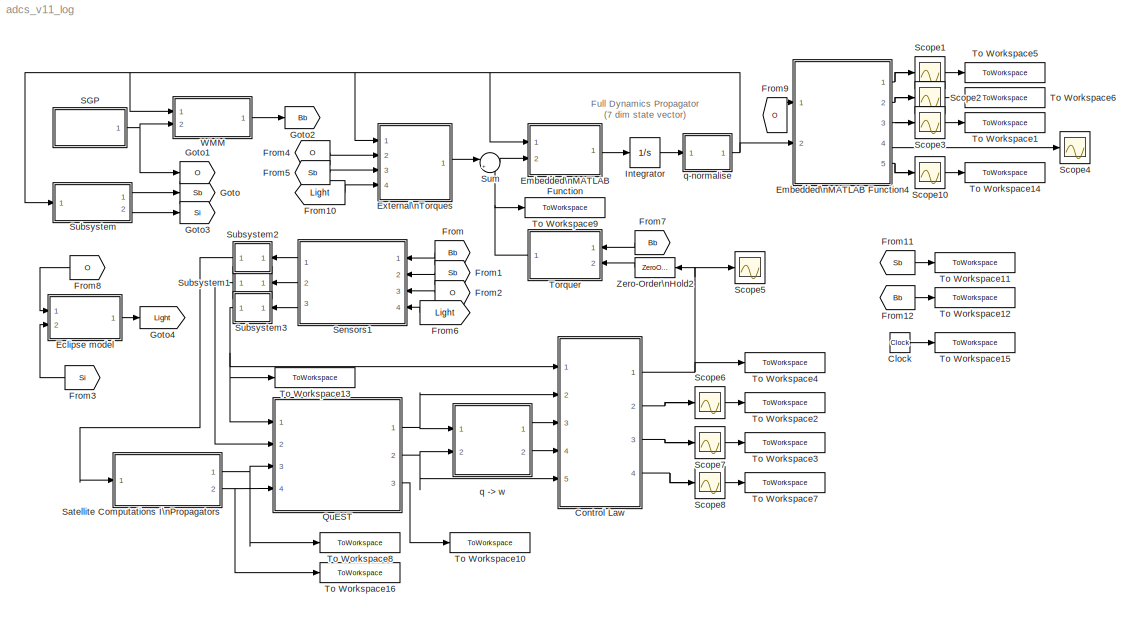
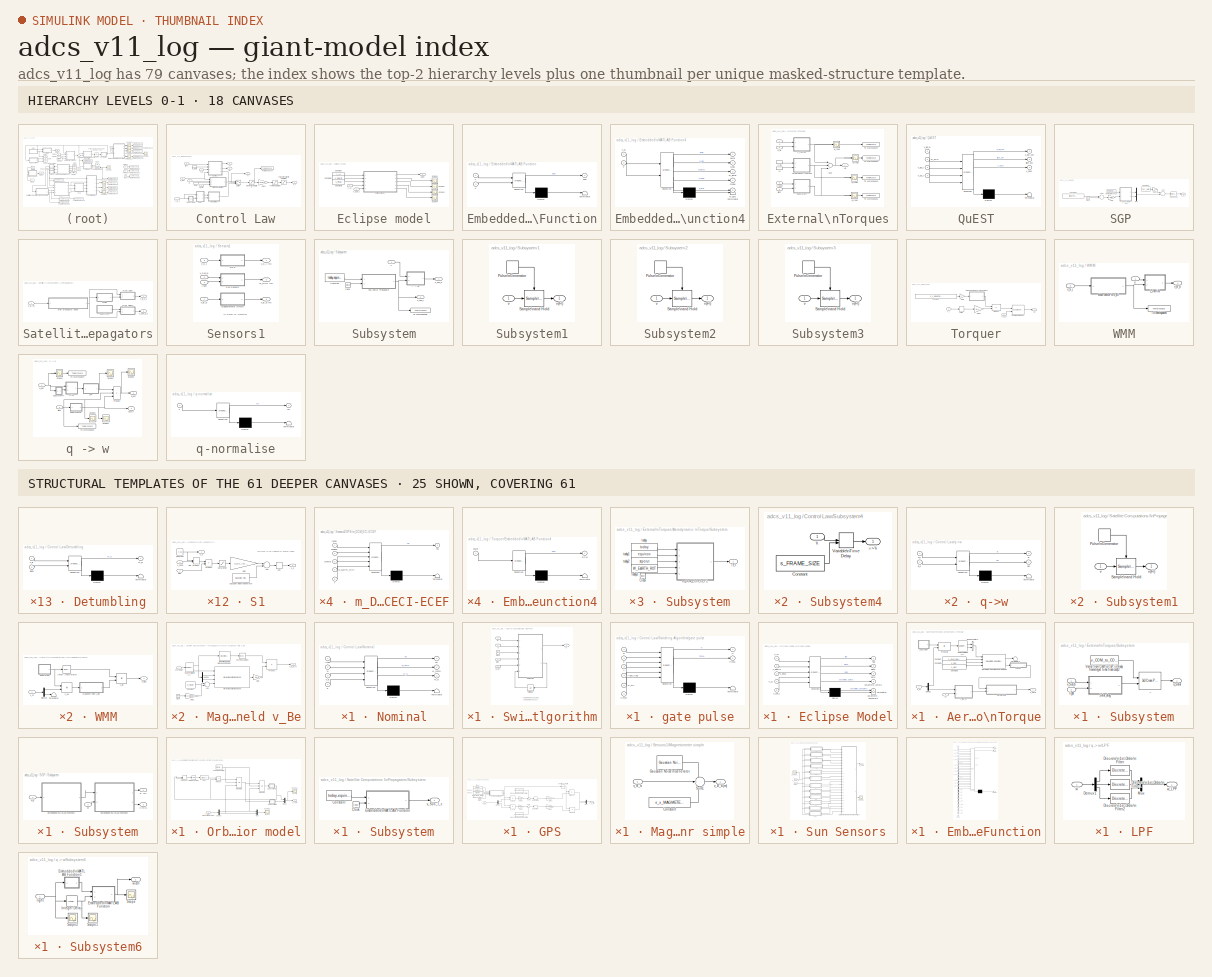
[diagram: thumbnail index - top-2 hierarchy levels (18 canvases) + 25 structural-template representatives of the remaining 61 canvases]
MODEL adcs_v11_log
KIND model
BLOCK [Clock] Clock
  Decimation = 10
  SID = 814
BLOCK [SubSystem] Control Law
  FunctionWithSeparateData = off
  MaskHideContents = off
  MinAlgLoopOccurrences = off
  Opaque = off
  Ports = [5, 4]
  PropExecContextOutsideSubsystem = off
  RTWSystemCode = Auto
  RequestExecContextInheritance = off
  SID = 565
BLOCK [SubSystem] Control Law/Detumbling
  FunctionWithSeparateData = off
  MaskDescription = Embedded MATLAB block
  MaskDisplay = disp('fcn');
  MaskHideContents = off
  MaskIconFrame = on
  MaskIconOpaque = off
  MaskIconRotate = none
  MaskIconUnits = autoscale
  MaskPortRotate = default
  MaskSelfModifiable = on
  MaskType = Stateflow
  MinAlgLoopOccurrences = off
  Opaque = off
  PermitHierarchicalResolution = ExplicitOnly
  Ports = [2, 1]
  PropExecContextOutsideSubsystem = off
  RTWSystemCode = Auto
  RequestExecContextInheritance = off
  SID = 570
BLOCK [Demux] Control Law/Detumbling/ Demux 
  Outputs = 1
  Ports = [1, 1]
  SID = 8
BLOCK [S-Function] Control Law/Detumbling/ SFunction 
  EnableBusSupport = on
  FunctionName = sf_sfun
  Parameters = Kdetumb,s_MAG_B
  PortCounts = [2 2]
  Ports = [2, 2]
  SID = 7
  Tag = Stateflow S-Function adcs_v11_log 23
BLOCK [Terminator] Control Law/Detumbling/ Terminator 
  SID = 10
BLOCK [Inport] Control Law/Detumbling/Bdot
  IconDisplay = Port number
  Port = 2
  SID = 2
BLOCK [Outport] Control Law/Detumbling/m_D
  IconDisplay = Port number
  OutDataType = sfix(16)
  OutScaling = 2^0
  SID = 6
BLOCK [Inport] Control Law/Detumbling/v_B
  IconDisplay = Port number
  SID = 1
BLOCK [Gain] Control Law/Gain1
  Gain = 1/(N*A)
  OutDataType = sfix(16)
  OutDataTypeMode = Inherit via internal rule
  OutDataTypeStr = Inherit: Inherit via internal rule
  OutScaling = 2^0
  ParamDataTypeStr = Inherit: Inherit via internal rule
  ParameterDataType = sfix(16)
  ParameterDataTypeMode = Inherit via internal rule
  ParameterScaling = 2^0
  SID = 571
  SaturateOnIntegerOverflow = off
BLOCK [Saturate] Control Law/Moment\nSaturation
  LowerLimit = -s_m_MAX
  OutDataType = sfix(16)
  OutScaling = 2^0
  SID = 572
  UpperLimit = s_m_MAX
BLOCK [Outport] Control Law/N
  IconDisplay = Port number
  OutDataType = sfix(16)
  OutScaling = 2^0
  Port = 2
  SID = 592
BLOCK [SubSystem] Control Law/Nominal
  FunctionWithSeparateData = off
  MaskDescription = Embedded MATLAB block
  MaskDisplay = disp('fcn');
  MaskHideContents = off
  MaskIconFrame = on
  MaskIconOpaque = off
  MaskIconRotate = none
  MaskIconUnits = autoscale
  MaskPortRotate = default
  MaskSelfModifiable = on
  MaskType = Stateflow
  MinAlgLoopOccurrences = off
  Opaque = off
  PermitHierarchicalResolution = ExplicitOnly
  Ports = [4, 3]
  PropExecContextOutsideSubsystem = off
  RTWSystemCode = Auto
  RequestExecContextInheritance = off
  SID = 573
BLOCK [Demux] Control Law/Nominal/ Demux 
  Outputs = 1
  Ports = [1, 1]
  SID = 9
BLOCK [S-Function] Control Law/Nominal/ SFunction 
  EnableBusSupport = on
  FunctionName = sf_sfun
  Parameters = Kd,Kp,s_MAG_B,s_W_SAT,s_omega_MAX
  PortCounts = [4 4]
  Ports = [4, 4]
  SID = 8
  Tag = Stateflow S-Function adcs_v11_log 13
BLOCK [Terminator] Control Law/Nominal/ Terminator 
  SID = 11
BLOCK [Outport] Control Law/Nominal/eu
  IconDisplay = Port number
  SID = 14
BLOCK [Inport] Control Law/Nominal/light
  IconDisplay = Port number
  SID = 12
BLOCK [Outport] Control Law/Nominal/m_N
  IconDisplay = Port number
  OutDataType = sfix(16)
  OutScaling = 2^0
  Port = 3
  SID = 7
BLOCK [Inport] Control Law/Nominal/q
  IconDisplay = Port number
  Port = 4
  SID = 15
BLOCK [Inport] Control Law/Nominal/v_B
  IconDisplay = Port number
  Port = 3
  SID = 2
BLOCK [Inport] Control Law/Nominal/w
  IconDisplay = Port number
  Port = 2
  SID = 1
BLOCK [Outport] Control Law/Nominal/w_temp
  IconDisplay = Port number
  Port = 2
  SID = 13
BLOCK [Saturate] Control Law/Power\nSaturation
  LowerLimit = -I_MAX
  OutDataType = sfix(16)
  OutScaling = 2^0
  SID = 574
  UpperLimit = I_MAX
BLOCK [SubSystem] Control Law/Subsystem4
  FunctionWithSeparateData = off
  MaskHideContents = off
  MinAlgLoopOccurrences = off
  Opaque = off
  Ports = [1, 1]
  PropExecContextOutsideSubsystem = off
  RTWSystemCode = Auto
  RequestExecContextInheritance = off
  SID = 593
BLOCK [Outport] Control Law/Subsystem4/=>\\
  IconDisplay = Port number
  SID = 597
BLOCK [Constant] Control Law/Subsystem4/Constant
  OutDataType = fixdt(1, 16)
  OutScaling = 2^0
  SID = 595
  Value = s_FRAME_SIZE
BLOCK [VariableTransportDelay] Control Law/Subsystem4/Variable\nTime Delay
  SID = 596
BLOCK [Inport] Control Law/Subsystem4/\\
  IconDisplay = Port number
  SID = 594
BLOCK [Switch] Control Law/Switch
  InputSameDT = off
  OutDataType = sfix(16)
  OutScaling = 2^0
  SID = 575
  SaturateOnIntegerOverflow = off
  Threshold = 0.5
BLOCK [SubSystem] Control Law/Switching Algorithm
  FunctionWithSeparateData = off
  MaskHideContents = off
  MinAlgLoopOccurrences = off
  Opaque = off
  Ports = [4, 1]
  PropExecContextOutsideSubsystem = off
  RTWSystemCode = Auto
  RequestExecContextInheritance = off
  SID = 576
BLOCK [Clock] Control Law/Switching Algorithm/Clock
  Decimation = 10
  SID = 579
BLOCK [Outport] Control Law/Switching Algorithm/N
  IconDisplay = Port number
  OutDataType = sfix(16)
  OutScaling = 2^0
  SID = 582
BLOCK [UnitDelay] Control Law/Switching Algorithm/Unit Delay
  SID = 580
  SampleTime = -1
BLOCK [SubSystem] Control Law/Switching Algorithm/gate pulse
  FunctionWithSeparateData = off
  MaskDescription = Embedded MATLAB block
  MaskDisplay = disp('fcn');
  MaskHideContents = off
  MaskIconFrame = on
  MaskIconOpaque = off
  MaskIconRotate = none
  MaskIconUnits = autoscale
  MaskPortRotate = default
  MaskSelfModifiable = on
  MaskType = Stateflow
  MinAlgLoopOccurrences = off
  Opaque = off
  PermitHierarchicalResolution = ExplicitOnly
  Ports = [6, 2]
  PropExecContextOutsideSubsystem = off
  RTWSystemCode = Auto
  RequestExecContextInheritance = off
  SID = 581
BLOCK [Demux] Control Law/Switching Algorithm/gate pulse/ Demux 
  Outputs = 1
  Ports = [1, 1]
  SID = 11
BLOCK [S-Function] Control Law/Switching Algorithm/gate pulse/ SFunction 
  EnableBusSupport = on
  FunctionName = sf_sfun
  Parameters = check_time,tol_pitch,tol_roll,tol_w,tol_yaw
  PortCounts = [6 3]
  Ports = [6, 3]
  SID = 10
  Tag = Stateflow S-Function adcs_v11_log 24
BLOCK [Terminator] Control Law/Switching Algorithm/gate pulse/ Terminator 
  SID = 13
BLOCK [Outport] Control Law/Switching Algorithm/gate pulse/N
  IconDisplay = Port number
  OutDataType = sfix(16)
  OutScaling = 2^0
  SID = 8
BLOCK [Inport] Control Law/Switching Algorithm/gate pulse/light_flag
  IconDisplay = Port number
  Port = 4
  SID = 14
BLOCK [Inport] Control Law/Switching Algorithm/gate pulse/q
  IconDisplay = Port number
  Port = 2
  SID = 2
BLOCK [Inport] Control Law/Switching Algorithm/gate pulse/t
  IconDisplay = Port number
  Port = 3
  SID = 3
BLOCK [Outport] Control Law/Switching Algorithm/gate pulse/time1
  IconDisplay = Port number
  Port = 2
  SID = 9
BLOCK [Inport] Control Law/Switching Algorithm/gate pulse/time2
  IconDisplay = Port number
  Port = 6
  SID = 4
BLOCK [Inport] Control Law/Switching Algorithm/gate pulse/w
  IconDisplay = Port number
  OutDataType = sfix(16)
  OutScaling = 2^0
  SID = 1
BLOCK [Inport] Control Law/Switching Algorithm/gate pulse/w_ctrl
  IconDisplay = Port number
  Port = 5
  SID = 15
BLOCK [Inport] Control Law/Switching Algorithm/light
  IconDisplay = Port number
  OutDataType = sfix(16)
  OutScaling = 2^0
  Port = 3
  SID = 624
BLOCK [Inport] Control Law/Switching Algorithm/q
  IconDisplay = Port number
  OutDataType = sfix(16)
  OutScaling = 2^0
  SID = 577
BLOCK [Inport] Control Law/Switching Algorithm/w
  IconDisplay = Port number
  OutDataType = sfix(16)
  OutScaling = 2^0
  Port = 2
  SID = 578
BLOCK [Inport] Control Law/Switching Algorithm/w_ctrl
  IconDisplay = Port number
  OutDataType = sfix(16)
  OutScaling = 2^0
  Port = 4
  SID = 766
BLOCK [ToWorkspace] Control Law/To Workspace4
  MaxDataPoints = inf
  Ports = [1]
  SID = 789
  SampleTime = Ts_display
  SaveFormat = Array
  VariableName = moment
BLOCK [Saturate] Control Law/Torquer\nCurrent\nSaturation
  LowerLimit = -I_TORQUER
  OutDataType = sfix(16)
  OutScaling = 2^0
  SID = 583
  UpperLimit = I_TORQUER
BLOCK [Outport] Control Law/eu
  IconDisplay = Port number
  OutDataType = sfix(16)
  OutScaling = 2^0
  Port = 3
  SID = 643
BLOCK [Inport] Control Law/light
  IconDisplay = Port number
  OutDataType = sfix(16)
  OutScaling = 2^0
  Port = 5
  SID = 569
BLOCK [InportShadow] Control Law/light1
  IconDisplay = Port number
  LatchByCopyingInsideSignal = off
  LatchByDelayingOutsideSignal = off
  OutDataType = sfix(16)
  OutScaling = 2^0
  Port = 5
  SID = 625
BLOCK [SubSystem] Control Law/q->w
  FunctionWithSeparateData = off
  MaskDescription = Embedded MATLAB block
  MaskDisplay = disp('fcn');
  MaskHideContents = off
  MaskIconFrame = on
  MaskIconOpaque = off
  MaskIconRotate = none
  MaskIconUnits = autoscale
  MaskPortRotate = default
  MaskSelfModifiable = on
  MaskType = Stateflow
  MinAlgLoopOccurrences = off
  Opaque = off
  PermitHierarchicalResolution = ExplicitOnly
  Ports = [2, 2]
  PropExecContextOutsideSubsystem = off
  RTWSystemCode = Auto
  RequestExecContextInheritance = off
  SID = 586
BLOCK [Demux] Control Law/q->w/ Demux 
  Outputs = 1
  Ports = [1, 1]
  SID = 9
BLOCK [S-Function] Control Law/q->w/ SFunction 
  EnableBusSupport = on
  FunctionName = sf_sfun
  Parameters = s_FRAME_SIZE
  PortCounts = [2 3]
  Ports = [2, 3]
  SID = 8
  Tag = Stateflow S-Function adcs_v11_log 10
BLOCK [Terminator] Control Law/q->w/ Terminator 
  SID = 11
BLOCK [Outport] Control Law/q->w/B
  IconDisplay = Port number
  SID = 12
BLOCK [Inport] Control Law/q->w/B_k
  IconDisplay = Port number
  Port = 2
  SID = 2
BLOCK [Inport] Control Law/q->w/B_l
  IconDisplay = Port number
  SID = 1
BLOCK [Outport] Control Law/q->w/dB
  IconDisplay = Port number
  OutDataType = sfix(16)
  OutScaling = 2^0
  Port = 2
  SID = 7
BLOCK [Inport] Control Law/q_BO
  IconDisplay = Port number
  OutDataType = sfix(16)
  OutScaling = 2^0
  Port = 2
  SID = 567
BLOCK [Inport] Control Law/v_B
  IconDisplay = Port number
  OutDataType = sfix(16)
  OutScaling = 2^0
  SID = 566
BLOCK [InportShadow] Control Law/v_B_1
  IconDisplay = Port number
  LatchByCopyingInsideSignal = off
  LatchByDelayingOutsideSignal = off
  OutDataType = sfix(16)
  OutScaling = 2^0
  Port = 1
  SID = 589
BLOCK [Outport] Control Law/v_i
  IconDisplay = Port number
  OutDataType = sfix(16)
  OutScaling = 2^0
  SID = 591
BLOCK [Inport] Control Law/w
  IconDisplay = Port number
  OutDataType = sfix(16)
  OutScaling = 2^0
  Port = 3
  SID = 568
BLOCK [Outport] Control Law/w1
  IconDisplay = Port number
  OutDataType = sfix(16)
  OutScaling = 2^0
  Port = 4
  SID = 670
BLOCK [InportShadow] Control Law/w_BOB
  IconDisplay = Port number
  LatchByCopyingInsideSignal = off
  LatchByDelayingOutsideSignal = off
  OutDataType = sfix(16)
  OutScaling = 2^0
  Port = 3
  SID = 590
BLOCK [Inport] Control Law/w_ctrl
  IconDisplay = Port number
  OutDataType = sfix(16)
  OutScaling = 2^0
  Port = 4
  SID = 767
BLOCK [SubSystem] Eclipse model
  FunctionWithSeparateData = off
  MaskHideContents = off
  MinAlgLoopOccurrences = off
  Opaque = off
  Ports = [2, 1]
  PropExecContextOutsideSubsystem = off
  RTWSystemCode = Auto
  RequestExecContextInheritance = off
  SID = 1
BLOCK [Constant] Eclipse model/Constant
  OutDataType = sfix(16)
  OutScaling = 2^0
  SID = 4
  Value = s_AU
BLOCK [Constant] Eclipse model/Constant1
  OutDataType = sfix(16)
  OutScaling = 2^0
  SID = 5
  Value = s_Rearth
BLOCK [Constant] Eclipse model/Constant2
  OutDataType = sfix(16)
  OutScaling = 2^0
  SID = 6
  Value = s_Rsun
BLOCK [SubSystem] Eclipse model/Eclipse Model
  FunctionWithSeparateData = off
  MaskDescription = Embedded MATLAB block
  MaskDisplay = disp('fcn');
  MaskHideContents = off
  MaskIconFrame = on
  MaskIconOpaque = off
  MaskIconRotate = none
  MaskIconUnits = autoscale
  MaskPortRotate = default
  MaskSelfModifiable = on
  MaskType = Stateflow
  MinAlgLoopOccurrences = off
  Opaque = off
  PermitHierarchicalResolution = ExplicitOnly
  Ports = [5, 5]
  PropExecContextOutsideSubsystem = off
  RTWSystemCode = Auto
  RequestExecContextInheritance = off
  SID = 7
BLOCK [Demux] Eclipse model/Eclipse Model/ Demux 
  Outputs = 1
  Ports = [1, 1]
  SID = 15
BLOCK [S-Function] Eclipse model/Eclipse Model/ SFunction 
  EnableBusSupport = on
  FunctionName = sf_sfun
  PortCounts = [5 6]
  Ports = [5, 6]
  SID = 14
  Tag = Stateflow S-Function adcs_v11_log 21
BLOCK [Terminator] Eclipse model/Eclipse Model/ Terminator 
  SID = 17
BLOCK [Outport] Eclipse model/Eclipse Model/alpha
  IconDisplay = Port number
  Port = 2
  SID = 10
BLOCK [Outport] Eclipse model/Eclipse Model/beta
  IconDisplay = Port number
  Port = 3
  SID = 11
BLOCK [Outport] Eclipse model/Eclipse Model/flag
  IconDisplay = Port number
  OutDataType = sfix(16)
  OutScaling = 2^0
  SID = 9
BLOCK [Outport] Eclipse model/Eclipse Model/parameter_penumbra
  IconDisplay = Port number
  Port = 5
  SID = 13
BLOCK [Outport] Eclipse model/Eclipse Model/parameter_umbra
  IconDisplay = Port number
  Port = 4
  SID = 12
BLOCK [Inport] Eclipse model/Eclipse Model/s_AU
  IconDisplay = Port number
  OutDataType = sfix(16)
  OutScaling = 2^0
  SID = 1
BLOCK [Inport] Eclipse model/Eclipse Model/s_Rearth
  IconDisplay = Port number
  Port = 2
  SID = 2
BLOCK [Inport] Eclipse model/Eclipse Model/s_Rsun
  IconDisplay = Port number
  Port = 3
  SID = 3
BLOCK [Inport] Eclipse model/Eclipse Model/v_S_i
  IconDisplay = Port number
  Port = 4
  SID = 4
BLOCK [Inport] Eclipse model/Eclipse Model/v_Sun_i
  IconDisplay = Port number
  Port = 5
  SID = 5
BLOCK [Outport] Eclipse model/Light
  IconDisplay = Port number
  OutDataType = sfix(16)
  OutScaling = 2^0
  SID = 12
BLOCK [Scope] Eclipse model/Scope1
  DataFormat = StructureWithTime
  Floating = off
  LimitDataPoints = off
  NumInputPorts = 1
  Ports = [1]
  SID = 762
  SampleInput = on
  SampleTime = 5
  SaveName = ScopeData3
  TimeRange = 80000
  YMax = 1
  YMin = -6.5
  ZoomMode = yonly
BLOCK [Scope] Eclipse model/Scope2
  DataFormat = StructureWithTime
  Floating = off
  LimitDataPoints = off
  NumInputPorts = 1
  Ports = [1]
  SID = 763
  SampleInput = on
  SampleTime = 5
  SaveName = ScopeData4
  TimeRange = 80000
  YMax = 1
  YMin = -6.5
  ZoomMode = yonly
BLOCK [Scope] Eclipse model/Scope3
  DataFormat = StructureWithTime
  Floating = off
  LimitDataPoints = off
  NumInputPorts = 1
  Ports = [1]
  SID = 764
  SampleInput = on
  SampleTime = 5
  SaveName = ScopeData5
  TimeRange = 80000
  YMax = 1
  YMin = -6.5
  ZoomMode = yonly
BLOCK [Scope] Eclipse model/Scope4
  DataFormat = StructureWithTime
  Floating = off
  LimitDataPoints = off
  NumInputPorts = 1
  Ports = [1]
  SID = 765
  SampleInput = on
  SampleTime = 5
  SaveName = ScopeData6
  TimeRange = 80000
  YMax = 1
  YMin = -6.5
  ZoomMode = yonly
BLOCK [Inport] Eclipse model/v_S_i
  IconDisplay = Port number
  OutDataType = sfix(16)
  OutScaling = 2^0
  SID = 2
BLOCK [Inport] Eclipse model/v_Sun_i
  IconDisplay = Port number
  OutDataType = sfix(16)
  OutScaling = 2^0
  Port = 2
  SID = 3
BLOCK [SubSystem] Embedded\nMATLAB Function
  FunctionWithSeparateData = off
  MaskDescription = Embedded MATLAB block
  MaskDisplay = disp('fcn');
  MaskHideContents = off
  MaskIconFrame = on
  MaskIconOpaque = off
  MaskIconRotate = none
  MaskIconUnits = autoscale
  MaskPortRotate = default
  MaskSelfModifiable = on
  MaskType = Stateflow
  MinAlgLoopOccurrences = off
  Opaque = off
  PermitHierarchicalResolution = ExplicitOnly
  Ports = [2, 1]
  PropExecContextOutsideSubsystem = off
  RTWSystemCode = Auto
  RequestExecContextInheritance = off
  SID = 13
BLOCK [Demux] Embedded\nMATLAB Function/ Demux 
  Outputs = 1
  Ports = [1, 1]
  SID = 8
BLOCK [S-Function] Embedded\nMATLAB Function/ SFunction 
  EnableBusSupport = on
  FunctionName = sf_sfun
  Parameters = m_INERTIA
  PortCounts = [2 2]
  Ports = [2, 2]
  SID = 7
  Tag = Stateflow S-Function adcs_v11_log 2
BLOCK [Terminator] Embedded\nMATLAB Function/ Terminator 
  SID = 10
BLOCK [Inport] Embedded\nMATLAB Function/u
  IconDisplay = Port number
  OutDataType = sfix(16)
  OutScaling = 2^0
  Port = 2
  SID = 2
BLOCK [Inport] Embedded\nMATLAB Function/x
  IconDisplay = Port number
  SID = 1
BLOCK [Outport] Embedded\nMATLAB Function/xdot
  IconDisplay = Port number
  OutDataType = sfix(16)
  OutScaling = 2^0
  SID = 6
BLOCK [SubSystem] Embedded\nMATLAB Function4
  FunctionWithSeparateData = off
  MaskDescription = Embedded MATLAB block
  MaskDisplay = disp('qBO');
  MaskHideContents = off
  MaskIconFrame = on
  MaskIconOpaque = off
  MaskIconRotate = none
  MaskIconUnits = autoscale
  MaskPortRotate = default
  MaskSelfModifiable = on
  MaskType = Stateflow
  MinAlgLoopOccurrences = off
  Opaque = off
  PermitHierarchicalResolution = ExplicitOnly
  Ports = [2, 5]
  PropExecContextOutsideSubsystem = off
  RTWSystemCode = Auto
  RequestExecContextInheritance = off
  SID = 599
BLOCK [Demux] Embedded\nMATLAB Function4/ Demux 
  Outputs = 1
  Ports = [1, 1]
  SID = 9
BLOCK [S-Function] Embedded\nMATLAB Function4/ SFunction 
  EnableBusSupport = on
  FunctionName = sf_sfun
  Parameters = s_W_SAT
  PortCounts = [2 6]
  Ports = [2, 6]
  SID = 8
  Tag = Stateflow S-Function adcs_v11_log 29
BLOCK [Terminator] Embedded\nMATLAB Function4/ Terminator 
  SID = 11
BLOCK [Outport] Embedded\nMATLAB Function4/euler
  IconDisplay = Port number
  SID = 6
BLOCK [Outport] Embedded\nMATLAB Function4/modw
  IconDisplay = Port number
  Port = 4
  SID = 13
BLOCK [Outport] Embedded\nMATLAB Function4/q_BO
  IconDisplay = Port number
  OutDataType = sfix(16)
  OutScaling = 2^0
  Port = 2
  SID = 7
BLOCK [Inport] Embedded\nMATLAB Function4/v_Si
  IconDisplay = Port number
  OutDataType = sfix(16)
  OutScaling = 2^0
  SID = 1
BLOCK [Outport] Embedded\nMATLAB Function4/w_BIB
  IconDisplay = Port number
  Port = 5
  SID = 15
BLOCK [Outport] Embedded\nMATLAB Function4/w_BOB
  IconDisplay = Port number
  Port = 3
  SID = 12
BLOCK [Inport] Embedded\nMATLAB Function4/x
  IconDisplay = Port number
  Port = 2
  SID = 2
BLOCK [SubSystem] External\nTorques
  FunctionWithSeparateData = off
  MaskHideContents = off
  MinAlgLoopOccurrences = off
  Opaque = off
  Ports = [4, 1]
  PropExecContextOutsideSubsystem = off
  RTWSystemCode = Auto
  RequestExecContextInheritance = off
  SID = 14
BLOCK [SubSystem] External\nTorques/Aerodynamic \nTorque
  FunctionWithSeparateData = off
  MaskHideContents = off
  MinAlgLoopOccurrences = off
  Opaque = off
  Ports = [2, 1]
  PropExecContextOutsideSubsystem = off
  RTWSystemCode = Auto
  RequestExecContextInheritance = off
  SID = 18
BLOCK [BusCreator] External\nTorques/Aerodynamic \nTorque/Bus\nCreator2
  DisplayOption = bar
  Inputs = 2
  Ports = [2, 1]
  SID = 21
BLOCK [Constant] External\nTorques/Aerodynamic \nTorque/Constant
  OutDataType = fixdt(1, 16)
  OutScaling = 2^0
  SID = 22
  Value = s_YEAR_ONLY
BLOCK [Constant] External\nTorques/Aerodynamic \nTorque/Constant1
  OutDataType = fixdt(1, 16)
  OutScaling = 2^0
  SID = 23
  Value = s_DOY
BLOCK [Constant] External\nTorques/Aerodynamic \nTorque/Constant2
  OutDataType = fixdt(1, 16)
  OutScaling = 2^0
  SID = 24
  Value = s_SEC
BLOCK [Demux] External\nTorques/Aerodynamic \nTorque/Demux
  DisplayOption = bar
  Outputs = 2
  Ports = [1, 2]
  SID = 25
BLOCK [Reference] External\nTorques/Aerodynamic \nTorque/ECEF Position to LLA  REF=aerolibtransform2/ECEF Position to LLA
  F = 1/298.257223563
  FunctionWithSeparateData = off
  Ports = [1, 2]
  R = 6378137
  RTWMemSecDataConstants = Inherit from model
  RTWMemSecDataInternal = Inherit from model
  RTWMemSecDataParameters = Inherit from model
  RTWMemSecFuncExecute = Inherit from model
  RTWMemSecFuncInitTerm = Inherit from model
  SID = 26
  ShowPortLabels = FromPortIcon
  SourceBlock = aerolibtransform2/ECEF Position to LLA
  SourceType = ECEF to LLA
  SystemSampleTime = -1
  ptype = Earth (WGS84)
  units = Metric (MKS)
BLOCK [Reference] External\nTorques/Aerodynamic \nTorque/NRLMSISE-00\nAtmosphere Model2  REF=aerolibatmos2/NRLMSISE-00\nAtmosphere Model
  FunctionWithSeparateData = off
  Ports = [4, 2]
  RTWMemSecDataConstants = Inherit from model
  RTWMemSecDataInternal = Inherit from model
  RTWMemSecDataParameters = Inherit from model
  RTWMemSecFuncExecute = Inherit from model
  RTWMemSecFuncInitTerm = Inherit from model
  SID = 27
  ShowPortLabels = FromPortIcon
  SourceBlock = aerolibatmos2/NRLMSISE-00\nAtmosphere Model
  SourceType = NRLMSISE-00 Model
  SystemSampleTime = -1
  action = Warning
  flags = ones(1,23)
  flags_input = Internal
  flux_ap_input = off
  lst_input = off
  oxygen_in = off
  units = Metric (MKS)
BLOCK [Product] External\nTorques/Aerodynamic \nTorque/Product2
  InputSameDT = off
  Multiplication = Matrix(*)
  OutDataType = sfix(16)
  OutDataTypeMode = Inherit via internal rule
  OutDataTypeStr = Inherit: Inherit via internal rule
  OutScaling = 2^0
  Ports = [2, 1]
  SID = 28
  SaturateOnIntegerOverflow = off
BLOCK [SubSystem] External\nTorques/Aerodynamic \nTorque/Subsystem
  FunctionWithSeparateData = off
  MaskHideContents = off
  MinAlgLoopOccurrences = off
  Opaque = off
  Ports = [0, 1]
  PropExecContextOutsideSubsystem = off
  RTWSystemCode = Auto
  RequestExecContextInheritance = off
  SID = 29
BLOCK [Clock] External\nTorques/Aerodynamic \nTorque/Subsystem/Clock
  Decimation = 10
  SID = 30
BLOCK [Outport] External\nTorques/Aerodynamic \nTorque/Subsystem/TEI
  IconDisplay = Port number
  SID = 36
BLOCK [SubSystem] External\nTorques/Aerodynamic \nTorque/Subsystem/m_DCM_ECI-ECEF2
  FunctionWithSeparateData = off
  MaskDescription = Embedded MATLAB block
  MaskDisplay = disp('fcn');
  MaskHideContents = off
  MaskIconFrame = on
  MaskIconOpaque = off
  MaskIconRotate = none
  MaskIconUnits = autoscale
  MaskPortRotate = default
  MaskSelfModifiable = on
  MaskType = Stateflow
  MinAlgLoopOccurrences = off
  Opaque = off
  PermitHierarchicalResolution = ExplicitOnly
  Ports = [5, 1]
  PropExecContextOutsideSubsystem = off
  RTWSystemCode = Auto
  RequestExecContextInheritance = off
  SID = 31
BLOCK [Demux] External\nTorques/Aerodynamic \nTorque/Subsystem/m_DCM_ECI-ECEF2/ Demux 
  Outputs = 1
  Ports = [1, 1]
  SID = 11
BLOCK [S-Function] External\nTorques/Aerodynamic \nTorque/Subsystem/m_DCM_ECI-ECEF2/ SFunction 
  EnableBusSupport = on
  FunctionName = sf_sfun
  PortCounts = [5 2]
  Ports = [5, 2]
  SID = 10
  Tag = Stateflow S-Function adcs_v11_log 17
BLOCK [Terminator] External\nTorques/Aerodynamic \nTorque/Subsystem/m_DCM_ECI-ECEF2/ Terminator 
  SID = 13
BLOCK [Outport] External\nTorques/Aerodynamic \nTorque/Subsystem/m_DCM_ECI-ECEF2/TEI
  IconDisplay = Port number
  OutDataType = sfix(16)
  OutScaling = 2^0
  SID = 9
BLOCK [Inport] External\nTorques/Aerodynamic \nTorque/Subsystem/m_DCM_ECI-ECEF2/W_EARTH_ROT
  IconDisplay = Port number
  Port = 4
  SID = 4
BLOCK [Inport] External\nTorques/Aerodynamic \nTorque/Subsystem/m_DCM_ECI-ECEF2/equinox
  IconDisplay = Port number
  Port = 2
  SID = 2
BLOCK [Inport] External\nTorques/Aerodynamic \nTorque/Subsystem/m_DCM_ECI-ECEF2/stperut
  IconDisplay = Port number
  Port = 3
  SID = 3
BLOCK [Inport] External\nTorques/Aerodynamic \nTorque/Subsystem/m_DCM_ECI-ECEF2/t
  IconDisplay = Port number
  Port = 5
  SID = 5
BLOCK [Inport] External\nTorques/Aerodynamic \nTorque/Subsystem/m_DCM_ECI-ECEF2/today
  IconDisplay = Port number
  SID = 1
BLOCK [Constant] External\nTorques/Aerodynamic \nTorque/Subsystem/today
  OutDataType = sfix(16)
  OutScaling = 2^0
  SID = 32
  Value = today
BLOCK [Constant] External\nTorques/Aerodynamic \nTorque/Subsystem/today1
  OutDataType = sfix(16)
  OutScaling = 2^0
  SID = 33
  Value = equinox
BLOCK [Constant] External\nTorques/Aerodynamic \nTorque/Subsystem/today2
  OutDataType = sfix(16)
  OutScaling = 2^0
  SID = 34
  Value = stperut
BLOCK [Constant] External\nTorques/Aerodynamic \nTorque/Subsystem/today3
  OutDataType = sfix(16)
  OutScaling = 2^0
  SID = 35
  Value = W_EARTH_ROT
BLOCK [Terminator] External\nTorques/Aerodynamic \nTorque/Terminator2
  SID = 37
BLOCK [SubSystem] External\nTorques/Aerodynamic \nTorque/aero torque
  FunctionWithSeparateData = off
  MaskDescription = Embedded MATLAB block
  MaskDisplay = disp('fcn');
  MaskHideContents = off
  MaskIconFrame = on
  MaskIconOpaque = off
  MaskIconRotate = none
  MaskIconUnits = autoscale
  MaskPortRotate = default
  MaskSelfModifiable = on
  MaskType = Stateflow
  MinAlgLoopOccurrences = off
  Opaque = off
  PermitHierarchicalResolution = ExplicitOnly
  Ports = [2, 1]
  PropExecContextOutsideSubsystem = off
  RTWSystemCode = Auto
  RequestExecContextInheritance = off
  SID = 38
BLOCK [Demux] External\nTorques/Aerodynamic \nTorque/aero torque/ Demux 
  Outputs = 1
  Ports = [1, 1]
  SID = 7
BLOCK [S-Function] External\nTorques/Aerodynamic \nTorque/aero torque/ SFunction 
  EnableBusSupport = on
  FunctionName = sf_sfun
  Parameters = Cd,side,v_COM_to_COP_b
  PortCounts = [2 2]
  Ports = [2, 2]
  SID = 6
  Tag = Stateflow S-Function adcs_v11_log 16
BLOCK [Terminator] External\nTorques/Aerodynamic \nTorque/aero torque/ Terminator 
  SID = 9
BLOCK [Inport] External\nTorques/Aerodynamic \nTorque/aero torque/rho
  IconDisplay = Port number
  SID = 12
BLOCK [Outport] External\nTorques/Aerodynamic \nTorque/aero torque/u_aero
  IconDisplay = Port number
  OutDataType = sfix(16)
  OutScaling = 2^0
  SID = 5
BLOCK [Inport] External\nTorques/Aerodynamic \nTorque/aero torque/v_B
  IconDisplay = Port number
  OutDataType = sfix(16)
  OutScaling = 2^0
  Port = 2
  SID = 1
BLOCK [SubSystem] External\nTorques/Aerodynamic \nTorque/rho(6)
  FunctionWithSeparateData = off
  MaskDescription = Embedded MATLAB block
  MaskDisplay = disp('fcn');
  MaskHideContents = off
  MaskIconFrame = on
  MaskIconOpaque = off
  MaskIconRotate = none
  MaskIconUnits = autoscale
  MaskPortRotate = default
  MaskSelfModifiable = on
  MaskType = Stateflow
  MinAlgLoopOccurrences = off
  Opaque = off
  PermitHierarchicalResolution = ExplicitOnly
  Ports = [1, 1]
  PropExecContextOutsideSubsystem = off
  RTWSystemCode = Auto
  RequestExecContextInheritance = off
  SID = 39
BLOCK [Demux] External\nTorques/Aerodynamic \nTorque/rho(6)/ Demux 
  Outputs = 1
  Ports = [1, 1]
  SID = 7
BLOCK [S-Function] External\nTorques/Aerodynamic \nTorque/rho(6)/ SFunction 
  EnableBusSupport = on
  FunctionName = sf_sfun
  PortCounts = [1 2]
  Ports = [1, 2]
  SID = 6
  Tag = Stateflow S-Function adcs_v11_log 19
BLOCK [Terminator] External\nTorques/Aerodynamic \nTorque/rho(6)/ Terminator 
  SID = 9
BLOCK [Outport] External\nTorques/Aerodynamic \nTorque/rho(6)/rho
  IconDisplay = Port number
  OutDataType = sfix(16)
  OutScaling = 2^0
  SID = 5
BLOCK [Inport] External\nTorques/Aerodynamic \nTorque/rho(6)/v_rho
  IconDisplay = Port number
  SID = 1
BLOCK [Outport] External\nTorques/Aerodynamic \nTorque/u_aero
  IconDisplay = Port number
  OutDataType = sfix(16)
  OutScaling = 2^0
  SID = 41
BLOCK [SubSystem] External\nTorques/Aerodynamic \nTorque/v_I to v_B
  FunctionWithSeparateData = off
  MaskDescription = Embedded MATLAB block
  MaskDisplay = disp('fcn');
  MaskHideContents = off
  MaskIconFrame = on
  MaskIconOpaque = off
  MaskIconRotate = none
  MaskIconUnits = autoscale
  MaskPortRotate = default
  MaskSelfModifiable = on
  MaskType = Stateflow
  MinAlgLoopOccurrences = off
  Opaque = off
  PermitHierarchicalResolution = ExplicitOnly
  Ports = [2, 1]
  PropExecContextOutsideSubsystem = off
  RTWSystemCode = Auto
  RequestExecContextInheritance = off
  SID = 40
BLOCK [Demux] External\nTorques/Aerodynamic \nTorque/v_I to v_B/ Demux 
  Outputs = 1
  Ports = [1, 1]
  SID = 8
BLOCK [S-Function] External\nTorques/Aerodynamic \nTorque/v_I to v_B/ SFunction 
  EnableBusSupport = on
  FunctionName = sf_sfun
  PortCounts = [2 2]
  Ports = [2, 2]
  SID = 7
  Tag = Stateflow S-Function adcs_v11_log 20
BLOCK [Terminator] External\nTorques/Aerodynamic \nTorque/v_I to v_B/ Terminator 
  SID = 10
BLOCK [Outport] External\nTorques/Aerodynamic \nTorque/v_I to v_B/v_B
  IconDisplay = Port number
  OutDataType = sfix(16)
  OutScaling = 2^0
  SID = 6
BLOCK [Inport] External\nTorques/Aerodynamic \nTorque/v_I to v_B/v_I
  IconDisplay = Port number
  SID = 1
BLOCK [Inport] External\nTorques/Aerodynamic \nTorque/v_I to v_B/x
  IconDisplay = Port number
  Port = 2
  SID = 2
BLOCK [Inport] External\nTorques/Aerodynamic \nTorque/v_Si
  IconDisplay = Port number
  SID = 19
BLOCK [Inport] External\nTorques/Aerodynamic \nTorque/x
  IconDisplay = Port number
  Port = 2
  SID = 20
BLOCK [SubSystem] External\nTorques/L_Inertial
  FunctionWithSeparateData = off
  MaskDescription = Embedded MATLAB block
  MaskDisplay = disp('fcn');
  MaskHideContents = off
  MaskIconFrame = on
  MaskIconOpaque = off
  MaskIconRotate = none
  MaskIconUnits = autoscale
  MaskPortRotate = default
  MaskSelfModifiable = on
  MaskType = Stateflow
  MinAlgLoopOccurrences = off
  Opaque = off
  PermitHierarchicalResolution = ExplicitOnly
  Ports = [2, 1]
  PropExecContextOutsideSubsystem = off
  RTWSystemCode = Auto
  RequestExecContextInheritance = off
  SID = 42
BLOCK [Demux] External\nTorques/L_Inertial/ Demux 
  Outputs = 1
  Ports = [1, 1]
  SID = 8
BLOCK [S-Function] External\nTorques/L_Inertial/ SFunction 
  EnableBusSupport = on
  FunctionName = sf_sfun
  Parameters = m_INERTIA,mu
  PortCounts = [2 2]
  Ports = [2, 2]
  SID = 7
  Tag = Stateflow S-Function adcs_v11_log 9
BLOCK [Terminator] External\nTorques/L_Inertial/ Terminator 
  SID = 10
BLOCK [Outport] External\nTorques/L_Inertial/tau
  IconDisplay = Port number
  OutDataType = sfix(16)
  OutScaling = 2^0
  SID = 6
BLOCK [Inport] External\nTorques/L_Inertial/v_Si
  IconDisplay = Port number
  Port = 2
  SID = 2
BLOCK [Inport] External\nTorques/L_Inertial/x
  IconDisplay = Port number
  SID = 1
BLOCK [SubSystem] External\nTorques/Subsystem
  FunctionWithSeparateData = off
  MaskHideContents = off
  MinAlgLoopOccurrences = off
  Opaque = off
  Ports = [2, 1]
  PropExecContextOutsideSubsystem = off
  RTWSystemCode = Auto
  RequestExecContextInheritance = off
  SID = 736
BLOCK [SubSystem] External\nTorques/Subsystem/Solar_drag
  FunctionWithSeparateData = off
  MaskDescription = Embedded MATLAB block
  MaskDisplay = disp('fcn');
  MaskHideContents = off
  MaskIconFrame = on
  MaskIconOpaque = off
  MaskIconRotate = none
  MaskIconUnits = autoscale
  MaskPortRotate = default
  MaskSelfModifiable = on
  MaskType = Stateflow
  MinAlgLoopOccurrences = off
  Opaque = off
  PermitHierarchicalResolution = ExplicitOnly
  Ports = [2, 1]
  PropExecContextOutsideSubsystem = off
  RTWSystemCode = Auto
  RequestExecContextInheritance = off
  SID = 728
BLOCK [Demux] External\nTorques/Subsystem/Solar_drag/ Demux 
  Outputs = 1
  Ports = [1, 1]
  SID = 10
BLOCK [S-Function] External\nTorques/Subsystem/Solar_drag/ SFunction 
  EnableBusSupport = on
  FunctionName = sf_sfun
  Parameters = Ca_Solar_Drag,P_momentum_flux_from_the_sun,side
  PortCounts = [2 2]
  Ports = [2, 2]
  SID = 9
  Tag = Stateflow S-Function adcs_v11_log 8
BLOCK [Terminator] External\nTorques/Subsystem/Solar_drag/ Terminator 
  SID = 12
BLOCK [Inport] External\nTorques/Subsystem/Solar_drag/light
  IconDisplay = Port number
  Port = 2
  SID = 13
BLOCK [Outport] External\nTorques/Subsystem/Solar_drag/solar_drag
  IconDisplay = Port number
  OutDataType = sfix(16)
  OutScaling = 2^0
  SID = 8
BLOCK [Inport] External\nTorques/Subsystem/Solar_drag/v_Sun_b
  IconDisplay = Port number
  OutDataType = sfix(16)
  OutScaling = 2^0
  SID = 1
BLOCK [Constant] External\nTorques/Subsystem/Vector from CoM to CoP_in Body frame\n(yet to be finalized)2
  OutDataType = sfix(16)
  OutScaling = 2^0
  SID = 729
  Value = v_COM_to_COP_b
  VectorParams1D = off
BLOCK [Reference] External\nTorques/Subsystem/_  REF=aerolibutil/3x3 Cross Product
  FunctionWithSeparateData = off
  Ports = [2, 1]
  RTWMemSecDataConstants = Inherit from model
  RTWMemSecDataInternal = Inherit from model
  RTWMemSecDataParameters = Inherit from model
  RTWMemSecFuncExecute = Inherit from model
  RTWMemSecFuncInitTerm = Inherit from model
  SID = 730
  ShowPortLabels = FromPortIcon
  SourceBlock = aerolibutil/3x3 Cross Product
  SourceType = CrossProduct
  SystemSampleTime = -1
BLOCK [Inport] External\nTorques/Subsystem/light
  IconDisplay = Port number
  OutDataType = sfix(16)
  OutScaling = 2^0
  Port = 2
  SID = 739
BLOCK [Outport] External\nTorques/Subsystem/u_Solar
  IconDisplay = Port number
  OutDataType = sfix(16)
  OutScaling = 2^0
  SID = 738
BLOCK [Inport] External\nTorques/Subsystem/v_Sun_b
  IconDisplay = Port number
  OutDataType = sfix(16)
  OutScaling = 2^0
  SID = 737
BLOCK [Sum] External\nTorques/Sum
  InputSameDT = off
  Inputs = +++
  OutDataType = fixdt(1, 16)
  OutDataTypeMode = Inherit via internal rule
  OutDataTypeStr = Inherit: Inherit via internal rule
  OutScaling = 2^0
  Ports = [3, 1]
  SID = 43
  SaturateOnIntegerOverflow = off
BLOCK [ToWorkspace] External\nTorques/To Workspace1
  MaxDataPoints = inf
  Ports = [1]
  SID = 798
  SampleTime = Ts_display
  SaveFormat = Array
  VariableName = u_solar
BLOCK [ToWorkspace] External\nTorques/To Workspace2
  MaxDataPoints = inf
  Ports = [1]
  SID = 799
  SampleTime = Ts_display
  SaveFormat = Array
  VariableName = u_aero
BLOCK [ToWorkspace] External\nTorques/To Workspace3
  MaxDataPoints = inf
  Ports = [1]
  SID = 800
  SampleTime = Ts_display
  SaveFormat = Array
  VariableName = u_total
BLOCK [ToWorkspace] External\nTorques/To Workspace7
  MaxDataPoints = inf
  Ports = [1]
  SID = 797
  SampleTime = Ts_display
  SaveFormat = Array
  VariableName = u_gg
BLOCK [Outport] External\nTorques/Ud
  IconDisplay = Port number
  OutDataType = sfix(16)
  OutScaling = 2^0
  SID = 50
BLOCK [Inport] External\nTorques/light
  IconDisplay = Port number
  OutDataType = sfix(16)
  OutScaling = 2^0
  Port = 4
  SID = 744
BLOCK [Inport] External\nTorques/v_Si
  IconDisplay = Port number
  OutDataType = sfix(16)
  OutScaling = 2^0
  Port = 2
  SID = 16
BLOCK [InportShadow] External\nTorques/v_Si1
  IconDisplay = Port number
  LatchByCopyingInsideSignal = off
  LatchByDelayingOutsideSignal = off
  OutDataType = sfix(16)
  OutScaling = 2^0
  Port = 2
  SID = 45
BLOCK [Inport] External\nTorques/v_Sunb
  IconDisplay = Port number
  OutDataType = sfix(16)
  OutScaling = 2^0
  Port = 3
  SID = 17
BLOCK [Scope] External\nTorques/w_real1
  DataFormat = StructureWithTime
  Floating = off
  LimitDataPoints = off
  NumInputPorts = 1
  Ports = [1]
  SID = 47
  SampleInput = on
  SampleTime = 5
  SaveName = ScopeData18
  YMax = 1.1e-008
  YMin = -3e-009
  ZoomMode = xonly
BLOCK [Scope] External\nTorques/w_real2
  DataFormat = StructureWithTime
  Floating = off
  LimitDataPoints = off
  NumInputPorts = 1
  Ports = [1]
  SID = 741
  SampleInput = on
  SampleTime = 5
  SaveName = ScopeData17
  YMax = 1e-008
  YMin = -7e-009
  ZoomMode = xonly
BLOCK [Scope] External\nTorques/w_real3
  DataFormat = StructureWithTime
  Floating = off
  LimitDataPoints = off
  NumInputPorts = 1
  Ports = [1]
  SID = 742
  SampleInput = on
  SampleTime = 5
  SaveName = ScopeData19
  YMax = 1.4e-009
  YMin = -8e-010
  ZoomMode = xonly
BLOCK [Scope] External\nTorques/w_real4
  DataFormat = StructureWithTime
  Floating = off
  LimitDataPoints = off
  NumInputPorts = 1
  Ports = [1]
  SID = 743
  SampleInput = on
  SampleTime = 5
  SaveName = ScopeData22
  YMax = 1e-008
  YMin = -6e-009
  ZoomMode = xonly
BLOCK [Inport] External\nTorques/x
  IconDisplay = Port number
  OutDataType = sfix(16)
  OutScaling = 2^0
  SID = 15
BLOCK [InportShadow] External\nTorques/x1
  IconDisplay = Port number
  LatchByCopyingInsideSignal = off
  LatchByDelayingOutsideSignal = off
  OutDataType = sfix(16)
  OutScaling = 2^0
  Port = 1
  SID = 49
BLOCK [From] From
  GotoTag = Bb
  SID = 51
BLOCK [From] From1
  GotoTag = Sb
  SID = 52
BLOCK [From] From10
  GotoTag = Light
  SID = 745
BLOCK [From] From11
  GotoTag = Sb
  SID = 804
BLOCK [From] From12
  GotoTag = Bb
  SID = 805
BLOCK [From] From2
  GotoTag = O
  SID = 53
BLOCK [From] From3
  GotoTag = Si
  SID = 54
BLOCK [From] From4
  GotoTag = O
  SID = 55
BLOCK [From] From5
  GotoTag = Sb
  SID = 56
BLOCK [From] From6
  GotoTag = Light
  SID = 57
BLOCK [From] From7
  GotoTag = Bb
  SID = 58
BLOCK [From] From8
  GotoTag = O
  SID = 59
BLOCK [From] From9
  GotoTag = O
  SID = 600
BLOCK [Goto] Goto
  GotoTag = Sb
  SID = 60
  TagVisibility = local
BLOCK [Goto] Goto1
  GotoTag = O
  SID = 61
  TagVisibility = local
BLOCK [Goto] Goto2
  GotoTag = Bb
  SID = 62
  TagVisibility = local
BLOCK [Goto] Goto3
  GotoTag = Si
  SID = 63
  TagVisibility = local
BLOCK [Goto] Goto4
  GotoTag = Light
  SID = 645
  TagVisibility = local
BLOCK [Integrator] Integrator
  InitialCondition = [q_BI0; wx0; wy0; wz0]
  Ports = [1, 1]
  SID = 65
BLOCK [SubSystem] QuEST
  FunctionWithSeparateData = off
  MaskDescription = Embedded MATLAB block
  MaskDisplay = disp('QuEST');
  MaskHideContents = off
  MaskIconFrame = on
  MaskIconOpaque = off
  MaskIconRotate = none
  MaskIconUnits = autoscale
  MaskPortRotate = default
  MaskSelfModifiable = on
  MaskType = Stateflow
  MinAlgLoopOccurrences = off
  Opaque = off
  PermitHierarchicalResolution = ExplicitOnly
  Ports = [4, 3]
  PropExecContextOutsideSubsystem = off
  RTWSystemCode = Auto
  RequestExecContextInheritance = off
  SID = 360
BLOCK [Demux] QuEST/ Demux 
  Outputs = 1
  Ports = [1, 1]
  SID = 7
BLOCK [S-Function] QuEST/ SFunction 
  EnableBusSupport = on
  FunctionName = sf_sfun
  Parameters = Snum,s_MAGMETER_WEIGHT,s_SS_ADC_gain,s_SS_MAX_ANGLE
  PortCounts = [4 4]
  Ports = [4, 4]
  SID = 6
  Tag = Stateflow S-Function adcs_v11_log 11
BLOCK [Terminator] QuEST/ Terminator 
  SID = 9
BLOCK [Outport] QuEST/light_est
  IconDisplay = Port number
  Port = 2
  SID = 17
BLOCK [Inport] QuEST/m_SUN
  IconDisplay = Port number
  Port = 2
  SID = 10
BLOCK [Outport] QuEST/q_BO_est
  IconDisplay = Port number
  OutDataType = sfix(16)
  OutScaling = 2^0
  SID = 5
BLOCK [Inport] QuEST/v_Bb_m
  IconDisplay = Port number
  OutDataType = sfix(16)
  OutScaling = 2^0
  SID = 1
BLOCK [Inport] QuEST/v_Bo_c
  IconDisplay = Port number
  Port = 3
  SID = 11
BLOCK [Inport] QuEST/v_So_c
  IconDisplay = Port number
  Port = 4
  SID = 12
BLOCK [Outport] QuEST/v_Sun1
  IconDisplay = Port number
  Port = 3
  SID = 20
BLOCK [SubSystem] SGP 
  FunctionWithSeparateData = off
  MaskHideContents = off
  MinAlgLoopOccurrences = off
  Opaque = off
  Ports = [0, 1]
  PropExecContextOutsideSubsystem = off
  RTWSystemCode = Auto
  RequestExecContextInheritance = off
  SID = 66
BLOCK [Sum] SGP /Add
  InputSameDT = off
  OutDataType = sfix(16)
  OutDataTypeMode = Inherit via internal rule
  OutDataTypeStr = Inherit: Inherit via internal rule
  OutScaling = 2^-10
  Ports = [2, 1]
  SID = 67
  SaturateOnIntegerOverflow = off
BLOCK [Sum] SGP /Add1
  InputSameDT = off
  OutDataType = sfix(16)
  OutDataTypeMode = Inherit via internal rule
  OutDataTypeStr = Inherit: Inherit via internal rule
  OutScaling = 2^-10
  Ports = [2, 1]
  SID = 68
  SaturateOnIntegerOverflow = off
BLOCK [Clock] SGP /Clock
  Decimation = 10
  SID = 69
BLOCK [Constant] SGP /Constant
  OutDataType = sfix(16)
  OutScaling = 2^0
  SID = 70
  Value = err_SGP
  VectorParams1D = off
BLOCK [Constant] SGP /Constant1
  OutDataType = sfix(16)
  OutScaling = 2^0
  SID = 71
  Value = (today - TLE_epoch) * 86400
  VectorParams1D = off
BLOCK [FromWorkspace] SGP /From\nWorkspace
  SID = 72
  SampleTime = 0
  VariableName = TLE
  ZeroCross = on
BLOCK [Gain] SGP /Gain
  Gain = 1/60
  OutDataType = sfix(16)
  OutDataTypeMode = Inherit via internal rule
  OutDataTypeStr = Inherit: Inherit via internal rule
  OutScaling = 2^0
  ParamDataTypeStr = Inherit: Inherit via internal rule
  ParameterDataType = sfix(16)
  ParameterDataTypeMode = Inherit via internal rule
  ParameterScaling = 2^0
  SID = 73
  SaturateOnIntegerOverflow = off
BLOCK [Gain] SGP /Gain1
  Gain = 0
  OutDataType = sfix(16)
  OutDataTypeMode = Inherit via internal rule
  OutDataTypeStr = Inherit: Inherit via internal rule
  OutScaling = 2^0
  ParamDataTypeStr = Inherit: Inherit via internal rule
  ParameterDataType = sfix(16)
  ParameterDataTypeMode = Inherit via internal rule
  ParameterScaling = 2^0
  SID = 74
  SaturateOnIntegerOverflow = off
BLOCK [Mux] SGP /Mux
  DisplayOption = bar
  Inputs = 2
  Ports = [2, 1]
  SID = 75
BLOCK [SubSystem] SGP /Subsystem
  FunctionWithSeparateData = off
  MaskHideContents = off
  MinAlgLoopOccurrences = off
  Opaque = off
  Ports = [2, 2]
  PropExecContextOutsideSubsystem = off
  RTWSystemCode = Auto
  RequestExecContextInheritance = off
  SID = 76
BLOCK [SubSystem] SGP /Subsystem/Embedded\nMATLAB Function1
  FunctionWithSeparateData = off
  MaskDescription = Embedded MATLAB block
  MaskDisplay = disp('convertTLE');
  MaskHideContents = off
  MaskIconFrame = on
  MaskIconOpaque = off
  MaskIconRotate = none
  MaskIconUnits = autoscale
  MaskPortRotate = default
  MaskSelfModifiable = on
  MaskType = Stateflow
  MinAlgLoopOccurrences = off
  Opaque = off
  PermitHierarchicalResolution = ExplicitOnly
  Ports = [1, 1]
  PropExecContextOutsideSubsystem = off
  RTWSystemCode = Auto
  RequestExecContextInheritance = off
  SID = 79
BLOCK [Demux] SGP /Subsystem/Embedded\nMATLAB Function1/ Demux 
  Outputs = 1
  Ports = [1, 1]
  SID = 7
BLOCK [S-Function] SGP /Subsystem/Embedded\nMATLAB Function1/ SFunction 
  EnableBusSupport = on
  FunctionName = sf_sfun
  PortCounts = [1 2]
  Ports = [1, 2]
  SID = 6
  Tag = Stateflow S-Function adcs_v11_log 53
BLOCK [Terminator] SGP /Subsystem/Embedded\nMATLAB Function1/ Terminator 
  SID = 9
BLOCK [Inport] SGP /Subsystem/Embedded\nMATLAB Function1/TLE
  IconDisplay = Port number
  SID = 1
BLOCK [Outport] SGP /Subsystem/Embedded\nMATLAB Function1/modTLE
  IconDisplay = Port number
  SID = 5
BLOCK [SubSystem] SGP /Subsystem/Embedded\nMATLAB Function2
  FunctionWithSeparateData = off
  MaskDescription = Embedded MATLAB block
  MaskDisplay = disp('sgp');
  MaskHideContents = off
  MaskIconFrame = on
  MaskIconOpaque = off
  MaskIconRotate = none
  MaskIconUnits = autoscale
  MaskPortRotate = default
  MaskSelfModifiable = on
  MaskType = Stateflow
  MinAlgLoopOccurrences = off
  Opaque = off
  PermitHierarchicalResolution = ExplicitOnly
  Ports = [2, 2]
  PropExecContextOutsideSubsystem = off
  RTWSystemCode = Auto
  RequestExecContextInheritance = off
  SID = 80
BLOCK [Demux] SGP /Subsystem/Embedded\nMATLAB Function2/ Demux 
  Outputs = 1
  Ports = [1, 1]
  SID = 9
BLOCK [S-Function] SGP /Subsystem/Embedded\nMATLAB Function2/ SFunction 
  EnableBusSupport = on
  FunctionName = sf_sfun
  PortCounts = [2 3]
  Ports = [2, 3]
  SID = 8
  Tag = Stateflow S-Function adcs_v11_log 54
BLOCK [Terminator] SGP /Subsystem/Embedded\nMATLAB Function2/ Terminator 
  SID = 11
BLOCK [Outport] SGP /Subsystem/Embedded\nMATLAB Function2/R
  IconDisplay = Port number
  SID = 6
BLOCK [Outport] SGP /Subsystem/Embedded\nMATLAB Function2/dR
  IconDisplay = Port number
  Port = 2
  SID = 7
BLOCK [Inport] SGP /Subsystem/Embedded\nMATLAB Function2/dT
  IconDisplay = Port number
  Port = 2
  SID = 2
BLOCK [Inport] SGP /Subsystem/Embedded\nMATLAB Function2/modTLE
  IconDisplay = Port number
  SID = 1
BLOCK [Outport] SGP /Subsystem/R (m)
  IconDisplay = Port number
  SID = 81
BLOCK [Inport] SGP /Subsystem/TLE
  IconDisplay = Port number
  SID = 77
BLOCK [Outport] SGP /Subsystem/V (m//s)
  IconDisplay = Port number
  Port = 2
  SID = 82
BLOCK [Inport] SGP /Subsystem/dt
  IconDisplay = Port number
  Port = 2
  SID = 78
BLOCK [Reference] SGP /Transpose  REF=dspmtrx3/Transpose
  FunctionWithSeparateData = off
  Hermitian = off
  Ports = [1, 1]
  RTWMemSecDataConstants = Inherit from model
  RTWMemSecDataInternal = Inherit from model
  RTWMemSecDataParameters = Inherit from model
  RTWMemSecFuncExecute = Inherit from model
  RTWMemSecFuncInitTerm = Inherit from model
  SID = 83
  ShowPortLabels = FromPortIcon
  SourceBlock = dspmtrx3/Transpose
  SourceType = Transpose
  SystemSampleTime = -1
  overflowFlag = off
BLOCK [Outport] SGP /v_S_i
  IconDisplay = Port number
  OutDataType = sfix(16)
  OutScaling = 2^0
  SID = 84
BLOCK [SubSystem] Satellite Computations I\nPropagators
  FunctionWithSeparateData = off
  MaskHideContents = off
  MinAlgLoopOccurrences = off
  Opaque = off
  Ports = [1, 2]
  PropExecContextOutsideSubsystem = off
  RTWSystemCode = Auto
  RequestExecContextInheritance = off
  SID = 361
BLOCK [SubSystem] Satellite Computations I\nPropagators/Orbit propagator model
  FunctionWithSeparateData = off
  MaskHideContents = off
  MinAlgLoopOccurrences = off
  Opaque = off
  Ports = [1, 1]
  PropExecContextOutsideSubsystem = off
  RTWSystemCode = Auto
  RequestExecContextInheritance = off
  SID = 363
BLOCK [Demux] Satellite Computations I\nPropagators/Orbit propagator model/Demux
  DisplayOption = bar
  Outputs = 2
  Ports = [1, 2]
  SID = 365
BLOCK [DotProduct] Satellite Computations I\nPropagators/Orbit propagator model/Dot Product
  OutDataType = sfix(16)
  OutDataTypeStr = Inherit: Inherit via internal rule
  OutScaling = 2^-10
  OutputDataTypeScalingMode = Inherit via internal rule
  SID = 366
BLOCK [Fcn] Satellite Computations I\nPropagators/Orbit propagator model/Fcn
  Expr = -mu / u^3
  SID = 367
BLOCK [Integrator] Satellite Computations I\nPropagators/Orbit propagator model/Integrator1
  ExternalReset = rising
  InitialConditionSource = external
  Ports = [3, 1]
  SID = 368
BLOCK [Integrator] Satellite Computations I\nPropagators/Orbit propagator model/Integrator2
  ExternalReset = rising
  InitialConditionSource = external
  Ports = [3, 1]
  SID = 369
BLOCK [Math] Satellite Computations I\nPropagators/Orbit propagator model/Math\nFunction
  Operator = sqrt
  OutDataType = sfix(16)
  OutScaling = 2^0
  Ports = [1, 1]
  SID = 370
BLOCK [Mux] Satellite Computations I\nPropagators/Orbit propagator model/Mux
  DisplayOption = bar
  Inputs = 2
  Ports = [2, 1]
  SID = 371
BLOCK [Mux] Satellite Computations I\nPropagators/Orbit propagator model/Mux1
  DisplayOption = bar
  Inputs = 2
  Ports = [2, 1]
  SID = 372
BLOCK [Product] Satellite Computations I\nPropagators/Orbit propagator model/Product
  InputSameDT = off
  OutDataType = sfix(16)
  OutDataTypeMode = Inherit via internal rule
  OutDataTypeStr = Inherit: Inherit via internal rule
  OutScaling = 2^0
  Ports = [2, 1]
  SID = 373
  SaturateOnIntegerOverflow = off
BLOCK [DiscretePulseGenerator] Satellite Computations I\nPropagators/Orbit propagator model/Pulse\nGenerator
  Amplitude = 1
  Period = t_reset
  PhaseDelay = 0
  Ports = [0, 1]
  PulseType = Time based
  PulseWidth = 5
  SID = 374
  SampleTime = 1
BLOCK [Scope] Satellite Computations I\nPropagators/Orbit propagator model/Scope1
  DataFormat = StructureWithTime
  Floating = off
  LimitDataPoints = off
  NumInputPorts = 1
  Ports = [1]
  SID = 555
  SampleInput = on
  SampleTime = 5
  SaveName = ScopeData26
  ZoomMode = xonly
BLOCK [Scope] Satellite Computations I\nPropagators/Orbit propagator model/Scope2
  DataFormat = StructureWithTime
  Floating = off
  LimitDataPoints = off
  NumInputPorts = 1
  Ports = [1]
  SID = 759
  SampleInput = on
  SampleTime = 5
  SaveName = ScopeData27
  ZoomMode = yonly
BLOCK [SubSystem] Satellite Computations I\nPropagators/Orbit propagator model/Subsystem1
  FunctionWithSeparateData = off
  MaskHideContents = off
  MinAlgLoopOccurrences = off
  Opaque = off
  Ports = [1, 1]
  PropExecContextOutsideSubsystem = off
  RTWSystemCode = Auto
  RequestExecContextInheritance = off
  SID = 556
BLOCK [DiscretePulseGenerator] Satellite Computations I\nPropagators/Orbit propagator model/Subsystem1/Pulse\nGenerator
  Amplitude = 1
  Period = s_FRAME_SIZE
  PhaseDelay = 0
  Ports = [0, 1]
  PulseType = Time based
  PulseWidth = 50
  SID = 558
  SampleTime = 1
BLOCK [Reference] Satellite Computations I\nPropagators/Orbit propagator model/Subsystem1/Sample\nand Hold  REF=dspsigops/Sample\nand Hold
  FunctionWithSeparateData = off
  Ports = [1, 1, 0, 1]
  RTWMemSecDataConstants = Inherit from model
  RTWMemSecDataInternal = Inherit from model
  RTWMemSecDataParameters = Inherit from model
  RTWMemSecFuncExecute = Inherit from model
  RTWMemSecFuncInitTerm = Inherit from model
  SID = 559
  ShowPortLabels = FromPortIcon
  SourceBlock = dspsigops/Sample\nand Hold
  SourceType = Sample and Hold
  SystemSampleTime = -1
  initCond = v_Si0(4:6)
  latchinput = off
  trig = Rising edge
BLOCK [Inport] Satellite Computations I\nPropagators/Orbit propagator model/Subsystem1/v
  IconDisplay = Port number
  SID = 557
BLOCK [Outport] Satellite Computations I\nPropagators/Orbit propagator model/Subsystem1/v(H)
  IconDisplay = Port number
  SID = 560
BLOCK [SubSystem] Satellite Computations I\nPropagators/Orbit propagator model/Subsystem3
  FunctionWithSeparateData = off
  MaskHideContents = off
  MinAlgLoopOccurrences = off
  Opaque = off
  Ports = [1, 1]
  PropExecContextOutsideSubsystem = off
  RTWSystemCode = Auto
  RequestExecContextInheritance = off
  SID = 376
BLOCK [DiscretePulseGenerator] Satellite Computations I\nPropagators/Orbit propagator model/Subsystem3/Pulse\nGenerator
  Amplitude = 1
  Period = s_FRAME_SIZE
  PhaseDelay = 0
  Ports = [0, 1]
  PulseType = Time based
  PulseWidth = 50
  SID = 378
  SampleTime = 1
BLOCK [Reference] Satellite Computations I\nPropagators/Orbit propagator model/Subsystem3/Sample\nand Hold  REF=dspsigops/Sample\nand Hold
  FunctionWithSeparateData = off
  Ports = [1, 1, 0, 1]
  RTWMemSecDataConstants = Inherit from model
  RTWMemSecDataInternal = Inherit from model
  RTWMemSecDataParameters = Inherit from model
  RTWMemSecFuncExecute = Inherit from model
  RTWMemSecFuncInitTerm = Inherit from model
  SID = 379
  ShowPortLabels = FromPortIcon
  SourceBlock = dspsigops/Sample\nand Hold
  SourceType = Sample and Hold
  SystemSampleTime = -1
  initCond = v_Si0(1:3)
  latchinput = off
  trig = Rising edge
BLOCK [Inport] Satellite Computations I\nPropagators/Orbit propagator model/Subsystem3/v
  IconDisplay = Port number
  SID = 377
BLOCK [Outport] Satellite Computations I\nPropagators/Orbit propagator model/Subsystem3/v(H)
  IconDisplay = Port number
  SID = 380
BLOCK [Outport] Satellite Computations I\nPropagators/Orbit propagator model/v_S_i (m)
  IconDisplay = Port number
  OutDataType = sfix(16)
  OutScaling = 2^0
  SID = 381
BLOCK [Inport] Satellite Computations I\nPropagators/Orbit propagator model/v_State_i measured by GPS
  IconDisplay = Port number
  SID = 364
BLOCK [SubSystem] Satellite Computations I\nPropagators/Subsystem
  FunctionWithSeparateData = off
  MaskHideContents = off
  MinAlgLoopOccurrences = off
  Opaque = off
  Ports = [0, 1]
  PropExecContextOutsideSubsystem = off
  RTWSystemCode = Auto
  RequestExecContextInheritance = off
  SID = 382
BLOCK [Clock] Satellite Computations I\nPropagators/Subsystem/Clock
  Decimation = 10
  SID = 383
BLOCK [Constant] Satellite Computations I\nPropagators/Subsystem/Constant
  OutDataType = sfix(16)
  OutScaling = 2^0
  SID = 384
  Value = today-equinox
BLOCK [SubSystem] Satellite Computations I\nPropagators/Subsystem/Embedded\nMATLAB Function
  FunctionWithSeparateData = off
  MaskDescription = Embedded MATLAB block
  MaskDisplay = disp('fcn');
  MaskHideContents = off
  MaskIconFrame = on
  MaskIconOpaque = off
  MaskIconRotate = none
  MaskIconUnits = autoscale
  MaskPortRotate = default
  MaskSelfModifiable = on
  MaskType = Stateflow
  MinAlgLoopOccurrences = off
  Opaque = off
  PermitHierarchicalResolution = ExplicitOnly
  Ports = [2, 1]
  PropExecContextOutsideSubsystem = off
  RTWSystemCode = Auto
  RequestExecContextInheritance = off
  SID = 385
BLOCK [Demux] Satellite Computations I\nPropagators/Subsystem/Embedded\nMATLAB Function/ Demux 
  Outputs = 1
  Ports = [1, 1]
  SID = 8
BLOCK [S-Function] Satellite Computations I\nPropagators/Subsystem/Embedded\nMATLAB Function/ SFunction 
  EnableBusSupport = on
  FunctionName = sf_sfun
  PortCounts = [2 2]
  Ports = [2, 2]
  SID = 7
  Tag = Stateflow S-Function adcs_v11_log 15
BLOCK [Terminator] Satellite Computations I\nPropagators/Subsystem/Embedded\nMATLAB Function/ Terminator 
  SID = 10
BLOCK [Inport] Satellite Computations I\nPropagators/Subsystem/Embedded\nMATLAB Function/t
  IconDisplay = Port number
  Port = 2
  SID = 2
BLOCK [Inport] Satellite Computations I\nPropagators/Subsystem/Embedded\nMATLAB Function/today
  IconDisplay = Port number
  OutDataType = sfix(16)
  OutScaling = 2^0
  SID = 1
BLOCK [Outport] Satellite Computations I\nPropagators/Subsystem/Embedded\nMATLAB Function/v_Sun_i
  IconDisplay = Port number
  OutDataType = sfix(16)
  OutScaling = 2^0
  SID = 6
BLOCK [Outport] Satellite Computations I\nPropagators/Subsystem/v_Sun_I_c
  IconDisplay = Port number
  OutDataType = sfix(16)
  OutScaling = 2^0
  SID = 386
BLOCK [SubSystem] Satellite Computations I\nPropagators/WMM
  FunctionWithSeparateData = off
  MaskHideContents = off
  MinAlgLoopOccurrences = off
  Opaque = off
  Ports = [1, 1]
  PropExecContextOutsideSubsystem = off
  RTWSystemCode = Auto
  RequestExecContextInheritance = off
  SID = 387
BLOCK [Demux] Satellite Computations I\nPropagators/WMM/Demux
  DisplayOption = bar
  Outputs = 2
  Ports = [1, 2]
  SID = 389
BLOCK [Reference] Satellite Computations I\nPropagators/WMM/Invert \n3x3 Matrix  REF=aerolibutil/Invert \n3x3 Matrix
  FunctionWithSeparateData = off
  Ports = [1, 1]
  RTWMemSecDataConstants = Inherit from model
  RTWMemSecDataInternal = Inherit from model
  RTWMemSecDataParameters = Inherit from model
  RTWMemSecFuncExecute = Inherit from model
  RTWMemSecFuncInitTerm = Inherit from model
  SID = 390
  ShowPortLabels = FromPortIcon
  SourceBlock = aerolibutil/Invert \n3x3 Matrix
  SourceType = Invert 3x3 Matrix
  SystemSampleTime = -1
BLOCK [SubSystem] Satellite Computations I\nPropagators/WMM/Magnetic field v_Be
  FunctionWithSeparateData = off
  MaskHideContents = off
  MinAlgLoopOccurrences = off
  Opaque = off
  Ports = [1, 1]
  PropExecContextOutsideSubsystem = off
  RTWSystemCode = Auto
  RequestExecContextInheritance = off
  SID = 391
BLOCK [Sum] Satellite Computations I\nPropagators/WMM/Magnetic field v_Be/Add
  InputSameDT = off
  OutDataType = sfix(16)
  OutDataTypeMode = Inherit via internal rule
  OutDataTypeStr = Inherit: Inherit via internal rule
  OutScaling = 2^-10
  Ports = [2, 1]
  SID = 393
  SaturateOnIntegerOverflow = off
BLOCK [Clock] Satellite Computations I\nPropagators/WMM/Magnetic field v_Be/Clock
  Decimation = 10
  SID = 394
BLOCK [Constant] Satellite Computations I\nPropagators/WMM/Magnetic field v_Be/Constant
  OutDataType = sfix(16)
  OutScaling = 2^0
  SID = 395
  Value = s_YEAR
BLOCK [Demux] Satellite Computations I\nPropagators/WMM/Magnetic field v_Be/Demux
  DisplayOption = bar
  Outputs = 2
  Ports = [1, 2]
  SID = 396
BLOCK [Reference] Satellite Computations I\nPropagators/WMM/Magnetic field v_Be/Direction Cosine Matrix\nECEF to NED  REF=aerolibtransform2/Direction Cosine Matrix\nECEF to NED
  FunctionWithSeparateData = off
  Ports = [1, 1]
  RTWMemSecDataConstants = Inherit from model
  RTWMemSecDataInternal = Inherit from model
  RTWMemSecDataParameters = Inherit from model
  RTWMemSecFuncExecute = Inherit from model
  RTWMemSecFuncInitTerm = Inherit from model
  SID = 397
  ShowPortLabels = none
  SourceBlock = aerolibtransform2/Direction Cosine Matrix\nECEF to NED
  SourceType = DCM ECEF to NED
  SystemSampleTime = -1
BLOCK [Reference] Satellite Computations I\nPropagators/WMM/Magnetic field v_Be/ECEF Position to LLA  REF=aerolibtransform2/ECEF Position to LLA
  F = 1/298.257223563
  FunctionWithSeparateData = off
  Ports = [1, 2]
  R = 6378137
  RTWMemSecDataConstants = Inherit from model
  RTWMemSecDataInternal = Inherit from model
  RTWMemSecDataParameters = Inherit from model
  RTWMemSecFuncExecute = Inherit from model
  RTWMemSecFuncInitTerm = Inherit from model
  SID = 398
  ShowPortLabels = FromPortIcon
  SourceBlock = aerolibtransform2/ECEF Position to LLA
  SourceType = ECEF to LLA
  SystemSampleTime = -1
  ptype = Earth (WGS84)
  units = Metric (MKS)
BLOCK [Gain] Satellite Computations I\nPropagators/WMM/Magnetic field v_Be/Gain
  Gain = 1e-9
  OutDataType = sfix(16)
  OutDataTypeMode = Inherit via internal rule
  OutDataTypeStr = Inherit: Inherit via internal rule
  OutScaling = 2^0
  ParamDataTypeStr = Inherit: Inherit via internal rule
  ParameterDataType = sfix(16)
  ParameterDataTypeMode = Inherit via internal rule
  ParameterScaling = 2^0
  SID = 399
  SaturateOnIntegerOverflow = off
BLOCK [Gain] Satellite Computations I\nPropagators/WMM/Magnetic field v_Be/Gain1
  Gain = 1/(86400*365)
  OutDataType = sfix(16)
  OutDataTypeMode = Inherit via internal rule
  OutDataTypeStr = Inherit: Inherit via internal rule
  OutScaling = 2^0
  ParamDataTypeStr = Inherit: Inherit via internal rule
  ParameterDataType = sfix(16)
  ParameterDataTypeMode = Inherit via internal rule
  ParameterScaling = 2^0
  SID = 400
  SaturateOnIntegerOverflow = off
BLOCK [Reference] Satellite Computations I\nPropagators/WMM/Magnetic field v_Be/Invert \n3x3 Matrix  REF=aerolibutil/Invert \n3x3 Matrix
  FunctionWithSeparateData = off
  Ports = [1, 1]
  RTWMemSecDataConstants = Inherit from model
  RTWMemSecDataInternal = Inherit from model
  RTWMemSecDataParameters = Inherit from model
  RTWMemSecFuncExecute = Inherit from model
  RTWMemSecFuncInitTerm = Inherit from model
  SID = 401
  ShowPortLabels = FromPortIcon
  SourceBlock = aerolibutil/Invert \n3x3 Matrix
  SourceType = Invert 3x3 Matrix
  SystemSampleTime = -1
BLOCK [Product] Satellite Computations I\nPropagators/WMM/Magnetic field v_Be/Product
  InputSameDT = off
  Multiplication = Matrix(*)
  OutDataType = sfix(16)
  OutDataTypeMode = Inherit via internal rule
  OutDataTypeStr = Inherit: Inherit via internal rule
  OutScaling = 2^0
  Ports = [2, 1]
  SID = 402
  SaturateOnIntegerOverflow = off
BLOCK [Reference] Satellite Computations I\nPropagators/WMM/Magnetic field v_Be/World Magnetic Model 2005  REF=aerolibgravity2/World Magnetic Model 2005
  FunctionWithSeparateData = off
  Ports = [4, 1]
  RTWMemSecDataConstants = Inherit from model
  RTWMemSecDataInternal = Inherit from model
  RTWMemSecDataParameters = Inherit from model
  RTWMemSecFuncExecute = Inherit from model
  RTWMemSecFuncInitTerm = Inherit from model
  SID = 403
  ShowPortLabels = FromPortIcon
  SourceBlock = aerolibgravity2/World Magnetic Model 2005
  SourceType = World Magnetic Model 2005
  SystemSampleTime = -1
  action = None
  day = 1
  dec_out = off
  h_out = off
  inc_out = off
  month = January
  ti_out = off
  time_in = on
  units = Metric (MKS)
  year = 2005
BLOCK [Inport] Satellite Computations I\nPropagators/WMM/Magnetic field v_Be/XYZ-ECEF
  IconDisplay = Port number
  OutDataType = sfix(16)
  OutScaling = 2^0
  SID = 392
BLOCK [Outport] Satellite Computations I\nPropagators/WMM/Magnetic field v_Be/v_B_e (T) 
  IconDisplay = Port number
  OutDataType = sfix(16)
  OutScaling = 2^0
  SID = 404
BLOCK [SubSystem] Satellite Computations I\nPropagators/WMM/Subsystem
  FunctionWithSeparateData = off
  MaskHideContents = off
  MinAlgLoopOccurrences = off
  Opaque = off
  Ports = [0, 1]
  PropExecContextOutsideSubsystem = off
  RTWSystemCode = Auto
  RequestExecContextInheritance = off
  SID = 405
BLOCK [Clock] Satellite Computations I\nPropagators/WMM/Subsystem/Clock
  Decimation = 10
  SID = 406
BLOCK [Outport] Satellite Computations I\nPropagators/WMM/Subsystem/TEI
  IconDisplay = Port number
  SID = 412
BLOCK [SubSystem] Satellite Computations I\nPropagators/WMM/Subsystem/m_DCM_ECI-ECEF2
  FunctionWithSeparateData = off
  MaskDescription = Embedded MATLAB block
  MaskDisplay = disp('fcn');
  MaskHideContents = off
  MaskIconFrame = on
  MaskIconOpaque = off
  MaskIconRotate = none
  MaskIconUnits = autoscale
  MaskPortRotate = default
  MaskSelfModifiable = on
  MaskType = Stateflow
  MinAlgLoopOccurrences = off
  Opaque = off
  PermitHierarchicalResolution = ExplicitOnly
  Ports = [5, 1]
  PropExecContextOutsideSubsystem = off
  RTWSystemCode = Auto
  RequestExecContextInheritance = off
  SID = 407
BLOCK [Demux] Satellite Computations I\nPropagators/WMM/Subsystem/m_DCM_ECI-ECEF2/ Demux 
  Outputs = 1
  Ports = [1, 1]
  SID = 11
BLOCK [S-Function] Satellite Computations I\nPropagators/WMM/Subsystem/m_DCM_ECI-ECEF2/ SFunction 
  EnableBusSupport = on
  FunctionName = sf_sfun
  PortCounts = [5 2]
  Ports = [5, 2]
  SID = 10
  Tag = Stateflow S-Function adcs_v11_log 18
BLOCK [Terminator] Satellite Computations I\nPropagators/WMM/Subsystem/m_DCM_ECI-ECEF2/ Terminator 
  SID = 13
BLOCK [Outport] Satellite Computations I\nPropagators/WMM/Subsystem/m_DCM_ECI-ECEF2/TEI
  IconDisplay = Port number
  OutDataType = sfix(16)
  OutScaling = 2^0
  SID = 9
BLOCK [Inport] Satellite Computations I\nPropagators/WMM/Subsystem/m_DCM_ECI-ECEF2/W_EARTH_ROT
  IconDisplay = Port number
  Port = 4
  SID = 4
BLOCK [Inport] Satellite Computations I\nPropagators/WMM/Subsystem/m_DCM_ECI-ECEF2/equinox
  IconDisplay = Port number
  Port = 2
  SID = 2
BLOCK [Inport] Satellite Computations I\nPropagators/WMM/Subsystem/m_DCM_ECI-ECEF2/stperut
  IconDisplay = Port number
  Port = 3
  SID = 3
BLOCK [Inport] Satellite Computations I\nPropagators/WMM/Subsystem/m_DCM_ECI-ECEF2/t
  IconDisplay = Port number
  Port = 5
  SID = 5
BLOCK [Inport] Satellite Computations I\nPropagators/WMM/Subsystem/m_DCM_ECI-ECEF2/today
  IconDisplay = Port number
  SID = 1
BLOCK [Constant] Satellite Computations I\nPropagators/WMM/Subsystem/today
  OutDataType = sfix(16)
  OutScaling = 2^0
  SID = 408
  Value = today
BLOCK [Constant] Satellite Computations I\nPropagators/WMM/Subsystem/today1
  OutDataType = sfix(16)
  OutScaling = 2^0
  SID = 409
  Value = equinox
BLOCK [Constant] Satellite Computations I\nPropagators/WMM/Subsystem/today2
  OutDataType = sfix(16)
  OutScaling = 2^0
  SID = 410
  Value = stperut
BLOCK [Constant] Satellite Computations I\nPropagators/WMM/Subsystem/today3
  OutDataType = sfix(16)
  OutScaling = 2^0
  SID = 411
  Value = W_EARTH_ROT
BLOCK [Terminator] Satellite Computations I\nPropagators/WMM/Terminator
  SID = 413
BLOCK [Product] Satellite Computations I\nPropagators/WMM/v_Bi
  InputSameDT = off
  Multiplication = Matrix(*)
  OutDataType = sfix(16)
  OutDataTypeMode = Inherit via internal rule
  OutDataTypeStr = Inherit: Inherit via internal rule
  OutScaling = 2^0
  Ports = [2, 1]
  SID = 414
  SaturateOnIntegerOverflow = off
BLOCK [Outport] Satellite Computations I\nPropagators/WMM/v_Bi_c
  IconDisplay = Port number
  OutDataType = sfix(16)
  OutScaling = 2^0
  SID = 416
BLOCK [Inport] Satellite Computations I\nPropagators/WMM/v_Si
  IconDisplay = Port number
  OutDataType = sfix(16)
  OutScaling = 2^0
  SID = 388
BLOCK [Product] Satellite Computations I\nPropagators/WMM/v_Vi1
  InputSameDT = off
  Multiplication = Matrix(*)
  OutDataType = sfix(16)
  OutDataTypeMode = Inherit via internal rule
  OutDataTypeStr = Inherit: Inherit via internal rule
  OutScaling = 2^0
  Ports = [2, 1]
  SID = 415
  SaturateOnIntegerOverflow = off
BLOCK [SubSystem] Satellite Computations I\nPropagators/m_TOI_NEW
  FunctionWithSeparateData = off
  MaskDescription = Embedded MATLAB block
  MaskDisplay = disp('fcn');
  MaskHideContents = off
  MaskIconFrame = on
  MaskIconOpaque = off
  MaskIconRotate = none
  MaskIconUnits = autoscale
  MaskPortRotate = default
  MaskSelfModifiable = on
  MaskType = Stateflow
  MinAlgLoopOccurrences = off
  Opaque = off
  PermitHierarchicalResolution = ExplicitOnly
  Ports = [2, 1]
  PropExecContextOutsideSubsystem = off
  RTWSystemCode = Auto
  RequestExecContextInheritance = off
  SID = 417
BLOCK [Demux] Satellite Computations I\nPropagators/m_TOI_NEW/ Demux 
  Outputs = 1
  Ports = [1, 1]
  SID = 7
BLOCK [S-Function] Satellite Computations I\nPropagators/m_TOI_NEW/ SFunction 
  EnableBusSupport = on
  FunctionName = sf_sfun
  PortCounts = [2 2]
  Ports = [2, 2]
  SID = 6
  Tag = Stateflow S-Function adcs_v11_log 25
BLOCK [Terminator] Satellite Computations I\nPropagators/m_TOI_NEW/ Terminator 
  SID = 9
BLOCK [Inport] Satellite Computations I\nPropagators/m_TOI_NEW/ECI
  IconDisplay = Port number
  OutDataType = sfix(16)
  OutScaling = 2^0
  SID = 1
BLOCK [Inport] Satellite Computations I\nPropagators/m_TOI_NEW/v_I
  IconDisplay = Port number
  Port = 2
  SID = 10
BLOCK [Outport] Satellite Computations I\nPropagators/m_TOI_NEW/v_O
  IconDisplay = Port number
  OutDataType = sfix(16)
  OutScaling = 2^0
  SID = 5
BLOCK [SubSystem] Satellite Computations I\nPropagators/m_TOI_NEW1
  FunctionWithSeparateData = off
  MaskDescription = Embedded MATLAB block
  MaskDisplay = disp('fcn');
  MaskHideContents = off
  MaskIconFrame = on
  MaskIconOpaque = off
  MaskIconRotate = none
  MaskIconUnits = autoscale
  MaskPortRotate = default
  MaskSelfModifiable = on
  MaskType = Stateflow
  MinAlgLoopOccurrences = off
  Opaque = off
  PermitHierarchicalResolution = ExplicitOnly
  Ports = [2, 1]
  PropExecContextOutsideSubsystem = off
  RTWSystemCode = Auto
  RequestExecContextInheritance = off
  SID = 418
BLOCK [Demux] Satellite Computations I\nPropagators/m_TOI_NEW1/ Demux 
  Outputs = 1
  Ports = [1, 1]
  SID = 7
BLOCK [S-Function] Satellite Computations I\nPropagators/m_TOI_NEW1/ SFunction 
  EnableBusSupport = on
  FunctionName = sf_sfun
  PortCounts = [2 2]
  Ports = [2, 2]
  SID = 6
  Tag = Stateflow S-Function adcs_v11_log 12
BLOCK [Terminator] Satellite Computations I\nPropagators/m_TOI_NEW1/ Terminator 
  SID = 9
BLOCK [Inport] Satellite Computations I\nPropagators/m_TOI_NEW1/ECI
  IconDisplay = Port number
  OutDataType = sfix(16)
  OutScaling = 2^0
  Port = 2
  SID = 1
BLOCK [Inport] Satellite Computations I\nPropagators/m_TOI_NEW1/v_I
  IconDisplay = Port number
  SID = 10
BLOCK [Outport] Satellite Computations I\nPropagators/m_TOI_NEW1/v_O
  IconDisplay = Port number
  OutDataType = sfix(16)
  OutScaling = 2^0
  SID = 5
BLOCK [Outport] Satellite Computations I\nPropagators/v_B_o_c
  IconDisplay = Port number
  OutDataType = sfix(16)
  OutScaling = 2^0
  SID = 419
BLOCK [Inport] Satellite Computations I\nPropagators/v_Si (m)
  IconDisplay = Port number
  OutDataType = sfix(16)
  OutScaling = 2^0
  SID = 362
BLOCK [Outport] Satellite Computations I\nPropagators/v_Sun_o_c
  IconDisplay = Port number
  OutDataType = sfix(16)
  OutScaling = 2^0
  Port = 2
  SID = 420
BLOCK [Scope] Scope1
  DataFormat = StructureWithTime
  Floating = off
  LimitDataPoints = off
  NumInputPorts = 1
  Ports = [1]
  SID = 603
  SampleInput = on
  SampleTime = 5
  SaveName = ScopeData1
  TimeRange = 80000
  YMax = 200
  YMin = -200
  ZoomMode = xonly
BLOCK [Scope] Scope10
  DataFormat = StructureWithTime
  Floating = off
  LimitDataPoints = off
  NumInputPorts = 1
  Ports = [1]
  SID = 809
  SampleInput = on
  SampleTime = 5
  SaveName = ScopeData23
  YMax = 0.0075
  YMin = 0.004
  ZoomMode = yonly
BLOCK [Scope] Scope2
  DataFormat = StructureWithTime
  Floating = off
  LimitDataPoints = off
  NumInputPorts = 1
  Ports = [1]
  SID = 706
  SampleInput = on
  SampleTime = 5
  SaveName = ScopeData7
  YMax = 10
  YMin = -10
  ZoomMode = xonly
BLOCK [Scope] Scope3
  DataFormat = StructureWithTime
  Floating = off
  LimitDataPoints = off
  NumInputPorts = 1
  Ports = [1]
  SID = 707
  SampleInput = on
  SampleTime = 5
  SaveName = ScopeData14
  YMax = 10
  YMin = -10
  ZoomMode = xonly
BLOCK [Scope] Scope4
  DataFormat = StructureWithTime
  Floating = off
  LimitDataPoints = off
  NumInputPorts = 1
  Ports = [1]
  SID = 708
  SampleInput = on
  SampleTime = 5
  SaveName = ScopeData21
  YMax = 0.0075
  YMin = 0.004
  ZoomMode = yonly
BLOCK [Scope] Scope5
  DataFormat = StructureWithTime
  Floating = off
  LimitDataPoints = off
  NumInputPorts = 1
  Ports = [1]
  SID = 709
  SampleInput = on
  SampleTime = 5
  SaveName = ScopeData11
  YMax = 0.04
  YMin = -0.045
  ZoomMode = yonly
BLOCK [Scope] Scope6
  DataFormat = StructureWithTime
  Floating = off
  LimitDataPoints = off
  NumInputPorts = 1
  Ports = [1]
  SID = 710
  SampleInput = on
  SampleTime = 5
  SaveName = ScopeData15
  YMax = 1
  YMin = -1
  ZoomMode = xonly
BLOCK [Scope] Scope7
  DataFormat = StructureWithTime
  Floating = off
  LimitDataPoints = off
  NumInputPorts = 1
  Ports = [1]
  SID = 711
  SampleInput = on
  SampleTime = 5
  SaveName = ScopeData16
  YMax = 10
  YMin = -10
  ZoomMode = xonly
BLOCK [Scope] Scope8
  DataFormat = StructureWithTime
  Floating = off
  LimitDataPoints = off
  NumInputPorts = 1
  Ports = [1]
  SID = 712
  SampleInput = on
  SampleTime = 5
  SaveName = ScopeData20
  YMax = 10
  YMin = -10
  ZoomMode = xonly
BLOCK [SubSystem] Sensors1
  FunctionWithSeparateData = off
  MaskHideContents = off
  MinAlgLoopOccurrences = off
  Opaque = off
  Ports = [4, 3]
  PropExecContextOutsideSubsystem = off
  RTWSystemCode = Auto
  RequestExecContextInheritance = off
  SID = 85
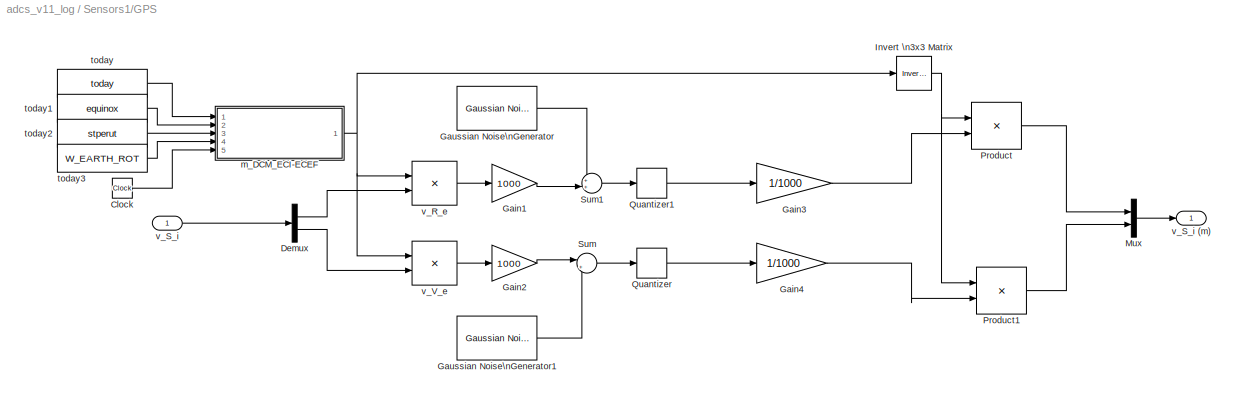
BLOCK [SubSystem] Sensors1/GPS
  FunctionWithSeparateData = off
  MaskHideContents = off
  MinAlgLoopOccurrences = off
  Opaque = off
  Ports = [1, 1]
  PropExecContextOutsideSubsystem = off
  RTWSystemCode = Auto
  RequestExecContextInheritance = off
  SID = 90
BLOCK [Clock] Sensors1/GPS/Clock
  Decimation = 10
  SID = 92
BLOCK [Demux] Sensors1/GPS/Demux
  DisplayOption = bar
  Outputs = 2
  Ports = [1, 2]
  SID = 93
BLOCK [Gain] Sensors1/GPS/Gain1
  Gain = 1000
  OutDataType = sfix(16)
  OutDataTypeMode = Inherit via internal rule
  OutDataTypeStr = Inherit: Inherit via internal rule
  OutScaling = 2^0
  ParamDataTypeStr = Inherit: Inherit via internal rule
  ParameterDataType = sfix(16)
  ParameterDataTypeMode = Inherit via internal rule
  ParameterScaling = 2^0
  SID = 94
  SaturateOnIntegerOverflow = off
BLOCK [Gain] Sensors1/GPS/Gain2
  Gain = 1000
  OutDataType = sfix(16)
  OutDataTypeMode = Inherit via internal rule
  OutDataTypeStr = Inherit: Inherit via internal rule
  OutScaling = 2^0
  ParamDataTypeStr = Inherit: Inherit via internal rule
  ParameterDataType = sfix(16)
  ParameterDataTypeMode = Inherit via internal rule
  ParameterScaling = 2^0
  SID = 95
  SaturateOnIntegerOverflow = off
BLOCK [Gain] Sensors1/GPS/Gain3
  Gain = 1/1000
  OutDataType = sfix(16)
  OutDataTypeMode = Inherit via internal rule
  OutDataTypeStr = Inherit: Inherit via internal rule
  OutScaling = 2^0
  ParamDataTypeStr = Inherit: Inherit via internal rule
  ParameterDataType = sfix(16)
  ParameterDataTypeMode = Inherit via internal rule
  ParameterScaling = 2^0
  SID = 96
  SaturateOnIntegerOverflow = off
BLOCK [Gain] Sensors1/GPS/Gain4
  Gain = 1/1000
  OutDataType = sfix(16)
  OutDataTypeMode = Inherit via internal rule
  OutDataTypeStr = Inherit: Inherit via internal rule
  OutScaling = 2^0
  ParamDataTypeStr = Inherit: Inherit via internal rule
  ParameterDataType = sfix(16)
  ParameterDataTypeMode = Inherit via internal rule
  ParameterScaling = 2^0
  SID = 97
  SaturateOnIntegerOverflow = off
BLOCK [Reference] Sensors1/GPS/Gaussian Noise\nGenerator  REF=commnoisgen2/Gaussian Noise\nGenerator
  FunctionWithSeparateData = off
  Ports = [0, 1]
  RTWMemSecDataConstants = Inherit from model
  RTWMemSecDataInternal = Inherit from model
  RTWMemSecDataParameters = Inherit from model
  RTWMemSecFuncExecute = Inherit from model
  RTWMemSecFuncInitTerm = Inherit from model
  SID = 98
  ShowPortLabels = FromPortIcon
  SourceBlock = commnoisgen2/Gaussian Noise\nGenerator
  SourceType = Gaussian Noise Generator
  SystemSampleTime = -1
  Ts = s_SIM_STEP_SIZE
  d = s_x_GPS_X
  frameBased = off
  m = 0
  orient = off
  outDataType = double
  s = 41
  sampPerFrame = 1
BLOCK [Reference] Sensors1/GPS/Gaussian Noise\nGenerator1  REF=commnoisgen2/Gaussian Noise\nGenerator
  FunctionWithSeparateData = off
  Ports = [0, 1]
  RTWMemSecDataConstants = Inherit from model
  RTWMemSecDataInternal = Inherit from model
  RTWMemSecDataParameters = Inherit from model
  RTWMemSecFuncExecute = Inherit from model
  RTWMemSecFuncInitTerm = Inherit from model
  SID = 99
  ShowPortLabels = FromPortIcon
  SourceBlock = commnoisgen2/Gaussian Noise\nGenerator
  SourceType = Gaussian Noise Generator
  SystemSampleTime = -1
  Ts = s_SIM_STEP_SIZE
  d = s_x_GPS_V
  frameBased = off
  m = 0
  orient = off
  outDataType = double
  s = 41
  sampPerFrame = 1
BLOCK [Reference] Sensors1/GPS/Invert \n3x3 Matrix  REF=aerolibutil/Invert \n3x3 Matrix
  FunctionWithSeparateData = off
  Ports = [1, 1]
  RTWMemSecDataConstants = Inherit from model
  RTWMemSecDataInternal = Inherit from model
  RTWMemSecDataParameters = Inherit from model
  RTWMemSecFuncExecute = Inherit from model
  RTWMemSecFuncInitTerm = Inherit from model
  SID = 100
  ShowPortLabels = FromPortIcon
  SourceBlock = aerolibutil/Invert \n3x3 Matrix
  SourceType = Invert 3x3 Matrix
  SystemSampleTime = -1
BLOCK [Mux] Sensors1/GPS/Mux
  DisplayOption = bar
  Inputs = 2
  Ports = [2, 1]
  SID = 101
BLOCK [Product] Sensors1/GPS/Product
  InputSameDT = off
  Multiplication = Matrix(*)
  OutDataType = sfix(16)
  OutDataTypeMode = Inherit via internal rule
  OutDataTypeStr = Inherit: Inherit via internal rule
  OutScaling = 2^0
  Ports = [2, 1]
  SID = 102
  SaturateOnIntegerOverflow = off
BLOCK [Product] Sensors1/GPS/Product1
  InputSameDT = off
  Multiplication = Matrix(*)
  OutDataType = sfix(16)
  OutDataTypeMode = Inherit via internal rule
  OutDataTypeStr = Inherit: Inherit via internal rule
  OutScaling = 2^0
  Ports = [2, 1]
  SID = 103
  SaturateOnIntegerOverflow = off
BLOCK [Quantizer] Sensors1/GPS/Quantizer
  QuantizationInterval = 1/(2^31)
  SID = 104
BLOCK [Quantizer] Sensors1/GPS/Quantizer1
  QuantizationInterval = 1/(2^31)
  SID = 105
BLOCK [Sum] Sensors1/GPS/Sum
  IconShape = round
  InputSameDT = off
  Inputs = |++
  OutDataType = sfix(16)
  OutDataTypeMode = Inherit via internal rule
  OutDataTypeStr = Inherit: Inherit via internal rule
  OutScaling = 2^0
  Ports = [2, 1]
  SID = 106
  SaturateOnIntegerOverflow = off
BLOCK [Sum] Sensors1/GPS/Sum1
  IconShape = round
  InputSameDT = off
  Inputs = ++|
  OutDataType = sfix(16)
  OutDataTypeMode = Inherit via internal rule
  OutDataTypeStr = Inherit: Inherit via internal rule
  OutScaling = 2^0
  Ports = [2, 1]
  SID = 107
  SaturateOnIntegerOverflow = off
BLOCK [SubSystem] Sensors1/GPS/m_DCM_ECI-ECEF
  FunctionWithSeparateData = off
  MaskDescription = Embedded MATLAB block
  MaskDisplay = disp('fcn');
  MaskHideContents = off
  MaskIconFrame = on
  MaskIconOpaque = off
  MaskIconRotate = none
  MaskIconUnits = autoscale
  MaskPortRotate = default
  MaskSelfModifiable = on
  MaskType = Stateflow
  MinAlgLoopOccurrences = off
  Opaque = off
  PermitHierarchicalResolution = ExplicitOnly
  Ports = [5, 1]
  PropExecContextOutsideSubsystem = off
  RTWSystemCode = Auto
  RequestExecContextInheritance = off
  SID = 108
BLOCK [Demux] Sensors1/GPS/m_DCM_ECI-ECEF/ Demux 
  Outputs = 1
  Ports = [1, 1]
  SID = 11
BLOCK [S-Function] Sensors1/GPS/m_DCM_ECI-ECEF/ SFunction 
  EnableBusSupport = on
  FunctionName = sf_sfun
  PortCounts = [5 2]
  Ports = [5, 2]
  SID = 10
  Tag = Stateflow S-Function adcs_v11_log 56
BLOCK [Terminator] Sensors1/GPS/m_DCM_ECI-ECEF/ Terminator 
  SID = 13
BLOCK [Outport] Sensors1/GPS/m_DCM_ECI-ECEF/TEI
  IconDisplay = Port number
  OutDataType = sfix(16)
  OutScaling = 2^0
  SID = 9
BLOCK [Inport] Sensors1/GPS/m_DCM_ECI-ECEF/W_EARTH_ROT
  IconDisplay = Port number
  Port = 4
  SID = 4
BLOCK [Inport] Sensors1/GPS/m_DCM_ECI-ECEF/equinox
  IconDisplay = Port number
  Port = 2
  SID = 2
BLOCK [Inport] Sensors1/GPS/m_DCM_ECI-ECEF/stperut
  IconDisplay = Port number
  Port = 3
  SID = 3
BLOCK [Inport] Sensors1/GPS/m_DCM_ECI-ECEF/t
  IconDisplay = Port number
  Port = 5
  SID = 5
BLOCK [Inport] Sensors1/GPS/m_DCM_ECI-ECEF/today
  IconDisplay = Port number
  SID = 1
BLOCK [Constant] Sensors1/GPS/today
  OutDataType = sfix(16)
  OutScaling = 2^0
  SID = 109
  Value = today
BLOCK [Constant] Sensors1/GPS/today1
  OutDataType = sfix(16)
  OutScaling = 2^0
  SID = 110
  Value = equinox
BLOCK [Constant] Sensors1/GPS/today2
  OutDataType = sfix(16)
  OutScaling = 2^0
  SID = 111
  Value = stperut
BLOCK [Constant] Sensors1/GPS/today3
  OutDataType = sfix(16)
  OutScaling = 2^0
  SID = 112
  Value = W_EARTH_ROT
BLOCK [Product] Sensors1/GPS/v_R_e
  InputSameDT = off
  Multiplication = Matrix(*)
  OutDataType = sfix(16)
  OutDataTypeMode = Inherit via internal rule
  OutDataTypeStr = Inherit: Inherit via internal rule
  OutScaling = 2^0
  Ports = [2, 1]
  SID = 113
  SaturateOnIntegerOverflow = off
BLOCK [Inport] Sensors1/GPS/v_S_i
  IconDisplay = Port number
  OutDataType = sfix(16)
  OutScaling = 2^0
  SID = 91
BLOCK [Outport] Sensors1/GPS/v_S_i (m)
  IconDisplay = Port number
  OutDataType = sfix(16)
  OutScaling = 2^0
  SID = 115
BLOCK [Product] Sensors1/GPS/v_V_e
  InputSameDT = off
  Multiplication = Matrix(*)
  OutDataType = sfix(16)
  OutDataTypeMode = Inherit via internal rule
  OutDataTypeStr = Inherit: Inherit via internal rule
  OutScaling = 2^0
  Ports = [2, 1]
  SID = 114
  SaturateOnIntegerOverflow = off
BLOCK [SubSystem] Sensors1/Magnetometer simple
  FunctionWithSeparateData = off
  MaskHideContents = off
  MinAlgLoopOccurrences = off
  Opaque = off
  Ports = [1, 1]
  PropExecContextOutsideSubsystem = off
  RTWSystemCode = Auto
  RequestExecContextInheritance = off
  SID = 116
BLOCK [Constant] Sensors1/Magnetometer simple/Constant
  OutDataType = fixdt(1, 16)
  OutScaling = 2^0
  SID = 118
  Value = s_x_MAGMETER_BIAS
BLOCK [Reference] Sensors1/Magnetometer simple/Gaussian Noise\nGenerator  REF=commnoisgen2/Gaussian Noise\nGenerator
  FunctionWithSeparateData = off
  Ports = [0, 1]
  RTWMemSecDataConstants = Inherit from model
  RTWMemSecDataInternal = Inherit from model
  RTWMemSecDataParameters = Inherit from model
  RTWMemSecFuncExecute = Inherit from model
  RTWMemSecFuncInitTerm = Inherit from model
  SID = 119
  ShowPortLabels = FromPortIcon
  SourceBlock = commnoisgen2/Gaussian Noise\nGenerator
  SourceType = Gaussian Noise Generator
  SystemSampleTime = -1
  Ts = s_SIM_STEP_SIZE
  d = s_x_MAGMETER
  frameBased = off
  m = 0
  orient = off
  outDataType = double
  s = 41
  sampPerFrame = 1
BLOCK [Sum] Sensors1/Magnetometer simple/Sum1
  IconShape = round
  InputSameDT = off
  Inputs = +++
  OutDataType = sfix(16)
  OutDataTypeMode = Inherit via internal rule
  OutDataTypeStr = Inherit: Inherit via internal rule
  OutScaling = 2^0
  Ports = [3, 1]
  SID = 120
  SaturateOnIntegerOverflow = off
BLOCK [Inport] Sensors1/Magnetometer simple/v_B_b
  IconDisplay = Port number
  OutDataType = sfix(16)
  OutScaling = 2^0
  SID = 117
BLOCK [Outport] Sensors1/Magnetometer simple/v_B_b(m)
  IconDisplay = Port number
  OutDataType = sfix(16)
  OutScaling = 2^0
  SID = 121
BLOCK [SubSystem] Sensors1/Sun Sensors
  FunctionWithSeparateData = off
  MaskHideContents = off
  MinAlgLoopOccurrences = off
  Opaque = off
  Ports = [2, 1]
  PropExecContextOutsideSubsystem = off
  RTWSystemCode = Auto
  RequestExecContextInheritance = off
  SID = 122
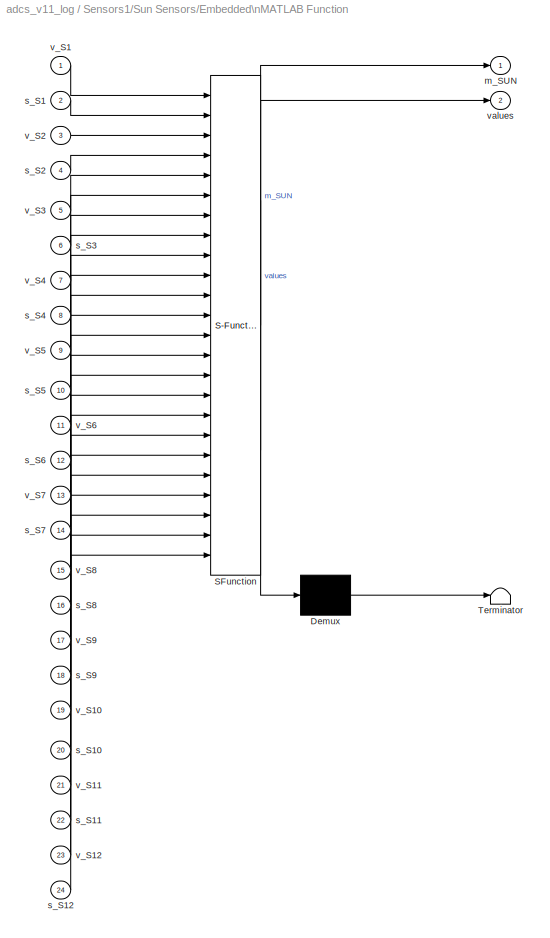
BLOCK [SubSystem] Sensors1/Sun Sensors/Embedded\nMATLAB Function
  FunctionWithSeparateData = off
  MaskDescription = Embedded MATLAB block
  MaskDisplay = disp('fcn');
  MaskHideContents = off
  MaskIconFrame = on
  MaskIconOpaque = off
  MaskIconRotate = none
  MaskIconUnits = autoscale
  MaskPortRotate = default
  MaskSelfModifiable = on
  MaskType = Stateflow
  MinAlgLoopOccurrences = off
  Opaque = off
  PermitHierarchicalResolution = ExplicitOnly
  Ports = [24, 2]
  PropExecContextOutsideSubsystem = off
  RTWSystemCode = Auto
  RequestExecContextInheritance = off
  SID = 125
BLOCK [Demux] Sensors1/Sun Sensors/Embedded\nMATLAB Function/ Demux 
  Outputs = 1
  Ports = [1, 1]
  SID = 32
BLOCK [S-Function] Sensors1/Sun Sensors/Embedded\nMATLAB Function/ SFunction 
  EnableBusSupport = on
  FunctionName = sf_sfun
  Parameters = Snum,s_SS_MAX_ANGLE
  PortCounts = [24 3]
  Ports = [24, 3]
  SID = 31
  Tag = Stateflow S-Function adcs_v11_log 22
BLOCK [Terminator] Sensors1/Sun Sensors/Embedded\nMATLAB Function/ Terminator 
  SID = 34
BLOCK [Outport] Sensors1/Sun Sensors/Embedded\nMATLAB Function/m_SUN
  IconDisplay = Port number
  OutDataType = sfix(16)
  OutScaling = 2^0
  SID = 28
BLOCK [Inport] Sensors1/Sun Sensors/Embedded\nMATLAB Function/s_S1
  IconDisplay = Port number
  Port = 2
  SID = 2
BLOCK [Inport] Sensors1/Sun Sensors/Embedded\nMATLAB Function/s_S10
  IconDisplay = Port number
  Port = 20
  SID = 20
BLOCK [Inport] Sensors1/Sun Sensors/Embedded\nMATLAB Function/s_S11
  IconDisplay = Port number
  Port = 22
  SID = 22
BLOCK [Inport] Sensors1/Sun Sensors/Embedded\nMATLAB Function/s_S12
  IconDisplay = Port number
  Port = 24
  SID = 24
BLOCK [Inport] Sensors1/Sun Sensors/Embedded\nMATLAB Function/s_S2
  IconDisplay = Port number
  Port = 4
  SID = 4
BLOCK [Inport] Sensors1/Sun Sensors/Embedded\nMATLAB Function/s_S3
  IconDisplay = Port number
  Port = 6
  SID = 6
BLOCK [Inport] Sensors1/Sun Sensors/Embedded\nMATLAB Function/s_S4
  IconDisplay = Port number
  Port = 8
  SID = 8
BLOCK [Inport] Sensors1/Sun Sensors/Embedded\nMATLAB Function/s_S5
  IconDisplay = Port number
  Port = 10
  SID = 10
BLOCK [Inport] Sensors1/Sun Sensors/Embedded\nMATLAB Function/s_S6
  IconDisplay = Port number
  Port = 12
  SID = 12
BLOCK [Inport] Sensors1/Sun Sensors/Embedded\nMATLAB Function/s_S7
  IconDisplay = Port number
  Port = 14
  SID = 14
BLOCK [Inport] Sensors1/Sun Sensors/Embedded\nMATLAB Function/s_S8
  IconDisplay = Port number
  Port = 16
  SID = 16
BLOCK [Inport] Sensors1/Sun Sensors/Embedded\nMATLAB Function/s_S9
  IconDisplay = Port number
  Port = 18
  SID = 18
BLOCK [Inport] Sensors1/Sun Sensors/Embedded\nMATLAB Function/v_S1
  IconDisplay = Port number
  OutDataType = sfix(16)
  OutScaling = 2^0
  SID = 1
BLOCK [Inport] Sensors1/Sun Sensors/Embedded\nMATLAB Function/v_S10
  IconDisplay = Port number
  Port = 19
  SID = 19
BLOCK [Inport] Sensors1/Sun Sensors/Embedded\nMATLAB Function/v_S11
  IconDisplay = Port number
  Port = 21
  SID = 21
BLOCK [Inport] Sensors1/Sun Sensors/Embedded\nMATLAB Function/v_S12
  IconDisplay = Port number
  Port = 23
  SID = 23
BLOCK [Inport] Sensors1/Sun Sensors/Embedded\nMATLAB Function/v_S2
  IconDisplay = Port number
  Port = 3
  SID = 3
BLOCK [Inport] Sensors1/Sun Sensors/Embedded\nMATLAB Function/v_S3
  IconDisplay = Port number
  Port = 5
  SID = 5
BLOCK [Inport] Sensors1/Sun Sensors/Embedded\nMATLAB Function/v_S4
  IconDisplay = Port number
  Port = 7
  SID = 7
BLOCK [Inport] Sensors1/Sun Sensors/Embedded\nMATLAB Function/v_S5
  IconDisplay = Port number
  Port = 9
  SID = 9
BLOCK [Inport] Sensors1/Sun Sensors/Embedded\nMATLAB Function/v_S6
  IconDisplay = Port number
  Port = 11
  SID = 11
BLOCK [Inport] Sensors1/Sun Sensors/Embedded\nMATLAB Function/v_S7
  IconDisplay = Port number
  Port = 13
  SID = 13
BLOCK [Inport] Sensors1/Sun Sensors/Embedded\nMATLAB Function/v_S8
  IconDisplay = Port number
  Port = 15
  SID = 15
BLOCK [Inport] Sensors1/Sun Sensors/Embedded\nMATLAB Function/v_S9
  IconDisplay = Port number
  Port = 17
  SID = 17
BLOCK [Outport] Sensors1/Sun Sensors/Embedded\nMATLAB Function/values
  IconDisplay = Port number
  Port = 2
  SID = 29
BLOCK [Inport] Sensors1/Sun Sensors/Light
  IconDisplay = Port number
  OutDataType = sfix(16)
  OutScaling = 2^0
  Port = 2
  SID = 124
BLOCK [SubSystem] Sensors1/Sun Sensors/S1
  FunctionWithSeparateData = off
  MaskHideContents = off
  MinAlgLoopOccurrences = off
  Opaque = off
  Ports = [2, 2]
  PropExecContextOutsideSubsystem = off
  RTWSystemCode = Auto
  RequestExecContextInheritance = off
  SID = 126
BLOCK [Quantizer] Sensors1/Sun Sensors/S1/ADC
  QuantizationInterval = 1/s_SS_ADC_res
  SID = 129
BLOCK [Sum] Sensors1/Sun Sensors/S1/Add
  InputSameDT = off
  OutDataType = sfix(16)
  OutDataTypeMode = Inherit via internal rule
  OutDataTypeStr = Inherit: Inherit via internal rule
  OutScaling = 2^-10
  Ports = [2, 1]
  SID = 130
  SaturateOnIntegerOverflow = off
BLOCK [Constant] Sensors1/Sun Sensors/S1/Constant
  OutDataType = sfix(16)
  OutScaling = 2^0
  SID = 131
  Value = v_S1
BLOCK [DotProduct] Sensors1/Sun Sensors/S1/Dot Product
  OutDataType = sfix(16)
  OutDataTypeStr = Inherit: Inherit via internal rule
  OutScaling = 2^-10
  OutputDataTypeScalingMode = Inherit via internal rule
  SID = 132
BLOCK [Gain] Sensors1/Sun Sensors/S1/Gain
  Gain = s_SS_ADC_gain
  OutDataType = sfix(16)
  OutDataTypeMode = Inherit via internal rule
  OutDataTypeStr = Inherit: Inherit via internal rule
  OutScaling = 2^0
  ParamDataTypeStr = Inherit: Inherit via internal rule
  ParameterDataType = sfix(16)
  ParameterDataTypeMode = Inherit via internal rule
  ParameterScaling = 2^0
  SID = 133
  SaturateOnIntegerOverflow = off
BLOCK [Reference] Sensors1/Sun Sensors/S1/Gaussian Noise\nGenerator  REF=commnoisgen2/Gaussian Noise\nGenerator
  FunctionWithSeparateData = off
  Ports = [0, 1]
  RTWMemSecDataConstants = Inherit from model
  RTWMemSecDataInternal = Inherit from model
  RTWMemSecDataParameters = Inherit from model
  RTWMemSecFuncExecute = Inherit from model
  RTWMemSecFuncInitTerm = Inherit from model
  SID = 134
  ShowPortLabels = FromPortIcon
  SourceBlock = commnoisgen2/Gaussian Noise\nGenerator
  SourceType = Gaussian Noise Generator
  SystemSampleTime = -1
  Ts = s_SIM_STEP_SIZE
  d = s_x_SUNSENSOR
  frameBased = off
  m = 0
  orient = off
  outDataType = double
  s = 41
  sampPerFrame = 1
BLOCK [Product] Sensors1/Sun Sensors/S1/Product
  InputSameDT = off
  OutDataType = fixdt(1, 16)
  OutDataTypeMode = Inherit via internal rule
  OutDataTypeStr = Inherit: Inherit via internal rule
  OutScaling = 2^0
  Ports = [2, 1]
  SID = 135
  SaturateOnIntegerOverflow = off
BLOCK [Saturate] Sensors1/Sun Sensors/S1/Saturation
  LowerLimit = 0
  OutDataType = sfix(16)
  OutScaling = 2^0
  SID = 136
  UpperLimit = inf
BLOCK [Inport] Sensors1/Sun Sensors/S1/light
  IconDisplay = Port number
  OutDataType = sfix(16)
  OutScaling = 2^0
  SID = 127
BLOCK [Outport] Sensors1/Sun Sensors/S1/s_S
  IconDisplay = Port number
  OutDataType = sfix(16)
  OutScaling = 2^0
  Port = 2
  SID = 138
BLOCK [Outport] Sensors1/Sun Sensors/S1/v_S
  IconDisplay = Port number
  OutDataType = sfix(16)
  OutScaling = 2^0
  SID = 137
BLOCK [Inport] Sensors1/Sun Sensors/S1/v_Sunb
  IconDisplay = Port number
  OutDataType = sfix(16)
  OutScaling = 2^0
  Port = 2
  SID = 128
BLOCK [SubSystem] Sensors1/Sun Sensors/S10
  FunctionWithSeparateData = off
  MaskHideContents = off
  MinAlgLoopOccurrences = off
  Opaque = off
  Ports = [2, 2]
  PropExecContextOutsideSubsystem = off
  RTWSystemCode = Auto
  RequestExecContextInheritance = off
  SID = 139
BLOCK [Quantizer] Sensors1/Sun Sensors/S10/ADC
  QuantizationInterval = 1/s_SS_ADC_res
  SID = 142
BLOCK [Sum] Sensors1/Sun Sensors/S10/Add
  InputSameDT = off
  OutDataType = sfix(16)
  OutDataTypeMode = Inherit via internal rule
  OutDataTypeStr = Inherit: Inherit via internal rule
  OutScaling = 2^-10
  Ports = [2, 1]
  SID = 143
  SaturateOnIntegerOverflow = off
BLOCK [Constant] Sensors1/Sun Sensors/S10/Constant
  OutDataType = sfix(16)
  OutScaling = 2^0
  SID = 144
  Value = v_S10
BLOCK [DotProduct] Sensors1/Sun Sensors/S10/Dot Product
  OutDataType = sfix(16)
  OutDataTypeStr = Inherit: Inherit via internal rule
  OutScaling = 2^-10
  OutputDataTypeScalingMode = Inherit via internal rule
  SID = 145
BLOCK [Gain] Sensors1/Sun Sensors/S10/Gain
  Gain = s_SS_ADC_gain
  OutDataType = sfix(16)
  OutDataTypeMode = Inherit via internal rule
  OutDataTypeStr = Inherit: Inherit via internal rule
  OutScaling = 2^0
  ParamDataTypeStr = Inherit: Inherit via internal rule
  ParameterDataType = sfix(16)
  ParameterDataTypeMode = Inherit via internal rule
  ParameterScaling = 2^0
  SID = 146
  SaturateOnIntegerOverflow = off
BLOCK [Reference] Sensors1/Sun Sensors/S10/Gaussian Noise\nGenerator  REF=commnoisgen2/Gaussian Noise\nGenerator
  FunctionWithSeparateData = off
  Ports = [0, 1]
  RTWMemSecDataConstants = Inherit from model
  RTWMemSecDataInternal = Inherit from model
  RTWMemSecDataParameters = Inherit from model
  RTWMemSecFuncExecute = Inherit from model
  RTWMemSecFuncInitTerm = Inherit from model
  SID = 147
  ShowPortLabels = FromPortIcon
  SourceBlock = commnoisgen2/Gaussian Noise\nGenerator
  SourceType = Gaussian Noise Generator
  SystemSampleTime = -1
  Ts = s_SIM_STEP_SIZE
  d = s_x_SUNSENSOR
  frameBased = off
  m = 0
  orient = off
  outDataType = double
  s = 41
  sampPerFrame = 1
BLOCK [Product] Sensors1/Sun Sensors/S10/Product
  InputSameDT = off
  OutDataType = fixdt(1, 16)
  OutDataTypeMode = Inherit via internal rule
  OutDataTypeStr = Inherit: Inherit via internal rule
  OutScaling = 2^0
  Ports = [2, 1]
  SID = 148
  SaturateOnIntegerOverflow = off
BLOCK [Saturate] Sensors1/Sun Sensors/S10/Saturation
  LowerLimit = 0
  OutDataType = sfix(16)
  OutScaling = 2^0
  SID = 149
  UpperLimit = inf
BLOCK [Inport] Sensors1/Sun Sensors/S10/light
  IconDisplay = Port number
  OutDataType = sfix(16)
  OutScaling = 2^0
  SID = 140
BLOCK [Outport] Sensors1/Sun Sensors/S10/s_S
  IconDisplay = Port number
  OutDataType = sfix(16)
  OutScaling = 2^0
  Port = 2
  SID = 151
BLOCK [Outport] Sensors1/Sun Sensors/S10/v_S
  IconDisplay = Port number
  OutDataType = sfix(16)
  OutScaling = 2^0
  SID = 150
BLOCK [Inport] Sensors1/Sun Sensors/S10/v_Sunb
  IconDisplay = Port number
  OutDataType = sfix(16)
  OutScaling = 2^0
  Port = 2
  SID = 141
BLOCK [SubSystem] Sensors1/Sun Sensors/S11
  FunctionWithSeparateData = off
  MaskHideContents = off
  MinAlgLoopOccurrences = off
  Opaque = off
  Ports = [2, 2]
  PropExecContextOutsideSubsystem = off
  RTWSystemCode = Auto
  RequestExecContextInheritance = off
  SID = 152
BLOCK [Quantizer] Sensors1/Sun Sensors/S11/ADC
  QuantizationInterval = 1/s_SS_ADC_res
  SID = 155
BLOCK [Sum] Sensors1/Sun Sensors/S11/Add
  InputSameDT = off
  OutDataType = sfix(16)
  OutDataTypeMode = Inherit via internal rule
  OutDataTypeStr = Inherit: Inherit via internal rule
  OutScaling = 2^-10
  Ports = [2, 1]
  SID = 156
  SaturateOnIntegerOverflow = off
BLOCK [Constant] Sensors1/Sun Sensors/S11/Constant
  OutDataType = sfix(16)
  OutScaling = 2^0
  SID = 157
  Value = v_S11
BLOCK [DotProduct] Sensors1/Sun Sensors/S11/Dot Product
  OutDataType = sfix(16)
  OutDataTypeStr = Inherit: Inherit via internal rule
  OutScaling = 2^-10
  OutputDataTypeScalingMode = Inherit via internal rule
  SID = 158
BLOCK [Gain] Sensors1/Sun Sensors/S11/Gain
  Gain = s_SS_ADC_gain
  OutDataType = sfix(16)
  OutDataTypeMode = Inherit via internal rule
  OutDataTypeStr = Inherit: Inherit via internal rule
  OutScaling = 2^0
  ParamDataTypeStr = Inherit: Inherit via internal rule
  ParameterDataType = sfix(16)
  ParameterDataTypeMode = Inherit via internal rule
  ParameterScaling = 2^0
  SID = 159
  SaturateOnIntegerOverflow = off
BLOCK [Reference] Sensors1/Sun Sensors/S11/Gaussian Noise\nGenerator  REF=commnoisgen2/Gaussian Noise\nGenerator
  FunctionWithSeparateData = off
  Ports = [0, 1]
  RTWMemSecDataConstants = Inherit from model
  RTWMemSecDataInternal = Inherit from model
  RTWMemSecDataParameters = Inherit from model
  RTWMemSecFuncExecute = Inherit from model
  RTWMemSecFuncInitTerm = Inherit from model
  SID = 160
  ShowPortLabels = FromPortIcon
  SourceBlock = commnoisgen2/Gaussian Noise\nGenerator
  SourceType = Gaussian Noise Generator
  SystemSampleTime = -1
  Ts = s_SIM_STEP_SIZE
  d = s_x_SUNSENSOR
  frameBased = off
  m = 0
  orient = off
  outDataType = double
  s = 41
  sampPerFrame = 1
BLOCK [Product] Sensors1/Sun Sensors/S11/Product
  InputSameDT = off
  OutDataType = fixdt(1, 16)
  OutDataTypeMode = Inherit via internal rule
  OutDataTypeStr = Inherit: Inherit via internal rule
  OutScaling = 2^0
  Ports = [2, 1]
  SID = 161
  SaturateOnIntegerOverflow = off
BLOCK [Saturate] Sensors1/Sun Sensors/S11/Saturation
  LowerLimit = 0
  OutDataType = sfix(16)
  OutScaling = 2^0
  SID = 162
  UpperLimit = inf
BLOCK [Inport] Sensors1/Sun Sensors/S11/light
  IconDisplay = Port number
  OutDataType = sfix(16)
  OutScaling = 2^0
  SID = 153
BLOCK [Outport] Sensors1/Sun Sensors/S11/s_S
  IconDisplay = Port number
  OutDataType = sfix(16)
  OutScaling = 2^0
  Port = 2
  SID = 164
BLOCK [Outport] Sensors1/Sun Sensors/S11/v_S
  IconDisplay = Port number
  OutDataType = sfix(16)
  OutScaling = 2^0
  SID = 163
BLOCK [Inport] Sensors1/Sun Sensors/S11/v_Sunb
  IconDisplay = Port number
  OutDataType = sfix(16)
  OutScaling = 2^0
  Port = 2
  SID = 154
BLOCK [SubSystem] Sensors1/Sun Sensors/S12
  FunctionWithSeparateData = off
  MaskHideContents = off
  MinAlgLoopOccurrences = off
  Opaque = off
  Ports = [2, 2]
  PropExecContextOutsideSubsystem = off
  RTWSystemCode = Auto
  RequestExecContextInheritance = off
  SID = 165
BLOCK [Quantizer] Sensors1/Sun Sensors/S12/ADC
  QuantizationInterval = 1/s_SS_ADC_res
  SID = 168
BLOCK [Sum] Sensors1/Sun Sensors/S12/Add
  InputSameDT = off
  OutDataType = sfix(16)
  OutDataTypeMode = Inherit via internal rule
  OutDataTypeStr = Inherit: Inherit via internal rule
  OutScaling = 2^-10
  Ports = [2, 1]
  SID = 169
  SaturateOnIntegerOverflow = off
BLOCK [Constant] Sensors1/Sun Sensors/S12/Constant
  OutDataType = sfix(16)
  OutScaling = 2^0
  SID = 170
  Value = v_S12
BLOCK [DotProduct] Sensors1/Sun Sensors/S12/Dot Product
  OutDataType = sfix(16)
  OutDataTypeStr = Inherit: Inherit via internal rule
  OutScaling = 2^-10
  OutputDataTypeScalingMode = Inherit via internal rule
  SID = 171
BLOCK [Gain] Sensors1/Sun Sensors/S12/Gain
  Gain = s_SS_ADC_gain
  OutDataType = sfix(16)
  OutDataTypeMode = Inherit via internal rule
  OutDataTypeStr = Inherit: Inherit via internal rule
  OutScaling = 2^0
  ParamDataTypeStr = Inherit: Inherit via internal rule
  ParameterDataType = sfix(16)
  ParameterDataTypeMode = Inherit via internal rule
  ParameterScaling = 2^0
  SID = 172
  SaturateOnIntegerOverflow = off
BLOCK [Reference] Sensors1/Sun Sensors/S12/Gaussian Noise\nGenerator  REF=commnoisgen2/Gaussian Noise\nGenerator
  FunctionWithSeparateData = off
  Ports = [0, 1]
  RTWMemSecDataConstants = Inherit from model
  RTWMemSecDataInternal = Inherit from model
  RTWMemSecDataParameters = Inherit from model
  RTWMemSecFuncExecute = Inherit from model
  RTWMemSecFuncInitTerm = Inherit from model
  SID = 173
  ShowPortLabels = FromPortIcon
  SourceBlock = commnoisgen2/Gaussian Noise\nGenerator
  SourceType = Gaussian Noise Generator
  SystemSampleTime = -1
  Ts = s_SIM_STEP_SIZE
  d = s_x_SUNSENSOR
  frameBased = off
  m = 0
  orient = off
  outDataType = double
  s = 41
  sampPerFrame = 1
BLOCK [Product] Sensors1/Sun Sensors/S12/Product
  InputSameDT = off
  OutDataType = fixdt(1, 16)
  OutDataTypeMode = Inherit via internal rule
  OutDataTypeStr = Inherit: Inherit via internal rule
  OutScaling = 2^0
  Ports = [2, 1]
  SID = 174
  SaturateOnIntegerOverflow = off
BLOCK [Saturate] Sensors1/Sun Sensors/S12/Saturation
  LowerLimit = 0
  OutDataType = sfix(16)
  OutScaling = 2^0
  SID = 175
  UpperLimit = inf
BLOCK [Inport] Sensors1/Sun Sensors/S12/light
  IconDisplay = Port number
  OutDataType = sfix(16)
  OutScaling = 2^0
  SID = 166
BLOCK [Outport] Sensors1/Sun Sensors/S12/s_S
  IconDisplay = Port number
  OutDataType = sfix(16)
  OutScaling = 2^0
  Port = 2
  SID = 177
BLOCK [Outport] Sensors1/Sun Sensors/S12/v_S
  IconDisplay = Port number
  OutDataType = sfix(16)
  OutScaling = 2^0
  SID = 176
BLOCK [Inport] Sensors1/Sun Sensors/S12/v_Sunb
  IconDisplay = Port number
  OutDataType = sfix(16)
  OutScaling = 2^0
  Port = 2
  SID = 167
BLOCK [SubSystem] Sensors1/Sun Sensors/S2
  FunctionWithSeparateData = off
  MaskHideContents = off
  MinAlgLoopOccurrences = off
  Opaque = off
  Ports = [2, 2]
  PropExecContextOutsideSubsystem = off
  RTWSystemCode = Auto
  RequestExecContextInheritance = off
  SID = 178
BLOCK [Quantizer] Sensors1/Sun Sensors/S2/ADC
  QuantizationInterval = 1/s_SS_ADC_res
  SID = 181
BLOCK [Sum] Sensors1/Sun Sensors/S2/Add
  InputSameDT = off
  OutDataType = sfix(16)
  OutDataTypeMode = Inherit via internal rule
  OutDataTypeStr = Inherit: Inherit via internal rule
  OutScaling = 2^-10
  Ports = [2, 1]
  SID = 182
  SaturateOnIntegerOverflow = off
BLOCK [Constant] Sensors1/Sun Sensors/S2/Constant
  OutDataType = sfix(16)
  OutScaling = 2^0
  SID = 183
  Value = v_S2
BLOCK [DotProduct] Sensors1/Sun Sensors/S2/Dot Product
  OutDataType = sfix(16)
  OutDataTypeStr = Inherit: Inherit via internal rule
  OutScaling = 2^-10
  OutputDataTypeScalingMode = Inherit via internal rule
  SID = 184
BLOCK [Gain] Sensors1/Sun Sensors/S2/Gain
  Gain = s_SS_ADC_gain
  OutDataType = sfix(16)
  OutDataTypeMode = Inherit via internal rule
  OutDataTypeStr = Inherit: Inherit via internal rule
  OutScaling = 2^0
  ParamDataTypeStr = Inherit: Inherit via internal rule
  ParameterDataType = sfix(16)
  ParameterDataTypeMode = Inherit via internal rule
  ParameterScaling = 2^0
  SID = 185
  SaturateOnIntegerOverflow = off
BLOCK [Reference] Sensors1/Sun Sensors/S2/Gaussian Noise\nGenerator  REF=commnoisgen2/Gaussian Noise\nGenerator
  FunctionWithSeparateData = off
  Ports = [0, 1]
  RTWMemSecDataConstants = Inherit from model
  RTWMemSecDataInternal = Inherit from model
  RTWMemSecDataParameters = Inherit from model
  RTWMemSecFuncExecute = Inherit from model
  RTWMemSecFuncInitTerm = Inherit from model
  SID = 186
  ShowPortLabels = FromPortIcon
  SourceBlock = commnoisgen2/Gaussian Noise\nGenerator
  SourceType = Gaussian Noise Generator
  SystemSampleTime = -1
  Ts = s_SIM_STEP_SIZE
  d = s_x_SUNSENSOR
  frameBased = off
  m = 0
  orient = off
  outDataType = double
  s = 41
  sampPerFrame = 1
BLOCK [Product] Sensors1/Sun Sensors/S2/Product
  InputSameDT = off
  OutDataType = fixdt(1, 16)
  OutDataTypeMode = Inherit via internal rule
  OutDataTypeStr = Inherit: Inherit via internal rule
  OutScaling = 2^0
  Ports = [2, 1]
  SID = 187
  SaturateOnIntegerOverflow = off
BLOCK [Saturate] Sensors1/Sun Sensors/S2/Saturation
  LowerLimit = 0
  OutDataType = sfix(16)
  OutScaling = 2^0
  SID = 188
  UpperLimit = inf
BLOCK [Inport] Sensors1/Sun Sensors/S2/light
  IconDisplay = Port number
  OutDataType = sfix(16)
  OutScaling = 2^0
  SID = 179
BLOCK [Outport] Sensors1/Sun Sensors/S2/s_S
  IconDisplay = Port number
  OutDataType = sfix(16)
  OutScaling = 2^0
  Port = 2
  SID = 190
BLOCK [Outport] Sensors1/Sun Sensors/S2/v_S
  IconDisplay = Port number
  OutDataType = sfix(16)
  OutScaling = 2^0
  SID = 189
BLOCK [Inport] Sensors1/Sun Sensors/S2/v_Sunb
  IconDisplay = Port number
  OutDataType = sfix(16)
  OutScaling = 2^0
  Port = 2
  SID = 180
BLOCK [SubSystem] Sensors1/Sun Sensors/S3
  FunctionWithSeparateData = off
  MaskHideContents = off
  MinAlgLoopOccurrences = off
  Opaque = off
  Ports = [2, 2]
  PropExecContextOutsideSubsystem = off
  RTWSystemCode = Auto
  RequestExecContextInheritance = off
  SID = 191
BLOCK [Quantizer] Sensors1/Sun Sensors/S3/ADC
  QuantizationInterval = 1/s_SS_ADC_res
  SID = 194
BLOCK [Sum] Sensors1/Sun Sensors/S3/Add
  InputSameDT = off
  OutDataType = sfix(16)
  OutDataTypeMode = Inherit via internal rule
  OutDataTypeStr = Inherit: Inherit via internal rule
  OutScaling = 2^-10
  Ports = [2, 1]
  SID = 195
  SaturateOnIntegerOverflow = off
BLOCK [Constant] Sensors1/Sun Sensors/S3/Constant
  OutDataType = sfix(16)
  OutScaling = 2^0
  SID = 196
  Value = v_S3
BLOCK [DotProduct] Sensors1/Sun Sensors/S3/Dot Product
  OutDataType = sfix(16)
  OutDataTypeStr = Inherit: Inherit via internal rule
  OutScaling = 2^-10
  OutputDataTypeScalingMode = Inherit via internal rule
  SID = 197
BLOCK [Gain] Sensors1/Sun Sensors/S3/Gain
  Gain = s_SS_ADC_gain
  OutDataType = sfix(16)
  OutDataTypeMode = Inherit via internal rule
  OutDataTypeStr = Inherit: Inherit via internal rule
  OutScaling = 2^0
  ParamDataTypeStr = Inherit: Inherit via internal rule
  ParameterDataType = sfix(16)
  ParameterDataTypeMode = Inherit via internal rule
  ParameterScaling = 2^0
  SID = 198
  SaturateOnIntegerOverflow = off
BLOCK [Reference] Sensors1/Sun Sensors/S3/Gaussian Noise\nGenerator  REF=commnoisgen2/Gaussian Noise\nGenerator
  FunctionWithSeparateData = off
  Ports = [0, 1]
  RTWMemSecDataConstants = Inherit from model
  RTWMemSecDataInternal = Inherit from model
  RTWMemSecDataParameters = Inherit from model
  RTWMemSecFuncExecute = Inherit from model
  RTWMemSecFuncInitTerm = Inherit from model
  SID = 199
  ShowPortLabels = FromPortIcon
  SourceBlock = commnoisgen2/Gaussian Noise\nGenerator
  SourceType = Gaussian Noise Generator
  SystemSampleTime = -1
  Ts = s_SIM_STEP_SIZE
  d = s_x_SUNSENSOR
  frameBased = off
  m = 0
  orient = off
  outDataType = double
  s = 41
  sampPerFrame = 1
BLOCK [Product] Sensors1/Sun Sensors/S3/Product
  InputSameDT = off
  OutDataType = fixdt(1, 16)
  OutDataTypeMode = Inherit via internal rule
  OutDataTypeStr = Inherit: Inherit via internal rule
  OutScaling = 2^0
  Ports = [2, 1]
  SID = 200
  SaturateOnIntegerOverflow = off
BLOCK [Saturate] Sensors1/Sun Sensors/S3/Saturation
  LowerLimit = 0
  OutDataType = sfix(16)
  OutScaling = 2^0
  SID = 201
  UpperLimit = inf
BLOCK [Inport] Sensors1/Sun Sensors/S3/light
  IconDisplay = Port number
  OutDataType = sfix(16)
  OutScaling = 2^0
  SID = 192
BLOCK [Outport] Sensors1/Sun Sensors/S3/s_S
  IconDisplay = Port number
  OutDataType = sfix(16)
  OutScaling = 2^0
  Port = 2
  SID = 203
BLOCK [Outport] Sensors1/Sun Sensors/S3/v_S
  IconDisplay = Port number
  OutDataType = sfix(16)
  OutScaling = 2^0
  SID = 202
BLOCK [Inport] Sensors1/Sun Sensors/S3/v_Sunb
  IconDisplay = Port number
  OutDataType = sfix(16)
  OutScaling = 2^0
  Port = 2
  SID = 193
BLOCK [SubSystem] Sensors1/Sun Sensors/S4
  FunctionWithSeparateData = off
  MaskHideContents = off
  MinAlgLoopOccurrences = off
  Opaque = off
  Ports = [2, 2]
  PropExecContextOutsideSubsystem = off
  RTWSystemCode = Auto
  RequestExecContextInheritance = off
  SID = 204
BLOCK [Quantizer] Sensors1/Sun Sensors/S4/ADC
  QuantizationInterval = 1/s_SS_ADC_res
  SID = 207
BLOCK [Sum] Sensors1/Sun Sensors/S4/Add
  InputSameDT = off
  OutDataType = sfix(16)
  OutDataTypeMode = Inherit via internal rule
  OutDataTypeStr = Inherit: Inherit via internal rule
  OutScaling = 2^-10
  Ports = [2, 1]
  SID = 208
  SaturateOnIntegerOverflow = off
BLOCK [Constant] Sensors1/Sun Sensors/S4/Constant
  OutDataType = sfix(16)
  OutScaling = 2^0
  SID = 209
  Value = v_S4
BLOCK [DotProduct] Sensors1/Sun Sensors/S4/Dot Product
  OutDataType = sfix(16)
  OutDataTypeStr = Inherit: Inherit via internal rule
  OutScaling = 2^-10
  OutputDataTypeScalingMode = Inherit via internal rule
  SID = 210
BLOCK [Gain] Sensors1/Sun Sensors/S4/Gain
  Gain = s_SS_ADC_gain
  OutDataType = sfix(16)
  OutDataTypeMode = Inherit via internal rule
  OutDataTypeStr = Inherit: Inherit via internal rule
  OutScaling = 2^0
  ParamDataTypeStr = Inherit: Inherit via internal rule
  ParameterDataType = sfix(16)
  ParameterDataTypeMode = Inherit via internal rule
  ParameterScaling = 2^0
  SID = 211
  SaturateOnIntegerOverflow = off
BLOCK [Reference] Sensors1/Sun Sensors/S4/Gaussian Noise\nGenerator  REF=commnoisgen2/Gaussian Noise\nGenerator
  FunctionWithSeparateData = off
  Ports = [0, 1]
  RTWMemSecDataConstants = Inherit from model
  RTWMemSecDataInternal = Inherit from model
  RTWMemSecDataParameters = Inherit from model
  RTWMemSecFuncExecute = Inherit from model
  RTWMemSecFuncInitTerm = Inherit from model
  SID = 212
  ShowPortLabels = FromPortIcon
  SourceBlock = commnoisgen2/Gaussian Noise\nGenerator
  SourceType = Gaussian Noise Generator
  SystemSampleTime = -1
  Ts = s_SIM_STEP_SIZE
  d = s_x_SUNSENSOR
  frameBased = off
  m = 0
  orient = off
  outDataType = double
  s = 41
  sampPerFrame = 1
BLOCK [Product] Sensors1/Sun Sensors/S4/Product
  InputSameDT = off
  OutDataType = fixdt(1, 16)
  OutDataTypeMode = Inherit via internal rule
  OutDataTypeStr = Inherit: Inherit via internal rule
  OutScaling = 2^0
  Ports = [2, 1]
  SID = 213
  SaturateOnIntegerOverflow = off
BLOCK [Saturate] Sensors1/Sun Sensors/S4/Saturation
  LowerLimit = 0
  OutDataType = sfix(16)
  OutScaling = 2^0
  SID = 214
  UpperLimit = inf
BLOCK [Inport] Sensors1/Sun Sensors/S4/light
  IconDisplay = Port number
  OutDataType = sfix(16)
  OutScaling = 2^0
  SID = 205
BLOCK [Outport] Sensors1/Sun Sensors/S4/s_S
  IconDisplay = Port number
  OutDataType = sfix(16)
  OutScaling = 2^0
  Port = 2
  SID = 216
BLOCK [Outport] Sensors1/Sun Sensors/S4/v_S
  IconDisplay = Port number
  OutDataType = sfix(16)
  OutScaling = 2^0
  SID = 215
BLOCK [Inport] Sensors1/Sun Sensors/S4/v_Sunb
  IconDisplay = Port number
  OutDataType = sfix(16)
  OutScaling = 2^0
  Port = 2
  SID = 206
BLOCK [SubSystem] Sensors1/Sun Sensors/S5
  FunctionWithSeparateData = off
  MaskHideContents = off
  MinAlgLoopOccurrences = off
  Opaque = off
  Ports = [2, 2]
  PropExecContextOutsideSubsystem = off
  RTWSystemCode = Auto
  RequestExecContextInheritance = off
  SID = 217
BLOCK [Quantizer] Sensors1/Sun Sensors/S5/ADC
  QuantizationInterval = 1/s_SS_ADC_res
  SID = 220
BLOCK [Sum] Sensors1/Sun Sensors/S5/Add
  InputSameDT = off
  OutDataType = sfix(16)
  OutDataTypeMode = Inherit via internal rule
  OutDataTypeStr = Inherit: Inherit via internal rule
  OutScaling = 2^-10
  Ports = [2, 1]
  SID = 221
  SaturateOnIntegerOverflow = off
BLOCK [Constant] Sensors1/Sun Sensors/S5/Constant
  OutDataType = sfix(16)
  OutScaling = 2^0
  SID = 222
  Value = v_S5
BLOCK [DotProduct] Sensors1/Sun Sensors/S5/Dot Product
  OutDataType = sfix(16)
  OutDataTypeStr = Inherit: Inherit via internal rule
  OutScaling = 2^-10
  OutputDataTypeScalingMode = Inherit via internal rule
  SID = 223
BLOCK [Gain] Sensors1/Sun Sensors/S5/Gain
  Gain = s_SS_ADC_gain
  OutDataType = sfix(16)
  OutDataTypeMode = Inherit via internal rule
  OutDataTypeStr = Inherit: Inherit via internal rule
  OutScaling = 2^0
  ParamDataTypeStr = Inherit: Inherit via internal rule
  ParameterDataType = sfix(16)
  ParameterDataTypeMode = Inherit via internal rule
  ParameterScaling = 2^0
  SID = 224
  SaturateOnIntegerOverflow = off
BLOCK [Reference] Sensors1/Sun Sensors/S5/Gaussian Noise\nGenerator  REF=commnoisgen2/Gaussian Noise\nGenerator
  FunctionWithSeparateData = off
  Ports = [0, 1]
  RTWMemSecDataConstants = Inherit from model
  RTWMemSecDataInternal = Inherit from model
  RTWMemSecDataParameters = Inherit from model
  RTWMemSecFuncExecute = Inherit from model
  RTWMemSecFuncInitTerm = Inherit from model
  SID = 225
  ShowPortLabels = FromPortIcon
  SourceBlock = commnoisgen2/Gaussian Noise\nGenerator
  SourceType = Gaussian Noise Generator
  SystemSampleTime = -1
  Ts = s_SIM_STEP_SIZE
  d = s_x_SUNSENSOR
  frameBased = off
  m = 0
  orient = off
  outDataType = double
  s = 41
  sampPerFrame = 1
BLOCK [Product] Sensors1/Sun Sensors/S5/Product
  InputSameDT = off
  OutDataType = fixdt(1, 16)
  OutDataTypeMode = Inherit via internal rule
  OutDataTypeStr = Inherit: Inherit via internal rule
  OutScaling = 2^0
  Ports = [2, 1]
  SID = 226
  SaturateOnIntegerOverflow = off
BLOCK [Saturate] Sensors1/Sun Sensors/S5/Saturation
  LowerLimit = 0
  OutDataType = sfix(16)
  OutScaling = 2^0
  SID = 227
  UpperLimit = inf
BLOCK [Inport] Sensors1/Sun Sensors/S5/light
  IconDisplay = Port number
  OutDataType = sfix(16)
  OutScaling = 2^0
  SID = 218
BLOCK [Outport] Sensors1/Sun Sensors/S5/s_S
  IconDisplay = Port number
  OutDataType = sfix(16)
  OutScaling = 2^0
  Port = 2
  SID = 229
BLOCK [Outport] Sensors1/Sun Sensors/S5/v_S
  IconDisplay = Port number
  OutDataType = sfix(16)
  OutScaling = 2^0
  SID = 228
BLOCK [Inport] Sensors1/Sun Sensors/S5/v_Sunb
  IconDisplay = Port number
  OutDataType = sfix(16)
  OutScaling = 2^0
  Port = 2
  SID = 219
BLOCK [SubSystem] Sensors1/Sun Sensors/S6
  FunctionWithSeparateData = off
  MaskHideContents = off
  MinAlgLoopOccurrences = off
  Opaque = off
  Ports = [2, 2]
  PropExecContextOutsideSubsystem = off
  RTWSystemCode = Auto
  RequestExecContextInheritance = off
  SID = 230
BLOCK [Quantizer] Sensors1/Sun Sensors/S6/ADC
  QuantizationInterval = 1/s_SS_ADC_res
  SID = 233
BLOCK [Sum] Sensors1/Sun Sensors/S6/Add
  InputSameDT = off
  OutDataType = sfix(16)
  OutDataTypeMode = Inherit via internal rule
  OutDataTypeStr = Inherit: Inherit via internal rule
  OutScaling = 2^-10
  Ports = [2, 1]
  SID = 234
  SaturateOnIntegerOverflow = off
BLOCK [Constant] Sensors1/Sun Sensors/S6/Constant
  OutDataType = sfix(16)
  OutScaling = 2^0
  SID = 235
  Value = v_S6
BLOCK [DotProduct] Sensors1/Sun Sensors/S6/Dot Product
  OutDataType = sfix(16)
  OutDataTypeStr = Inherit: Inherit via internal rule
  OutScaling = 2^-10
  OutputDataTypeScalingMode = Inherit via internal rule
  SID = 236
BLOCK [Gain] Sensors1/Sun Sensors/S6/Gain
  Gain = s_SS_ADC_gain
  OutDataType = sfix(16)
  OutDataTypeMode = Inherit via internal rule
  OutDataTypeStr = Inherit: Inherit via internal rule
  OutScaling = 2^0
  ParamDataTypeStr = Inherit: Inherit via internal rule
  ParameterDataType = sfix(16)
  ParameterDataTypeMode = Inherit via internal rule
  ParameterScaling = 2^0
  SID = 237
  SaturateOnIntegerOverflow = off
BLOCK [Reference] Sensors1/Sun Sensors/S6/Gaussian Noise\nGenerator  REF=commnoisgen2/Gaussian Noise\nGenerator
  FunctionWithSeparateData = off
  Ports = [0, 1]
  RTWMemSecDataConstants = Inherit from model
  RTWMemSecDataInternal = Inherit from model
  RTWMemSecDataParameters = Inherit from model
  RTWMemSecFuncExecute = Inherit from model
  RTWMemSecFuncInitTerm = Inherit from model
  SID = 238
  ShowPortLabels = FromPortIcon
  SourceBlock = commnoisgen2/Gaussian Noise\nGenerator
  SourceType = Gaussian Noise Generator
  SystemSampleTime = -1
  Ts = s_SIM_STEP_SIZE
  d = s_x_SUNSENSOR
  frameBased = off
  m = 0
  orient = off
  outDataType = double
  s = 41
  sampPerFrame = 1
BLOCK [Product] Sensors1/Sun Sensors/S6/Product
  InputSameDT = off
  OutDataType = fixdt(1, 16)
  OutDataTypeMode = Inherit via internal rule
  OutDataTypeStr = Inherit: Inherit via internal rule
  OutScaling = 2^0
  Ports = [2, 1]
  SID = 239
  SaturateOnIntegerOverflow = off
BLOCK [Saturate] Sensors1/Sun Sensors/S6/Saturation
  LowerLimit = 0
  OutDataType = sfix(16)
  OutScaling = 2^0
  SID = 240
  UpperLimit = inf
BLOCK [Inport] Sensors1/Sun Sensors/S6/light
  IconDisplay = Port number
  OutDataType = sfix(16)
  OutScaling = 2^0
  SID = 231
BLOCK [Outport] Sensors1/Sun Sensors/S6/s_S
  IconDisplay = Port number
  OutDataType = sfix(16)
  OutScaling = 2^0
  Port = 2
  SID = 242
BLOCK [Outport] Sensors1/Sun Sensors/S6/v_S
  IconDisplay = Port number
  OutDataType = sfix(16)
  OutScaling = 2^0
  SID = 241
BLOCK [Inport] Sensors1/Sun Sensors/S6/v_Sunb
  IconDisplay = Port number
  OutDataType = sfix(16)
  OutScaling = 2^0
  Port = 2
  SID = 232
BLOCK [SubSystem] Sensors1/Sun Sensors/S7
  FunctionWithSeparateData = off
  MaskHideContents = off
  MinAlgLoopOccurrences = off
  Opaque = off
  Ports = [2, 2]
  PropExecContextOutsideSubsystem = off
  RTWSystemCode = Auto
  RequestExecContextInheritance = off
  SID = 243
BLOCK [Quantizer] Sensors1/Sun Sensors/S7/ADC
  QuantizationInterval = 1/s_SS_ADC_res
  SID = 246
BLOCK [Sum] Sensors1/Sun Sensors/S7/Add
  InputSameDT = off
  OutDataType = sfix(16)
  OutDataTypeMode = Inherit via internal rule
  OutDataTypeStr = Inherit: Inherit via internal rule
  OutScaling = 2^-10
  Ports = [2, 1]
  SID = 247
  SaturateOnIntegerOverflow = off
BLOCK [Constant] Sensors1/Sun Sensors/S7/Constant
  OutDataType = sfix(16)
  OutScaling = 2^0
  SID = 248
  Value = v_S7
BLOCK [DotProduct] Sensors1/Sun Sensors/S7/Dot Product
  OutDataType = sfix(16)
  OutDataTypeStr = Inherit: Inherit via internal rule
  OutScaling = 2^-10
  OutputDataTypeScalingMode = Inherit via internal rule
  SID = 249
BLOCK [Gain] Sensors1/Sun Sensors/S7/Gain
  Gain = s_SS_ADC_gain
  OutDataType = sfix(16)
  OutDataTypeMode = Inherit via internal rule
  OutDataTypeStr = Inherit: Inherit via internal rule
  OutScaling = 2^0
  ParamDataTypeStr = Inherit: Inherit via internal rule
  ParameterDataType = sfix(16)
  ParameterDataTypeMode = Inherit via internal rule
  ParameterScaling = 2^0
  SID = 250
  SaturateOnIntegerOverflow = off
BLOCK [Reference] Sensors1/Sun Sensors/S7/Gaussian Noise\nGenerator  REF=commnoisgen2/Gaussian Noise\nGenerator
  FunctionWithSeparateData = off
  Ports = [0, 1]
  RTWMemSecDataConstants = Inherit from model
  RTWMemSecDataInternal = Inherit from model
  RTWMemSecDataParameters = Inherit from model
  RTWMemSecFuncExecute = Inherit from model
  RTWMemSecFuncInitTerm = Inherit from model
  SID = 251
  ShowPortLabels = FromPortIcon
  SourceBlock = commnoisgen2/Gaussian Noise\nGenerator
  SourceType = Gaussian Noise Generator
  SystemSampleTime = -1
  Ts = s_SIM_STEP_SIZE
  d = s_x_SUNSENSOR
  frameBased = off
  m = 0
  orient = off
  outDataType = double
  s = 41
  sampPerFrame = 1
BLOCK [Product] Sensors1/Sun Sensors/S7/Product
  InputSameDT = off
  OutDataType = fixdt(1, 16)
  OutDataTypeMode = Inherit via internal rule
  OutDataTypeStr = Inherit: Inherit via internal rule
  OutScaling = 2^0
  Ports = [2, 1]
  SID = 252
  SaturateOnIntegerOverflow = off
BLOCK [Saturate] Sensors1/Sun Sensors/S7/Saturation
  LowerLimit = 0
  OutDataType = sfix(16)
  OutScaling = 2^0
  SID = 253
  UpperLimit = inf
BLOCK [Inport] Sensors1/Sun Sensors/S7/light
  IconDisplay = Port number
  OutDataType = sfix(16)
  OutScaling = 2^0
  SID = 244
BLOCK [Outport] Sensors1/Sun Sensors/S7/s_S
  IconDisplay = Port number
  OutDataType = sfix(16)
  OutScaling = 2^0
  Port = 2
  SID = 255
BLOCK [Outport] Sensors1/Sun Sensors/S7/v_S
  IconDisplay = Port number
  OutDataType = sfix(16)
  OutScaling = 2^0
  SID = 254
BLOCK [Inport] Sensors1/Sun Sensors/S7/v_Sunb
  IconDisplay = Port number
  OutDataType = sfix(16)
  OutScaling = 2^0
  Port = 2
  SID = 245
BLOCK [SubSystem] Sensors1/Sun Sensors/S8
  FunctionWithSeparateData = off
  MaskHideContents = off
  MinAlgLoopOccurrences = off
  Opaque = off
  Ports = [2, 2]
  PropExecContextOutsideSubsystem = off
  RTWSystemCode = Auto
  RequestExecContextInheritance = off
  SID = 256
BLOCK [Quantizer] Sensors1/Sun Sensors/S8/ADC
  QuantizationInterval = 1/s_SS_ADC_res
  SID = 259
BLOCK [Sum] Sensors1/Sun Sensors/S8/Add
  InputSameDT = off
  OutDataType = sfix(16)
  OutDataTypeMode = Inherit via internal rule
  OutDataTypeStr = Inherit: Inherit via internal rule
  OutScaling = 2^-10
  Ports = [2, 1]
  SID = 260
  SaturateOnIntegerOverflow = off
BLOCK [Constant] Sensors1/Sun Sensors/S8/Constant
  OutDataType = sfix(16)
  OutScaling = 2^0
  SID = 261
  Value = v_S8
BLOCK [DotProduct] Sensors1/Sun Sensors/S8/Dot Product
  OutDataType = sfix(16)
  OutDataTypeStr = Inherit: Inherit via internal rule
  OutScaling = 2^-10
  OutputDataTypeScalingMode = Inherit via internal rule
  SID = 262
BLOCK [Gain] Sensors1/Sun Sensors/S8/Gain
  Gain = s_SS_ADC_gain
  OutDataType = sfix(16)
  OutDataTypeMode = Inherit via internal rule
  OutDataTypeStr = Inherit: Inherit via internal rule
  OutScaling = 2^0
  ParamDataTypeStr = Inherit: Inherit via internal rule
  ParameterDataType = sfix(16)
  ParameterDataTypeMode = Inherit via internal rule
  ParameterScaling = 2^0
  SID = 263
  SaturateOnIntegerOverflow = off
BLOCK [Reference] Sensors1/Sun Sensors/S8/Gaussian Noise\nGenerator  REF=commnoisgen2/Gaussian Noise\nGenerator
  FunctionWithSeparateData = off
  Ports = [0, 1]
  RTWMemSecDataConstants = Inherit from model
  RTWMemSecDataInternal = Inherit from model
  RTWMemSecDataParameters = Inherit from model
  RTWMemSecFuncExecute = Inherit from model
  RTWMemSecFuncInitTerm = Inherit from model
  SID = 264
  ShowPortLabels = FromPortIcon
  SourceBlock = commnoisgen2/Gaussian Noise\nGenerator
  SourceType = Gaussian Noise Generator
  SystemSampleTime = -1
  Ts = s_SIM_STEP_SIZE
  d = s_x_SUNSENSOR
  frameBased = off
  m = 0
  orient = off
  outDataType = double
  s = 41
  sampPerFrame = 1
BLOCK [Product] Sensors1/Sun Sensors/S8/Product
  InputSameDT = off
  OutDataType = fixdt(1, 16)
  OutDataTypeMode = Inherit via internal rule
  OutDataTypeStr = Inherit: Inherit via internal rule
  OutScaling = 2^0
  Ports = [2, 1]
  SID = 265
  SaturateOnIntegerOverflow = off
BLOCK [Saturate] Sensors1/Sun Sensors/S8/Saturation
  LowerLimit = 0
  OutDataType = sfix(16)
  OutScaling = 2^0
  SID = 266
  UpperLimit = inf
BLOCK [Inport] Sensors1/Sun Sensors/S8/light
  IconDisplay = Port number
  OutDataType = sfix(16)
  OutScaling = 2^0
  SID = 257
BLOCK [Outport] Sensors1/Sun Sensors/S8/s_S
  IconDisplay = Port number
  OutDataType = sfix(16)
  OutScaling = 2^0
  Port = 2
  SID = 268
BLOCK [Outport] Sensors1/Sun Sensors/S8/v_S
  IconDisplay = Port number
  OutDataType = sfix(16)
  OutScaling = 2^0
  SID = 267
BLOCK [Inport] Sensors1/Sun Sensors/S8/v_Sunb
  IconDisplay = Port number
  OutDataType = sfix(16)
  OutScaling = 2^0
  Port = 2
  SID = 258
BLOCK [SubSystem] Sensors1/Sun Sensors/S9
  FunctionWithSeparateData = off
  MaskHideContents = off
  MinAlgLoopOccurrences = off
  Opaque = off
  Ports = [2, 2]
  PropExecContextOutsideSubsystem = off
  RTWSystemCode = Auto
  RequestExecContextInheritance = off
  SID = 269
BLOCK [Quantizer] Sensors1/Sun Sensors/S9/ADC
  QuantizationInterval = 1/s_SS_ADC_res
  SID = 272
BLOCK [Sum] Sensors1/Sun Sensors/S9/Add
  InputSameDT = off
  OutDataType = sfix(16)
  OutDataTypeMode = Inherit via internal rule
  OutDataTypeStr = Inherit: Inherit via internal rule
  OutScaling = 2^-10
  Ports = [2, 1]
  SID = 273
  SaturateOnIntegerOverflow = off
BLOCK [Constant] Sensors1/Sun Sensors/S9/Constant
  OutDataType = sfix(16)
  OutScaling = 2^0
  SID = 274
  Value = v_S9
BLOCK [DotProduct] Sensors1/Sun Sensors/S9/Dot Product
  OutDataType = sfix(16)
  OutDataTypeStr = Inherit: Inherit via internal rule
  OutScaling = 2^-10
  OutputDataTypeScalingMode = Inherit via internal rule
  SID = 275
BLOCK [Gain] Sensors1/Sun Sensors/S9/Gain
  Gain = s_SS_ADC_gain
  OutDataType = sfix(16)
  OutDataTypeMode = Inherit via internal rule
  OutDataTypeStr = Inherit: Inherit via internal rule
  OutScaling = 2^0
  ParamDataTypeStr = Inherit: Inherit via internal rule
  ParameterDataType = sfix(16)
  ParameterDataTypeMode = Inherit via internal rule
  ParameterScaling = 2^0
  SID = 276
  SaturateOnIntegerOverflow = off
BLOCK [Reference] Sensors1/Sun Sensors/S9/Gaussian Noise\nGenerator  REF=commnoisgen2/Gaussian Noise\nGenerator
  FunctionWithSeparateData = off
  Ports = [0, 1]
  RTWMemSecDataConstants = Inherit from model
  RTWMemSecDataInternal = Inherit from model
  RTWMemSecDataParameters = Inherit from model
  RTWMemSecFuncExecute = Inherit from model
  RTWMemSecFuncInitTerm = Inherit from model
  SID = 277
  ShowPortLabels = FromPortIcon
  SourceBlock = commnoisgen2/Gaussian Noise\nGenerator
  SourceType = Gaussian Noise Generator
  SystemSampleTime = -1
  Ts = s_SIM_STEP_SIZE
  d = s_x_SUNSENSOR
  frameBased = off
  m = 0
  orient = off
  outDataType = double
  s = 41
  sampPerFrame = 1
BLOCK [Product] Sensors1/Sun Sensors/S9/Product
  InputSameDT = off
  OutDataType = fixdt(1, 16)
  OutDataTypeMode = Inherit via internal rule
  OutDataTypeStr = Inherit: Inherit via internal rule
  OutScaling = 2^0
  Ports = [2, 1]
  SID = 278
  SaturateOnIntegerOverflow = off
BLOCK [Saturate] Sensors1/Sun Sensors/S9/Saturation
  LowerLimit = 0
  OutDataType = sfix(16)
  OutScaling = 2^0
  SID = 279
  UpperLimit = inf
BLOCK [Inport] Sensors1/Sun Sensors/S9/light
  IconDisplay = Port number
  OutDataType = sfix(16)
  OutScaling = 2^0
  SID = 270
BLOCK [Outport] Sensors1/Sun Sensors/S9/s_S
  IconDisplay = Port number
  OutDataType = sfix(16)
  OutScaling = 2^0
  Port = 2
  SID = 281
BLOCK [Outport] Sensors1/Sun Sensors/S9/v_S
  IconDisplay = Port number
  OutDataType = sfix(16)
  OutScaling = 2^0
  SID = 280
BLOCK [Inport] Sensors1/Sun Sensors/S9/v_Sunb
  IconDisplay = Port number
  OutDataType = sfix(16)
  OutScaling = 2^0
  Port = 2
  SID = 271
BLOCK [Scope] Sensors1/Sun Sensors/Scope1
  DataFormat = StructureWithTime
  Floating = off
  LimitDataPoints = off
  NumInputPorts = 1
  Ports = [1]
  SID = 760
  SampleInput = on
  SampleTime = 5
  SaveName = ScopeData10
  TimeRange = 80000
  YMax = 1
  YMin = -6.5
  ZoomMode = xonly
BLOCK [Scope] Sensors1/Sun Sensors/Scope2
  DataFormat = StructureWithTime
  Floating = off
  LimitDataPoints = off
  NumInputPorts = 1
  Ports = [1]
  SID = 761
  SampleInput = on
  SampleTime = 5
  SaveName = ScopeData12
  TimeRange = 80000
  YMax = 1
  YMin = -6.5
  ZoomMode = xonly
BLOCK [Outport] Sensors1/Sun Sensors/m_SUN
  IconDisplay = Port number
  OutDataType = fixdt(1, 16)
  OutScaling = 2^0
  SID = 284
BLOCK [Inport] Sensors1/Sun Sensors/v_Sun_b
  IconDisplay = Port number
  OutDataType = sfix(16)
  OutScaling = 2^0
  SID = 123
BLOCK [Inport] Sensors1/light
  IconDisplay = Port number
  OutDataType = sfix(16)
  OutScaling = 2^0
  Port = 4
  SID = 89
BLOCK [Outport] Sensors1/m_SUN (m)
  IconDisplay = Port number
  OutDataType = sfix(16)
  OutScaling = 2^0
  Port = 2
  SID = 286
BLOCK [Inport] Sensors1/v_B_b
  IconDisplay = Port number
  OutDataType = sfix(16)
  OutScaling = 2^0
  SID = 86
BLOCK [Outport] Sensors1/v_B_b (m)
  IconDisplay = Port number
  OutDataType = sfix(16)
  OutScaling = 2^0
  Port = 3
  SID = 287
BLOCK [Inport] Sensors1/v_S_i
  IconDisplay = Port number
  OutDataType = sfix(16)
  OutScaling = 2^0
  Port = 3
  SID = 88
BLOCK [Outport] Sensors1/v_S_i (m)
  IconDisplay = Port number
  OutDataType = sfix(16)
  OutScaling = 2^0
  SID = 285
BLOCK [Inport] Sensors1/v_Sun_b
  IconDisplay = Port number
  OutDataType = sfix(16)
  OutScaling = 2^0
  Port = 2
  SID = 87
BLOCK [SubSystem] Subsystem
  FunctionWithSeparateData = off
  MaskHideContents = off
  MinAlgLoopOccurrences = off
  Opaque = off
  Ports = [1, 2]
  PropExecContextOutsideSubsystem = off
  RTWSystemCode = Auto
  RequestExecContextInheritance = off
  SID = 288
BLOCK [Clock] Subsystem/Clock
  Decimation = 10
  SID = 290
BLOCK [Constant] Subsystem/Constant
  OutDataType = sfix(16)
  OutScaling = 2^0
  SID = 291
  Value = today-equinox
BLOCK [SubSystem] Subsystem/Sun Vector Propagator
  FunctionWithSeparateData = off
  MaskDescription = Embedded MATLAB block
  MaskDisplay = disp('fcn');
  MaskHideContents = off
  MaskIconFrame = on
  MaskIconOpaque = off
  MaskIconRotate = none
  MaskIconUnits = autoscale
  MaskPortRotate = default
  MaskSelfModifiable = on
  MaskType = Stateflow
  MinAlgLoopOccurrences = off
  Opaque = off
  PermitHierarchicalResolution = ExplicitOnly
  Ports = [2, 1]
  PropExecContextOutsideSubsystem = off
  RTWSystemCode = Auto
  RequestExecContextInheritance = off
  SID = 292
BLOCK [Demux] Subsystem/Sun Vector Propagator/ Demux 
  Outputs = 1
  Ports = [1, 1]
  SID = 8
BLOCK [S-Function] Subsystem/Sun Vector Propagator/ SFunction 
  EnableBusSupport = on
  FunctionName = sf_sfun
  PortCounts = [2 2]
  Ports = [2, 2]
  SID = 7
  Tag = Stateflow S-Function adcs_v11_log 3
BLOCK [Terminator] Subsystem/Sun Vector Propagator/ Terminator 
  SID = 10
BLOCK [Inport] Subsystem/Sun Vector Propagator/t
  IconDisplay = Port number
  Port = 2
  SID = 2
BLOCK [Inport] Subsystem/Sun Vector Propagator/today
  IconDisplay = Port number
  OutDataType = sfix(16)
  OutScaling = 2^0
  SID = 1
BLOCK [Outport] Subsystem/Sun Vector Propagator/v_Sun_i
  IconDisplay = Port number
  OutDataType = sfix(16)
  OutScaling = 2^0
  SID = 6
BLOCK [ToWorkspace] Subsystem/To Workspace8
  MaxDataPoints = inf
  Ports = [1]
  SID = 816
  SampleTime = Ts_display
  SaveFormat = Array
  VariableName = v_Sun_i
BLOCK [SubSystem] Subsystem/f: I->B
  FunctionWithSeparateData = off
  MaskDescription = Embedded MATLAB block
  MaskDisplay = disp('fcn');
  MaskHideContents = off
  MaskIconFrame = on
  MaskIconOpaque = off
  MaskIconRotate = none
  MaskIconUnits = autoscale
  MaskPortRotate = default
  MaskSelfModifiable = on
  MaskType = Stateflow
  MinAlgLoopOccurrences = off
  Opaque = off
  PermitHierarchicalResolution = ExplicitOnly
  Ports = [2, 1]
  PropExecContextOutsideSubsystem = off
  RTWSystemCode = Auto
  RequestExecContextInheritance = off
  SID = 293
BLOCK [Demux] Subsystem/f: I->B/ Demux 
  Outputs = 1
  Ports = [1, 1]
  SID = 8
BLOCK [S-Function] Subsystem/f: I->B/ SFunction 
  EnableBusSupport = on
  FunctionName = sf_sfun
  PortCounts = [2 2]
  Ports = [2, 2]
  SID = 7
  Tag = Stateflow S-Function adcs_v11_log 4
BLOCK [Terminator] Subsystem/f: I->B/ Terminator 
  SID = 10
BLOCK [Outport] Subsystem/f: I->B/v_B
  IconDisplay = Port number
  OutDataType = sfix(16)
  OutScaling = 2^0
  SID = 6
BLOCK [Inport] Subsystem/f: I->B/v_I
  IconDisplay = Port number
  Port = 2
  SID = 2
BLOCK [Inport] Subsystem/f: I->B/x
  IconDisplay = Port number
  SID = 1
BLOCK [Outport] Subsystem/v_Sun_b
  IconDisplay = Port number
  OutDataType = sfix(16)
  OutScaling = 2^0
  SID = 294
BLOCK [Outport] Subsystem/v_Sun_i
  IconDisplay = Port number
  OutDataType = sfix(16)
  OutScaling = 2^0
  Port = 2
  SID = 295
BLOCK [Inport] Subsystem/x
  IconDisplay = Port number
  OutDataType = sfix(16)
  OutScaling = 2^0
  SID = 289
BLOCK [SubSystem] Subsystem1
  FunctionWithSeparateData = off
  MaskHideContents = off
  MinAlgLoopOccurrences = off
  Opaque = off
  Ports = [1, 1]
  PropExecContextOutsideSubsystem = off
  RTWSystemCode = Auto
  RequestExecContextInheritance = off
  SID = 296
BLOCK [DiscretePulseGenerator] Subsystem1/Pulse\nGenerator
  Amplitude = 1
  Period = s_FRAME_SIZE
  PhaseDelay = 0
  Ports = [0, 1]
  PulseType = Time based
  PulseWidth = 50
  SID = 298
  SampleTime = 1
BLOCK [Reference] Subsystem1/Sample\nand Hold  REF=dspsigops/Sample\nand Hold
  FunctionWithSeparateData = off
  Ports = [1, 1, 0, 1]
  RTWMemSecDataConstants = Inherit from model
  RTWMemSecDataInternal = Inherit from model
  RTWMemSecDataParameters = Inherit from model
  RTWMemSecFuncExecute = Inherit from model
  RTWMemSecFuncInitTerm = Inherit from model
  SID = 299
  ShowPortLabels = FromPortIcon
  SourceBlock = dspsigops/Sample\nand Hold
  SourceType = Sample and Hold
  SystemSampleTime = -1
  initCond = m_SUN0
  latchinput = off
  trig = Rising edge
BLOCK [Inport] Subsystem1/v
  IconDisplay = Port number
  SID = 297
BLOCK [Outport] Subsystem1/v(H)
  IconDisplay = Port number
  SID = 300
BLOCK [SubSystem] Subsystem2
  FunctionWithSeparateData = off
  MaskHideContents = off
  MinAlgLoopOccurrences = off
  Opaque = off
  Ports = [1, 1]
  PropExecContextOutsideSubsystem = off
  RTWSystemCode = Auto
  RequestExecContextInheritance = off
  SID = 301
BLOCK [DiscretePulseGenerator] Subsystem2/Pulse\nGenerator
  Amplitude = 1
  Period = s_FRAME_SIZE
  PhaseDelay = 0
  Ports = [0, 1]
  PulseType = Time based
  PulseWidth = 50
  SID = 303
  SampleTime = 1
BLOCK [Reference] Subsystem2/Sample\nand Hold  REF=dspsigops/Sample\nand Hold
  FunctionWithSeparateData = off
  Ports = [1, 1, 0, 1]
  RTWMemSecDataConstants = Inherit from model
  RTWMemSecDataInternal = Inherit from model
  RTWMemSecDataParameters = Inherit from model
  RTWMemSecFuncExecute = Inherit from model
  RTWMemSecFuncInitTerm = Inherit from model
  SID = 304
  ShowPortLabels = FromPortIcon
  SourceBlock = dspsigops/Sample\nand Hold
  SourceType = Sample and Hold
  SystemSampleTime = -1
  initCond = v_Si0
  latchinput = off
  trig = Rising edge
BLOCK [Inport] Subsystem2/v
  IconDisplay = Port number
  SID = 302
BLOCK [Outport] Subsystem2/v(H)
  IconDisplay = Port number
  SID = 305
BLOCK [SubSystem] Subsystem3
  FunctionWithSeparateData = off
  MaskHideContents = off
  MinAlgLoopOccurrences = off
  Opaque = off
  Ports = [1, 1]
  PropExecContextOutsideSubsystem = off
  RTWSystemCode = Auto
  RequestExecContextInheritance = off
  SID = 306
BLOCK [DiscretePulseGenerator] Subsystem3/Pulse\nGenerator
  Amplitude = 1
  Period = s_FRAME_SIZE
  PhaseDelay = 0
  Ports = [0, 1]
  PulseType = Time based
  PulseWidth = 50
  SID = 308
  SampleTime = 1
BLOCK [Reference] Subsystem3/Sample\nand Hold  REF=dspsigops/Sample\nand Hold
  FunctionWithSeparateData = off
  Ports = [1, 1, 0, 1]
  RTWMemSecDataConstants = Inherit from model
  RTWMemSecDataInternal = Inherit from model
  RTWMemSecDataParameters = Inherit from model
  RTWMemSecFuncExecute = Inherit from model
  RTWMemSecFuncInitTerm = Inherit from model
  SID = 309
  ShowPortLabels = FromPortIcon
  SourceBlock = dspsigops/Sample\nand Hold
  SourceType = Sample and Hold
  SystemSampleTime = -1
  initCond = v_Bb0
  latchinput = off
  trig = Rising edge
BLOCK [Inport] Subsystem3/v
  IconDisplay = Port number
  SID = 307
BLOCK [Outport] Subsystem3/v(H)
  IconDisplay = Port number
  SID = 310
BLOCK [Sum] Sum
  IconShape = round
  InputSameDT = off
  Inputs = |++
  OutDataType = sfix(16)
  OutDataTypeMode = Inherit via internal rule
  OutDataTypeStr = Inherit: Inherit via internal rule
  OutScaling = 2^0
  Ports = [2, 1]
  SID = 311
  SaturateOnIntegerOverflow = off
BLOCK [ToWorkspace] To Workspace1
  MaxDataPoints = inf
  Ports = [1]
  SID = 790
  SampleTime = Ts_display
  SaveFormat = Array
  VariableName = w_BOB_real
BLOCK [ToWorkspace] To Workspace10
  MaxDataPoints = inf
  Ports = [1]
  SID = 802
  SampleTime = Ts_display
  SaveFormat = Array
  VariableName = v_sun_est
BLOCK [ToWorkspace] To Workspace11
  MaxDataPoints = inf
  Ports = [1]
  SID = 803
  SampleTime = Ts_display
  SaveFormat = Array
  VariableName = v_sun_real
BLOCK [ToWorkspace] To Workspace12
  MaxDataPoints = inf
  Ports = [1]
  SID = 806
  SampleTime = Ts_display
  SaveFormat = Array
  VariableName = v_Bb_real
BLOCK [ToWorkspace] To Workspace13
  MaxDataPoints = inf
  Ports = [1]
  SID = 807
  SampleTime = Ts_display
  SaveFormat = Array
  VariableName = v_Bb_m
BLOCK [ToWorkspace] To Workspace14
  MaxDataPoints = inf
  Ports = [1]
  SID = 810
  SampleTime = Ts_display
  SaveFormat = Array
  VariableName = w_BIB_real
BLOCK [ToWorkspace] To Workspace15
  MaxDataPoints = inf
  Ports = [1]
  SID = 815
  SampleTime = Ts_display
  SaveFormat = Array
  VariableName = t
BLOCK [ToWorkspace] To Workspace16
  MaxDataPoints = inf
  Ports = [1]
  SID = 817
  SampleTime = Ts_display
  SaveFormat = Array
  VariableName = v_Sun_o_calc
BLOCK [ToWorkspace] To Workspace2
  MaxDataPoints = inf
  Ports = [1]
  SID = 786
  SampleTime = Ts_display
  SaveFormat = Array
  VariableName = N
BLOCK [ToWorkspace] To Workspace3
  MaxDataPoints = inf
  Ports = [1]
  SID = 787
  SampleTime = Ts_display
  SaveFormat = Array
  VariableName = eu_ctrl
BLOCK [ToWorkspace] To Workspace4
  MaxDataPoints = inf
  Ports = [1]
  SID = 788
  SampleTime = Ts_display
  SaveFormat = Array
  VariableName = current
BLOCK [ToWorkspace] To Workspace5
  MaxDataPoints = inf
  Ports = [1]
  SID = 791
  SampleTime = Ts_display
  SaveFormat = Array
  VariableName = euler
BLOCK [ToWorkspace] To Workspace6
  MaxDataPoints = inf
  Ports = [1]
  SID = 792
  SampleTime = Ts_display
  SaveFormat = Array
  VariableName = q_BO_real
BLOCK [ToWorkspace] To Workspace7
  MaxDataPoints = inf
  Ports = [1]
  SID = 776
  SampleTime = Ts_display
  SaveFormat = Array
  VariableName = w_BOB_est
BLOCK [ToWorkspace] To Workspace8
  MaxDataPoints = inf
  Ports = [1]
  SID = 811
  SampleTime = Ts_display
  SaveFormat = Array
  VariableName = v_Bo
BLOCK [ToWorkspace] To Workspace9
  MaxDataPoints = inf
  Ports = [1]
  SID = 801
  SampleTime = Ts_display
  SaveFormat = Array
  VariableName = u_control
BLOCK [SubSystem] Torquer
  FunctionWithSeparateData = off
  MaskHideContents = off
  MinAlgLoopOccurrences = off
  Opaque = off
  Ports = [2, 1]
  PropExecContextOutsideSubsystem = off
  RTWSystemCode = Auto
  RequestExecContextInheritance = off
  SID = 312
BLOCK [Reference] Torquer/3x3 Cross Product  REF=aerolibutil/3x3 Cross Product
  FunctionWithSeparateData = off
  Ports = [2, 1]
  RTWMemSecDataConstants = Inherit from model
  RTWMemSecDataInternal = Inherit from model
  RTWMemSecDataParameters = Inherit from model
  RTWMemSecFuncExecute = Inherit from model
  RTWMemSecFuncInitTerm = Inherit from model
  SID = 315
  ShowPortLabels = FromPortIcon
  SourceBlock = aerolibutil/3x3 Cross Product
  SourceType = CrossProduct
  SystemSampleTime = -1
BLOCK [Constant] Torquer/Constant
  OutDataType = sfix(16)
  OutScaling = 2^0
  SID = 316
  Value = v_x_MOUNTING_THETA_ZYX_BODY_TORQUER
BLOCK [SubSystem] Torquer/Embedded\nMATLAB Function4
  FunctionWithSeparateData = off
  MaskDescription = Embedded MATLAB block
  MaskDisplay = disp('f');
  MaskHideContents = off
  MaskIconFrame = on
  MaskIconOpaque = off
  MaskIconRotate = none
  MaskIconUnits = autoscale
  MaskPortRotate = default
  MaskSelfModifiable = on
  MaskType = Stateflow
  MinAlgLoopOccurrences = off
  Opaque = off
  PermitHierarchicalResolution = ExplicitOnly
  Ports = [1, 1]
  PropExecContextOutsideSubsystem = off
  RTWSystemCode = Auto
  RequestExecContextInheritance = off
  SID = 317
BLOCK [Demux] Torquer/Embedded\nMATLAB Function4/ Demux 
  Outputs = 1
  Ports = [1, 1]
  SID = 9
BLOCK [S-Function] Torquer/Embedded\nMATLAB Function4/ SFunction 
  EnableBusSupport = on
  FunctionName = sf_sfun
  PortCounts = [1 2]
  Ports = [1, 2]
  SID = 8
  Tag = Stateflow S-Function adcs_v11_log 1
BLOCK [Terminator] Torquer/Embedded\nMATLAB Function4/ Terminator 
  SID = 11
BLOCK [Outport] Torquer/Embedded\nMATLAB Function4/DCM
  IconDisplay = Port number
  OutDataType = sfix(16)
  OutScaling = 2^0
  SID = 7
BLOCK [Inport] Torquer/Embedded\nMATLAB Function4/euler
  IconDisplay = Port number
  SID = 13
BLOCK [Gain] Torquer/Gain
  Gain = 0
  OutDataType = sfix(16)
  OutDataTypeMode = Inherit via internal rule
  OutDataTypeStr = Inherit: Inherit via internal rule
  OutScaling = 2^0
  ParamDataTypeStr = Inherit: Inherit via internal rule
  ParameterDataType = sfix(16)
  ParameterDataTypeMode = Inherit via internal rule
  ParameterScaling = 2^0
  SID = 318
  SaturateOnIntegerOverflow = off
BLOCK [Gain] Torquer/Gain2
  Gain = N*A
  OutDataType = sfix(16)
  OutDataTypeMode = Inherit via internal rule
  OutDataTypeStr = Inherit: Inherit via internal rule
  OutScaling = 2^0
  ParamDataTypeStr = Inherit: Inherit via internal rule
  ParameterDataType = sfix(16)
  ParameterDataTypeMode = Inherit via internal rule
  ParameterScaling = 2^0
  SID = 319
  SaturateOnIntegerOverflow = off
BLOCK [Quantizer] Torquer/PWM
  QuantizationInterval = s_PWM_RES
  SID = 320
BLOCK [Product] Torquer/Product
  InputSameDT = off
  Multiplication = Matrix(*)
  OutDataType = sfix(16)
  OutDataTypeMode = Inherit via internal rule
  OutDataTypeStr = Inherit: Inherit via internal rule
  OutScaling = 2^0
  Ports = [2, 1]
  SID = 321
  SaturateOnIntegerOverflow = off
BLOCK [Outport] Torquer/Uc
  IconDisplay = Port number
  OutDataType = sfix(16)
  OutScaling = 2^0
  SID = 322
BLOCK [Inport] Torquer/v_B_b
  IconDisplay = Port number
  OutDataType = sfix(16)
  OutScaling = 2^0
  SID = 313
BLOCK [Inport] Torquer/v_i
  IconDisplay = Port number
  OutDataType = sfix(16)
  OutScaling = 2^0
  Port = 2
  SID = 314
BLOCK [SubSystem] WMM
  FunctionWithSeparateData = off
  MaskHideContents = off
  MinAlgLoopOccurrences = off
  Opaque = off
  Ports = [2, 1]
  PropExecContextOutsideSubsystem = off
  RTWSystemCode = Auto
  RequestExecContextInheritance = off
  SID = 323
BLOCK [SubSystem] WMM/L_Inertial
  FunctionWithSeparateData = off
  MaskDescription = Embedded MATLAB block
  MaskDisplay = disp('fcn');
  MaskHideContents = off
  MaskIconFrame = on
  MaskIconOpaque = off
  MaskIconRotate = none
  MaskIconUnits = autoscale
  MaskPortRotate = default
  MaskSelfModifiable = on
  MaskType = Stateflow
  MinAlgLoopOccurrences = off
  Opaque = off
  PermitHierarchicalResolution = ExplicitOnly
  Ports = [2, 1]
  PropExecContextOutsideSubsystem = off
  RTWSystemCode = Auto
  RequestExecContextInheritance = off
  SID = 326
BLOCK [Demux] WMM/L_Inertial/ Demux 
  Outputs = 1
  Ports = [1, 1]
  SID = 8
BLOCK [S-Function] WMM/L_Inertial/ SFunction 
  EnableBusSupport = on
  FunctionName = sf_sfun
  PortCounts = [2 2]
  Ports = [2, 2]
  SID = 7
  Tag = Stateflow S-Function adcs_v11_log 5
BLOCK [Terminator] WMM/L_Inertial/ Terminator 
  SID = 10
BLOCK [Outport] WMM/L_Inertial/v_B
  IconDisplay = Port number
  OutDataType = sfix(16)
  OutScaling = 2^0
  SID = 6
BLOCK [Inport] WMM/L_Inertial/v_I
  IconDisplay = Port number
  Port = 2
  SID = 2
BLOCK [Inport] WMM/L_Inertial/x
  IconDisplay = Port number
  SID = 1
BLOCK [ToWorkspace] WMM/To Workspace8
  MaxDataPoints = inf
  Ports = [1]
  SID = 812
  SampleTime = Ts_display
  SaveFormat = Array
  VariableName = v_Bi
BLOCK [SubSystem] WMM/state vector to v_Bi
  FunctionWithSeparateData = off
  MaskHideContents = off
  MinAlgLoopOccurrences = off
  Opaque = off
  Ports = [1, 1]
  PropExecContextOutsideSubsystem = off
  RTWSystemCode = Auto
  RequestExecContextInheritance = off
  SID = 327
BLOCK [Demux] WMM/state vector to v_Bi/Demux
  DisplayOption = bar
  Outputs = 2
  Ports = [1, 2]
  SID = 329
BLOCK [Reference] WMM/state vector to v_Bi/Invert \n3x3 Matrix  REF=aerolibutil/Invert \n3x3 Matrix
  FunctionWithSeparateData = off
  Ports = [1, 1]
  RTWMemSecDataConstants = Inherit from model
  RTWMemSecDataInternal = Inherit from model
  RTWMemSecDataParameters = Inherit from model
  RTWMemSecFuncExecute = Inherit from model
  RTWMemSecFuncInitTerm = Inherit from model
  SID = 330
  ShowPortLabels = FromPortIcon
  SourceBlock = aerolibutil/Invert \n3x3 Matrix
  SourceType = Invert 3x3 Matrix
  SystemSampleTime = -1
BLOCK [SubSystem] WMM/state vector to v_Bi/Magnetic field v_Be
  FunctionWithSeparateData = off
  MaskHideContents = off
  MinAlgLoopOccurrences = off
  Opaque = off
  Ports = [1, 1]
  PropExecContextOutsideSubsystem = off
  RTWSystemCode = Auto
  RequestExecContextInheritance = off
  SID = 331
BLOCK [Sum] WMM/state vector to v_Bi/Magnetic field v_Be/Add
  InputSameDT = off
  OutDataType = sfix(16)
  OutDataTypeMode = Inherit via internal rule
  OutDataTypeStr = Inherit: Inherit via internal rule
  OutScaling = 2^-10
  Ports = [2, 1]
  SID = 333
  SaturateOnIntegerOverflow = off
BLOCK [Clock] WMM/state vector to v_Bi/Magnetic field v_Be/Clock
  Decimation = 10
  SID = 334
BLOCK [Constant] WMM/state vector to v_Bi/Magnetic field v_Be/Constant
  OutDataType = sfix(16)
  OutScaling = 2^0
  SID = 335
  Value = s_YEAR
BLOCK [Demux] WMM/state vector to v_Bi/Magnetic field v_Be/Demux
  DisplayOption = bar
  Outputs = 2
  Ports = [1, 2]
  SID = 336
BLOCK [Reference] WMM/state vector to v_Bi/Magnetic field v_Be/Direction Cosine Matrix\nECEF to NED  REF=aerolibtransform2/Direction Cosine Matrix\nECEF to NED
  FunctionWithSeparateData = off
  Ports = [1, 1]
  RTWMemSecDataConstants = Inherit from model
  RTWMemSecDataInternal = Inherit from model
  RTWMemSecDataParameters = Inherit from model
  RTWMemSecFuncExecute = Inherit from model
  RTWMemSecFuncInitTerm = Inherit from model
  SID = 337
  ShowPortLabels = none
  SourceBlock = aerolibtransform2/Direction Cosine Matrix\nECEF to NED
  SourceType = DCM ECEF to NED
  SystemSampleTime = -1
BLOCK [Reference] WMM/state vector to v_Bi/Magnetic field v_Be/ECEF Position to LLA  REF=aerolibtransform2/ECEF Position to LLA
  F = 1/298.257223563
  FunctionWithSeparateData = off
  Ports = [1, 2]
  R = 6378137
  RTWMemSecDataConstants = Inherit from model
  RTWMemSecDataInternal = Inherit from model
  RTWMemSecDataParameters = Inherit from model
  RTWMemSecFuncExecute = Inherit from model
  RTWMemSecFuncInitTerm = Inherit from model
  SID = 338
  ShowPortLabels = FromPortIcon
  SourceBlock = aerolibtransform2/ECEF Position to LLA
  SourceType = ECEF to LLA
  SystemSampleTime = -1
  ptype = Earth (WGS84)
  units = Metric (MKS)
BLOCK [Gain] WMM/state vector to v_Bi/Magnetic field v_Be/Gain
  Gain = 1e-9
  OutDataType = sfix(16)
  OutDataTypeMode = Inherit via internal rule
  OutDataTypeStr = Inherit: Inherit via internal rule
  OutScaling = 2^0
  ParamDataTypeStr = Inherit: Inherit via internal rule
  ParameterDataType = sfix(16)
  ParameterDataTypeMode = Inherit via internal rule
  ParameterScaling = 2^0
  SID = 339
  SaturateOnIntegerOverflow = off
BLOCK [Gain] WMM/state vector to v_Bi/Magnetic field v_Be/Gain1
  Gain = 1/(86400*365)
  OutDataType = sfix(16)
  OutDataTypeMode = Inherit via internal rule
  OutDataTypeStr = Inherit: Inherit via internal rule
  OutScaling = 2^0
  ParamDataTypeStr = Inherit: Inherit via internal rule
  ParameterDataType = sfix(16)
  ParameterDataTypeMode = Inherit via internal rule
  ParameterScaling = 2^0
  SID = 340
  SaturateOnIntegerOverflow = off
BLOCK [Reference] WMM/state vector to v_Bi/Magnetic field v_Be/Invert \n3x3 Matrix  REF=aerolibutil/Invert \n3x3 Matrix
  FunctionWithSeparateData = off
  Ports = [1, 1]
  RTWMemSecDataConstants = Inherit from model
  RTWMemSecDataInternal = Inherit from model
  RTWMemSecDataParameters = Inherit from model
  RTWMemSecFuncExecute = Inherit from model
  RTWMemSecFuncInitTerm = Inherit from model
  SID = 341
  ShowPortLabels = FromPortIcon
  SourceBlock = aerolibutil/Invert \n3x3 Matrix
  SourceType = Invert 3x3 Matrix
  SystemSampleTime = -1
BLOCK [Product] WMM/state vector to v_Bi/Magnetic field v_Be/Product
  InputSameDT = off
  Multiplication = Matrix(*)
  OutDataType = sfix(16)
  OutDataTypeMode = Inherit via internal rule
  OutDataTypeStr = Inherit: Inherit via internal rule
  OutScaling = 2^0
  Ports = [2, 1]
  SID = 342
  SaturateOnIntegerOverflow = off
BLOCK [Reference] WMM/state vector to v_Bi/Magnetic field v_Be/World Magnetic Model 2005  REF=aerolibgravity2/World Magnetic Model 2005
  FunctionWithSeparateData = off
  Ports = [4, 1]
  RTWMemSecDataConstants = Inherit from model
  RTWMemSecDataInternal = Inherit from model
  RTWMemSecDataParameters = Inherit from model
  RTWMemSecFuncExecute = Inherit from model
  RTWMemSecFuncInitTerm = Inherit from model
  SID = 343
  ShowPortLabels = FromPortIcon
  SourceBlock = aerolibgravity2/World Magnetic Model 2005
  SourceType = World Magnetic Model 2005
  SystemSampleTime = -1
  action = Error
  day = 1
  dec_out = off
  h_out = off
  inc_out = off
  month = January
  ti_out = off
  time_in = on
  units = Metric (MKS)
  year = 2005
BLOCK [Inport] WMM/state vector to v_Bi/Magnetic field v_Be/XYZ-ECEF
  IconDisplay = Port number
  OutDataType = sfix(16)
  OutScaling = 2^0
  SID = 332
BLOCK [Outport] WMM/state vector to v_Bi/Magnetic field v_Be/v_B_e (T) 
  IconDisplay = Port number
  OutDataType = sfix(16)
  OutScaling = 2^0
  SID = 344
BLOCK [SubSystem] WMM/state vector to v_Bi/Subsystem
  FunctionWithSeparateData = off
  MaskHideContents = off
  MinAlgLoopOccurrences = off
  Opaque = off
  Ports = [0, 1]
  PropExecContextOutsideSubsystem = off
  RTWSystemCode = Auto
  RequestExecContextInheritance = off
  SID = 345
BLOCK [Clock] WMM/state vector to v_Bi/Subsystem/Clock
  Decimation = 10
  SID = 346
BLOCK [Outport] WMM/state vector to v_Bi/Subsystem/TEI
  IconDisplay = Port number
  SID = 352
BLOCK [SubSystem] WMM/state vector to v_Bi/Subsystem/m_DCM_ECI-ECEF2
  FunctionWithSeparateData = off
  MaskDescription = Embedded MATLAB block
  MaskDisplay = disp('fcn');
  MaskHideContents = off
  MaskIconFrame = on
  MaskIconOpaque = off
  MaskIconRotate = none
  MaskIconUnits = autoscale
  MaskPortRotate = default
  MaskSelfModifiable = on
  MaskType = Stateflow
  MinAlgLoopOccurrences = off
  Opaque = off
  PermitHierarchicalResolution = ExplicitOnly
  Ports = [5, 1]
  PropExecContextOutsideSubsystem = off
  RTWSystemCode = Auto
  RequestExecContextInheritance = off
  SID = 347
BLOCK [Demux] WMM/state vector to v_Bi/Subsystem/m_DCM_ECI-ECEF2/ Demux 
  Outputs = 1
  Ports = [1, 1]
  SID = 11
BLOCK [S-Function] WMM/state vector to v_Bi/Subsystem/m_DCM_ECI-ECEF2/ SFunction 
  EnableBusSupport = on
  FunctionName = sf_sfun
  PortCounts = [5 2]
  Ports = [5, 2]
  SID = 10
  Tag = Stateflow S-Function adcs_v11_log 14
BLOCK [Terminator] WMM/state vector to v_Bi/Subsystem/m_DCM_ECI-ECEF2/ Terminator 
  SID = 13
BLOCK [Outport] WMM/state vector to v_Bi/Subsystem/m_DCM_ECI-ECEF2/TEI
  IconDisplay = Port number
  OutDataType = sfix(16)
  OutScaling = 2^0
  SID = 9
BLOCK [Inport] WMM/state vector to v_Bi/Subsystem/m_DCM_ECI-ECEF2/W_EARTH_ROT
  IconDisplay = Port number
  Port = 4
  SID = 4
BLOCK [Inport] WMM/state vector to v_Bi/Subsystem/m_DCM_ECI-ECEF2/equinox
  IconDisplay = Port number
  Port = 2
  SID = 2
BLOCK [Inport] WMM/state vector to v_Bi/Subsystem/m_DCM_ECI-ECEF2/stperut
  IconDisplay = Port number
  Port = 3
  SID = 3
BLOCK [Inport] WMM/state vector to v_Bi/Subsystem/m_DCM_ECI-ECEF2/t
  IconDisplay = Port number
  Port = 5
  SID = 5
BLOCK [Inport] WMM/state vector to v_Bi/Subsystem/m_DCM_ECI-ECEF2/today
  IconDisplay = Port number
  SID = 1
BLOCK [Constant] WMM/state vector to v_Bi/Subsystem/today
  OutDataType = sfix(16)
  OutScaling = 2^0
  SID = 348
  Value = today
BLOCK [Constant] WMM/state vector to v_Bi/Subsystem/today1
  OutDataType = sfix(16)
  OutScaling = 2^0
  SID = 349
  Value = equinox
BLOCK [Constant] WMM/state vector to v_Bi/Subsystem/today2
  OutDataType = sfix(16)
  OutScaling = 2^0
  SID = 350
  Value = stperut
BLOCK [Constant] WMM/state vector to v_Bi/Subsystem/today3
  OutDataType = sfix(16)
  OutScaling = 2^0
  SID = 351
  Value = W_EARTH_ROT
BLOCK [Terminator] WMM/state vector to v_Bi/Terminator
  SID = 353
BLOCK [Outport] WMM/state vector to v_Bi/v_B_I
  IconDisplay = Port number
  OutDataType = sfix(16)
  OutScaling = 2^0
  SID = 356
BLOCK [Product] WMM/state vector to v_Bi/v_Bi
  InputSameDT = off
  Multiplication = Matrix(*)
  OutDataType = sfix(16)
  OutDataTypeMode = Inherit via internal rule
  OutDataTypeStr = Inherit: Inherit via internal rule
  OutScaling = 2^0
  Ports = [2, 1]
  SID = 354
  SaturateOnIntegerOverflow = off
BLOCK [Inport] WMM/state vector to v_Bi/v_S_i
  IconDisplay = Port number
  OutDataType = sfix(16)
  OutScaling = 2^0
  SID = 328
BLOCK [Product] WMM/state vector to v_Bi/v_Vi1
  InputSameDT = off
  Multiplication = Matrix(*)
  OutDataType = sfix(16)
  OutDataTypeMode = Inherit via internal rule
  OutDataTypeStr = Inherit: Inherit via internal rule
  OutScaling = 2^0
  Ports = [2, 1]
  SID = 355
  SaturateOnIntegerOverflow = off
BLOCK [Outport] WMM/v_B_b
  IconDisplay = Port number
  OutDataType = sfix(16)
  OutScaling = 2^0
  SID = 357
BLOCK [Inport] WMM/v_S_i
  IconDisplay = Port number
  OutDataType = sfix(16)
  OutScaling = 2^0
  Port = 2
  SID = 325
BLOCK [Inport] WMM/x
  IconDisplay = Port number
  OutDataType = sfix(16)
  OutScaling = 2^0
  SID = 324
BLOCK [ZeroOrderHold] Zero-Order\nHold2
  SID = 358
  SampleTime = s_FRAME_SIZE
BLOCK [SubSystem] q -> w
  FunctionWithSeparateData = off
  MaskHideContents = off
  MinAlgLoopOccurrences = off
  Opaque = off
  Ports = [2, 2]
  PropExecContextOutsideSubsystem = off
  RTWSystemCode = Auto
  RequestExecContextInheritance = off
  SID = 701
BLOCK [SubSystem] q -> w/LPF
  FunctionWithSeparateData = off
  MaskHideContents = off
  MinAlgLoopOccurrences = off
  Opaque = off
  Ports = [1, 1]
  PropExecContextOutsideSubsystem = off
  RTWSystemCode = Auto
  RequestExecContextInheritance = off
  SID = 421
BLOCK [Demux] q -> w/LPF/Demux1
  DisplayOption = bar
  Outputs = 3
  Ports = [1, 3]
  SID = 423
BLOCK [Reference] q -> w/LPF/Discrete\n1st-Order\nFilter  REF=powerlib_extras/Discrete \nControl Blocks/Discrete\n1st-Order\nFilter
  DialogController = POWERSYS.PowerSysDialog
  FilterType = Lowpass
  FunctionWithSeparateData = off
  Initialize = off
  PlotResponse = off
  Ports = [1, 1]
  RTWMemSecDataConstants = Inherit from model
  RTWMemSecDataInternal = Inherit from model
  RTWMemSecDataParameters = Inherit from model
  RTWMemSecFuncExecute = Inherit from model
  RTWMemSecFuncInitTerm = Inherit from model
  SID = 424
  ShowPortLabels = FromPortIcon
  SourceBlock = powerlib_extras/Discrete \nControl Blocks/Discrete\n1st-Order\nFilter
  SourceType = Discrete 1st-Order Filter
  SystemSampleTime = -1
  Tc = s_TAU_W
  Ts = s_FRAME_SIZE
  Vac_Init = [0.8 -25 60]
  Vdc_Init = -0.4
  param1 = [1 500 0.1]
BLOCK [Reference] q -> w/LPF/Discrete\n1st-Order\nFilter1  REF=powerlib_extras/Discrete \nControl Blocks/Discrete\n1st-Order\nFilter
  DialogController = POWERSYS.PowerSysDialog
  FilterType = Lowpass
  FunctionWithSeparateData = off
  Initialize = off
  PlotResponse = off
  Ports = [1, 1]
  RTWMemSecDataConstants = Inherit from model
  RTWMemSecDataInternal = Inherit from model
  RTWMemSecDataParameters = Inherit from model
  RTWMemSecFuncExecute = Inherit from model
  RTWMemSecFuncInitTerm = Inherit from model
  SID = 425
  ShowPortLabels = FromPortIcon
  SourceBlock = powerlib_extras/Discrete \nControl Blocks/Discrete\n1st-Order\nFilter
  SourceType = Discrete 1st-Order Filter
  SystemSampleTime = -1
  Tc = s_TAU_W
  Ts = s_FRAME_SIZE
  Vac_Init = [0.8 -25 60]
  Vdc_Init = -0.4
  param1 = [1 500 0.1]
BLOCK [Reference] q -> w/LPF/Discrete\n1st-Order\nFilter2  REF=powerlib_extras/Discrete \nControl Blocks/Discrete\n1st-Order\nFilter
  DialogController = POWERSYS.PowerSysDialog
  FilterType = Lowpass
  FunctionWithSeparateData = off
  Initialize = off
  PlotResponse = off
  Ports = [1, 1]
  RTWMemSecDataConstants = Inherit from model
  RTWMemSecDataInternal = Inherit from model
  RTWMemSecDataParameters = Inherit from model
  RTWMemSecFuncExecute = Inherit from model
  RTWMemSecFuncInitTerm = Inherit from model
  SID = 426
  ShowPortLabels = FromPortIcon
  SourceBlock = powerlib_extras/Discrete \nControl Blocks/Discrete\n1st-Order\nFilter
  SourceType = Discrete 1st-Order Filter
  SystemSampleTime = -1
  Tc = s_TAU_W
  Ts = s_FRAME_SIZE
  Vac_Init = [0.8 -25 60]
  Vdc_Init = -0.4
  param1 = [1 500 0.1]
BLOCK [Mux] q -> w/LPF/Mux
  DisplayOption = bar
  Inputs = 3
  Ports = [3, 1]
  SID = 427
BLOCK [Inport] q -> w/LPF/w 
  IconDisplay = Port number
  SID = 422
BLOCK [Outport] q -> w/LPF/w_LPF
  IconDisplay = Port number
  SID = 428
BLOCK [Product] q -> w/Product
  InputSameDT = off
  Inputs = 3
  OutDataType = fixdt(1, 16)
  OutDataTypeMode = Inherit via internal rule
  OutDataTypeStr = Inherit: Inherit via internal rule
  OutScaling = 2^0
  Ports = [3, 1]
  SID = 699
  SaturateOnIntegerOverflow = off
BLOCK [Scope] q -> w/Scope1
  DataFormat = StructureWithTime
  Floating = off
  LimitDataPoints = off
  NumInputPorts = 1
  Ports = [1]
  SID = 713
  SampleInput = on
  SampleTime = 5
  SaveName = ScopeData9
  YMax = 0.9
  YMin = -0.8
  ZoomMode = yonly
BLOCK [Scope] q -> w/Scope2
  DataFormat = StructureWithTime
  Floating = off
  LimitDataPoints = off
  NumInputPorts = 1
  Ports = [1]
  SID = 714
  SampleInput = on
  SampleTime = 5
  SaveName = ScopeData8
  YMax = 2.5e-012
  YMin = -4.5e-012
  ZoomMode = xonly
BLOCK [Scope] q -> w/Scope3
  DataFormat = StructureWithTime
  Floating = off
  LimitDataPoints = off
  NumInputPorts = 1
  Ports = [1]
  SID = 755
  SampleInput = on
  SampleTime = 5
  SaveName = ScopeData24
  YMax = 2.5e-012
  YMin = -4.5e-012
  ZoomMode = xonly
BLOCK [Scope] q -> w/Scope4
  DataFormat = StructureWithTime
  Floating = off
  LimitDataPoints = off
  NumInputPorts = 1
  Ports = [1]
  SID = 756
  SampleInput = on
  SampleTime = 5
  SaveName = ScopeData25
  YMax = 1
  YMin = -1
  ZoomMode = xonly
BLOCK [Scope] q -> w/Scope8
  DataFormat = StructureWithTime
  Floating = off
  LimitDataPoints = off
  NumInputPorts = 1
  Ports = [1]
  SID = 715
  SampleInput = on
  SampleTime = 5
  SaveName = ScopeData13
  YMax = 1
  YMin = -1
  ZoomMode = xonly
BLOCK [SubSystem] q -> w/Subsystem4
  FunctionWithSeparateData = off
  MaskHideContents = off
  MinAlgLoopOccurrences = off
  Opaque = off
  Ports = [1, 1]
  PropExecContextOutsideSubsystem = off
  RTWSystemCode = Auto
  RequestExecContextInheritance = off
  SID = 562
BLOCK [Outport] q -> w/Subsystem4/=>\\
  IconDisplay = Port number
  SID = 564
BLOCK [Constant] q -> w/Subsystem4/Constant
  OutDataType = fixdt(1, 16)
  OutScaling = 2^0
  SID = 543
  Value = s_FRAME_SIZE
BLOCK [VariableTransportDelay] q -> w/Subsystem4/Variable\nTime Delay
  MaximumDelay = 10000
  SID = 542
BLOCK [Inport] q -> w/Subsystem4/\\
  IconDisplay = Port number
  SID = 563
BLOCK [SubSystem] q -> w/Subsystem6
  FunctionWithSeparateData = off
  MaskHideContents = off
  MinAlgLoopOccurrences = off
  Opaque = off
  Ports = [1, 1]
  PropExecContextOutsideSubsystem = off
  RTWSystemCode = Auto
  RequestExecContextInheritance = off
  SID = 686
BLOCK [SubSystem] q -> w/Subsystem6/Embedded\nMATLAB Function
  FunctionWithSeparateData = off
  MaskDescription = Embedded MATLAB block
  MaskDisplay = disp('fcn');
  MaskHideContents = off
  MaskIconFrame = on
  MaskIconOpaque = off
  MaskIconRotate = none
  MaskIconUnits = autoscale
  MaskPortRotate = default
  MaskSelfModifiable = on
  MaskType = Stateflow
  MinAlgLoopOccurrences = off
  Opaque = off
  PermitHierarchicalResolution = ExplicitOnly
  Ports = [2, 1]
  PropExecContextOutsideSubsystem = off
  RTWSystemCode = Auto
  RequestExecContextInheritance = off
  SID = 688
BLOCK [Demux] q -> w/Subsystem6/Embedded\nMATLAB Function/ Demux 
  Outputs = 1
  Ports = [1, 1]
  SID = 7
BLOCK [S-Function] q -> w/Subsystem6/Embedded\nMATLAB Function/ SFunction 
  EnableBusSupport = on
  FunctionName = sf_sfun
  PortCounts = [2 2]
  Ports = [2, 2]
  SID = 6
  Tag = Stateflow S-Function adcs_v11_log 6
BLOCK [Terminator] q -> w/Subsystem6/Embedded\nMATLAB Function/ Terminator 
  SID = 9
BLOCK [Inport] q -> w/Subsystem6/Embedded\nMATLAB Function/a
  IconDisplay = Port number
  OutDataType = sfix(16)
  OutScaling = 2^0
  SID = 1
BLOCK [Inport] q -> w/Subsystem6/Embedded\nMATLAB Function/b
  IconDisplay = Port number
  Port = 2
  SID = 10
BLOCK [Outport] q -> w/Subsystem6/Embedded\nMATLAB Function/y
  IconDisplay = Port number
  OutDataType = sfix(16)
  OutScaling = 2^0
  SID = 5
BLOCK [SubSystem] q -> w/Subsystem6/Embedded\nMATLAB Function1
  FunctionWithSeparateData = off
  MaskDescription = Embedded MATLAB block
  MaskDisplay = disp('fcn');
  MaskHideContents = off
  MaskIconFrame = on
  MaskIconOpaque = off
  MaskIconRotate = none
  MaskIconUnits = autoscale
  MaskPortRotate = default
  MaskSelfModifiable = on
  MaskType = Stateflow
  MinAlgLoopOccurrences = off
  Opaque = off
  PermitHierarchicalResolution = ExplicitOnly
  Ports = [1, 1]
  PropExecContextOutsideSubsystem = off
  RTWSystemCode = Auto
  RequestExecContextInheritance = off
  SID = 757
BLOCK [Demux] q -> w/Subsystem6/Embedded\nMATLAB Function1/ Demux 
  Outputs = 1
  Ports = [1, 1]
  SID = 7
BLOCK [S-Function] q -> w/Subsystem6/Embedded\nMATLAB Function1/ SFunction 
  EnableBusSupport = on
  FunctionName = sf_sfun
  PortCounts = [1 2]
  Ports = [1, 2]
  SID = 6
  Tag = Stateflow S-Function adcs_v11_log 26
BLOCK [Terminator] q -> w/Subsystem6/Embedded\nMATLAB Function1/ Terminator 
  SID = 9
BLOCK [Inport] q -> w/Subsystem6/Embedded\nMATLAB Function1/u
  IconDisplay = Port number
  OutDataType = sfix(16)
  OutScaling = 2^0
  SID = 1
BLOCK [Outport] q -> w/Subsystem6/Embedded\nMATLAB Function1/y
  IconDisplay = Port number
  OutDataType = sfix(16)
  OutScaling = 2^0
  SID = 5
BLOCK [Reference] q -> w/Subsystem6/Integer Delay  REF=simulink/Discrete/Integer Delay
  NumDelays = 3000
  Ports = [1, 1]
  SID = 758
  SourceBlock = simulink/Discrete/Integer Delay
  SourceType = Integer Delay
  samptime = -1
  vinit = 0.0
BLOCK [Scope] q -> w/Subsystem6/Scope
  DataFormat = StructureWithTime
  Floating = off
  LimitDataPoints = off
  NumInputPorts = 1
  Ports = [1]
  SID = 690
  SampleTime = 0
  ZoomMode = xonly
BLOCK [Scope] q -> w/Subsystem6/Scope1
  DataFormat = StructureWithTime
  Floating = off
  LimitDataPoints = off
  NumInputPorts = 1
  Ports = [1]
  SID = 691
  SampleTime = 0
  SaveName = ScopeData1
  ZoomMode = xonly
BLOCK [Scope] q -> w/Subsystem6/Scope2
  DataFormat = StructureWithTime
  Floating = off
  LimitDataPoints = off
  NumInputPorts = 1
  Ports = [1]
  SID = 692
  SampleTime = 0
  SaveName = ScopeData2
  ZoomMode = xonly
BLOCK [Inport] q -> w/Subsystem6/light
  IconDisplay = Port number
  OutDataType = fixdt(1, 16)
  OutScaling = 2^0
  SID = 687
BLOCK [Outport] q -> w/Subsystem6/w-ctrl
  IconDisplay = Port number
  OutDataType = fixdt(1, 16)
  OutScaling = 2^0
  SID = 698
BLOCK [ToWorkspace] q -> w/To Workspace1
  MaxDataPoints = inf
  Ports = [1]
  SID = 796
  SampleTime = Ts_display
  SaveFormat = Array
  VariableName = light
BLOCK [ToWorkspace] q -> w/To Workspace7
  MaxDataPoints = inf
  Ports = [1]
  SID = 794
  SampleTime = Ts_display
  SaveFormat = Array
  VariableName = q_BO_est
BLOCK [Inport] q -> w/light
  IconDisplay = Port number
  Port = 2
  SID = 704
BLOCK [SubSystem] q -> w/q->w
  FunctionWithSeparateData = off
  MaskDescription = Embedded MATLAB block
  MaskDisplay = disp('fcn');
  MaskHideContents = off
  MaskIconFrame = on
  MaskIconOpaque = off
  MaskIconRotate = none
  MaskIconUnits = autoscale
  MaskPortRotate = default
  MaskSelfModifiable = on
  MaskType = Stateflow
  MinAlgLoopOccurrences = off
  Opaque = off
  PermitHierarchicalResolution = ExplicitOnly
  Ports = [2, 1]
  PropExecContextOutsideSubsystem = off
  RTWSystemCode = Auto
  RequestExecContextInheritance = off
  SID = 430
BLOCK [Demux] q -> w/q->w/ Demux 
  Outputs = 1
  Ports = [1, 1]
  SID = 9
BLOCK [S-Function] q -> w/q->w/ SFunction 
  EnableBusSupport = on
  FunctionName = sf_sfun
  Parameters = s_FRAME_SIZE
  PortCounts = [2 2]
  Ports = [2, 2]
  SID = 8
  Tag = Stateflow S-Function adcs_v11_log 27
BLOCK [Terminator] q -> w/q->w/ Terminator 
  SID = 11
BLOCK [Inport] q -> w/q->w/q_BI_k
  IconDisplay = Port number
  Port = 2
  SID = 2
BLOCK [Inport] q -> w/q->w/q_BI_l
  IconDisplay = Port number
  SID = 1
BLOCK [Outport] q -> w/q->w/w
  IconDisplay = Port number
  OutDataType = sfix(16)
  OutScaling = 2^0
  SID = 7
BLOCK [Inport] q -> w/q_BO
  IconDisplay = Port number
  SID = 702
BLOCK [Outport] q -> w/w_ctrl
  IconDisplay = Port number
  Port = 2
  SID = 768
BLOCK [Outport] q -> w/w_est
  IconDisplay = Port number
  SID = 703
BLOCK [SubSystem] q-normalise
  FunctionWithSeparateData = off
  MaskDescription = Embedded MATLAB block
  MaskDisplay = disp('fcn');
  MaskHideContents = off
  MaskIconFrame = on
  MaskIconOpaque = off
  MaskIconRotate = none
  MaskIconUnits = autoscale
  MaskPortRotate = default
  MaskSelfModifiable = on
  MaskType = Stateflow
  MinAlgLoopOccurrences = off
  Opaque = off
  PermitHierarchicalResolution = ExplicitOnly
  Ports = [1, 1]
  PropExecContextOutsideSubsystem = off
  RTWSystemCode = Auto
  RequestExecContextInheritance = off
  SID = 359
BLOCK [Demux] q-normalise/ Demux 
  Outputs = 1
  Ports = [1, 1]
  SID = 7
BLOCK [S-Function] q-normalise/ SFunction 
  EnableBusSupport = on
  FunctionName = sf_sfun
  PortCounts = [1 2]
  Ports = [1, 2]
  SID = 6
  Tag = Stateflow S-Function adcs_v11_log 7
BLOCK [Terminator] q-normalise/ Terminator 
  SID = 9
BLOCK [Inport] q-normalise/x
  IconDisplay = Port number
  OutDataType = sfix(16)
  OutScaling = 2^0
  SID = 1
BLOCK [Outport] q-normalise/xN
  IconDisplay = Port number
  OutDataType = sfix(16)
  OutScaling = 2^0
  SID = 5
ANNOTATION (root): Full Dynamics Propagator\n (7 dim state vector)
ANNOTATION Control Law/Switching Algorithm: remov the t=0 checking \ncode, not necessary
ANNOTATION SGP : SGP
ANNOTATION Sensors1: 'm' stands for measured
ANNOTATION Sensors1/Sun Sensors/S1: cos/acos to be replaced by lookup tables
ANNOTATION Sensors1/Sun Sensors/S10: cos/acos to be replaced by lookup tables
ANNOTATION Sensors1/Sun Sensors/S11: cos/acos to be replaced by lookup tables
ANNOTATION Sensors1/Sun Sensors/S12: cos/acos to be replaced by lookup tables
ANNOTATION Sensors1/Sun Sensors/S2: cos/acos to be replaced by lookup tables
ANNOTATION Sensors1/Sun Sensors/S3: cos/acos to be replaced by lookup tables
ANNOTATION Sensors1/Sun Sensors/S4: cos/acos to be replaced by lookup tables
ANNOTATION Sensors1/Sun Sensors/S5: cos/acos to be replaced by lookup tables
ANNOTATION Sensors1/Sun Sensors/S6: cos/acos to be replaced by lookup tables
ANNOTATION Sensors1/Sun Sensors/S7: cos/acos to be replaced by lookup tables
ANNOTATION Sensors1/Sun Sensors/S8: cos/acos to be replaced by lookup tables
ANNOTATION Sensors1/Sun Sensors/S9: cos/acos to be replaced by lookup tables
LINE Clock:1 -> To Workspace15:1
LINE Control Law/Detumbling/ Demux :1 -> Control Law/Detumbling/ Terminator :1
LINE Control Law/Detumbling/ SFunction :1 -> Control Law/Detumbling/ Demux :1
LINE Control Law/Detumbling/ SFunction :2 -> Control Law/Detumbling/m_D:1
LINE Control Law/Detumbling/Bdot:1 -> Control Law/Detumbling/ SFunction :2
LINE Control Law/Detumbling/v_B:1 -> Control Law/Detumbling/ SFunction :1
LINE Control Law/Detumbling:1 -> Control Law/Switch:3
LINE Control Law/Gain1:1 -> Control Law/Power\nSaturation:1
NET Control Law/Moment\nSaturation:1 -> Control Law/Gain1:1, Control Law/To Workspace4:1
LINE Control Law/Nominal/ Demux :1 -> Control Law/Nominal/ Terminator :1
LINE Control Law/Nominal/ SFunction :1 -> Control Law/Nominal/ Demux :1
LINE Control Law/Nominal/ SFunction :2 -> Control Law/Nominal/eu:1
LINE Control Law/Nominal/ SFunction :3 -> Control Law/Nominal/w_temp:1
LINE Control Law/Nominal/ SFunction :4 -> Control Law/Nominal/m_N:1
LINE Control Law/Nominal/light:1 -> Control Law/Nominal/ SFunction :1
LINE Control Law/Nominal/q:1 -> Control Law/Nominal/ SFunction :4
LINE Control Law/Nominal/v_B:1 -> Control Law/Nominal/ SFunction :3
LINE Control Law/Nominal/w:1 -> Control Law/Nominal/ SFunction :2
LINE Control Law/Nominal:1 -> Control Law/eu:1
LINE Control Law/Nominal:2 -> Control Law/w1:1
LINE Control Law/Nominal:3 -> Control Law/Switch:1
LINE Control Law/Power\nSaturation:1 -> Control Law/Torquer\nCurrent\nSaturation:1
LINE Control Law/Subsystem4/Constant:1 -> Control Law/Subsystem4/Variable\nTime Delay:2
LINE Control Law/Subsystem4/Variable\nTime Delay:1 -> Control Law/Subsystem4/=>\\:1
LINE Control Law/Subsystem4/\\:1 -> Control Law/Subsystem4/Variable\nTime Delay:1
LINE Control Law/Subsystem4:1 -> Control Law/q->w:2
LINE Control Law/Switch:1 -> Control Law/Moment\nSaturation:1
LINE Control Law/Switching Algorithm/Clock:1 -> Control Law/Switching Algorithm/gate pulse:3
LINE Control Law/Switching Algorithm/Unit Delay:1 -> Control Law/Switching Algorithm/gate pulse:6
LINE Control Law/Switching Algorithm/gate pulse/ Demux :1 -> Control Law/Switching Algorithm/gate pulse/ Terminator :1
LINE Control Law/Switching Algorithm/gate pulse/ SFunction :1 -> Control Law/Switching Algorithm/gate pulse/ Demux :1
LINE Control Law/Switching Algorithm/gate pulse/ SFunction :2 -> Control Law/Switching Algorithm/gate pulse/N:1
LINE Control Law/Switching Algorithm/gate pulse/ SFunction :3 -> Control Law/Switching Algorithm/gate pulse/time1:1
LINE Control Law/Switching Algorithm/gate pulse/light_flag:1 -> Control Law/Switching Algorithm/gate pulse/ SFunction :4
LINE Control Law/Switching Algorithm/gate pulse/q:1 -> Control Law/Switching Algorithm/gate pulse/ SFunction :2
LINE Control Law/Switching Algorithm/gate pulse/t:1 -> Control Law/Switching Algorithm/gate pulse/ SFunction :3
LINE Control Law/Switching Algorithm/gate pulse/time2:1 -> Control Law/Switching Algorithm/gate pulse/ SFunction :6
LINE Control Law/Switching Algorithm/gate pulse/w:1 -> Control Law/Switching Algorithm/gate pulse/ SFunction :1
LINE Control Law/Switching Algorithm/gate pulse/w_ctrl:1 -> Control Law/Switching Algorithm/gate pulse/ SFunction :5
LINE Control Law/Switching Algorithm/gate pulse:1 -> Control Law/Switching Algorithm/N:1
LINE Control Law/Switching Algorithm/gate pulse:2 -> Control Law/Switching Algorithm/Unit Delay:1
LINE Control Law/Switching Algorithm/light:1 -> Control Law/Switching Algorithm/gate pulse:4
LINE Control Law/Switching Algorithm/q:1 -> Control Law/Switching Algorithm/gate pulse:2
LINE Control Law/Switching Algorithm/w:1 -> Control Law/Switching Algorithm/gate pulse:1
LINE Control Law/Switching Algorithm/w_ctrl:1 -> Control Law/Switching Algorithm/gate pulse:5
NET Control Law/Switching Algorithm:1 -> Control Law/N:1, Control Law/Switch:2
LINE Control Law/Torquer\nCurrent\nSaturation:1 -> Control Law/v_i:1
LINE Control Law/light1:1 -> Control Law/Switching Algorithm:3
LINE Control Law/light:1 -> Control Law/Nominal:1
LINE Control Law/q->w/ Demux :1 -> Control Law/q->w/ Terminator :1
LINE Control Law/q->w/ SFunction :1 -> Control Law/q->w/ Demux :1
LINE Control Law/q->w/ SFunction :2 -> Control Law/q->w/B:1
LINE Control Law/q->w/ SFunction :3 -> Control Law/q->w/dB:1
LINE Control Law/q->w/B_k:1 -> Control Law/q->w/ SFunction :2
LINE Control Law/q->w/B_l:1 -> Control Law/q->w/ SFunction :1
LINE Control Law/q->w:1 -> Control Law/Detumbling:1
LINE Control Law/q->w:2 -> Control Law/Detumbling:2
NET Control Law/q_BO:1 -> Control Law/Nominal:4, Control Law/Switching Algorithm:1
LINE Control Law/v_B:1 -> Control Law/Nominal:3
NET Control Law/v_B_1:1 -> Control Law/Subsystem4:1, Control Law/q->w:1
LINE Control Law/w:1 -> Control Law/Switching Algorithm:2
LINE Control Law/w_BOB:1 -> Control Law/Nominal:2
LINE Control Law/w_ctrl:1 -> Control Law/Switching Algorithm:4
NET Control Law:1 -> Scope5:1, To Workspace4:1, Zero-Order\nHold2:1
NET Control Law:2 -> Scope6:1, To Workspace2:1
NET Control Law:3 -> Scope7:1, To Workspace3:1
NET Control Law:4 -> Scope8:1, To Workspace7:1
LINE Eclipse model/Constant1:1 -> Eclipse model/Eclipse Model:2
LINE Eclipse model/Constant2:1 -> Eclipse model/Eclipse Model:3
LINE Eclipse model/Constant:1 -> Eclipse model/Eclipse Model:1
LINE Eclipse model/Eclipse Model/ Demux :1 -> Eclipse model/Eclipse Model/ Terminator :1
LINE Eclipse model/Eclipse Model/ SFunction :1 -> Eclipse model/Eclipse Model/ Demux :1
LINE Eclipse model/Eclipse Model/ SFunction :2 -> Eclipse model/Eclipse Model/flag:1
LINE Eclipse model/Eclipse Model/ SFunction :3 -> Eclipse model/Eclipse Model/alpha:1
LINE Eclipse model/Eclipse Model/ SFunction :4 -> Eclipse model/Eclipse Model/beta:1
LINE Eclipse model/Eclipse Model/ SFunction :5 -> Eclipse model/Eclipse Model/parameter_umbra:1
LINE Eclipse model/Eclipse Model/ SFunction :6 -> Eclipse model/Eclipse Model/parameter_penumbra:1
LINE Eclipse model/Eclipse Model/s_AU:1 -> Eclipse model/Eclipse Model/ SFunction :1
LINE Eclipse model/Eclipse Model/s_Rearth:1 -> Eclipse model/Eclipse Model/ SFunction :2
LINE Eclipse model/Eclipse Model/s_Rsun:1 -> Eclipse model/Eclipse Model/ SFunction :3
LINE Eclipse model/Eclipse Model/v_S_i:1 -> Eclipse model/Eclipse Model/ SFunction :4
LINE Eclipse model/Eclipse Model/v_Sun_i:1 -> Eclipse model/Eclipse Model/ SFunction :5
LINE Eclipse model/Eclipse Model:1 -> Eclipse model/Light:1
LINE Eclipse model/Eclipse Model:2 -> Eclipse model/Scope1:1
LINE Eclipse model/Eclipse Model:3 -> Eclipse model/Scope2:1
LINE Eclipse model/Eclipse Model:4 -> Eclipse model/Scope3:1
LINE Eclipse model/Eclipse Model:5 -> Eclipse model/Scope4:1
LINE Eclipse model/v_S_i:1 -> Eclipse model/Eclipse Model:4
LINE Eclipse model/v_Sun_i:1 -> Eclipse model/Eclipse Model:5
LINE Eclipse model:1 -> Goto4:1
LINE Embedded\nMATLAB Function/ Demux :1 -> Embedded\nMATLAB Function/ Terminator :1
LINE Embedded\nMATLAB Function/ SFunction :1 -> Embedded\nMATLAB Function/ Demux :1
LINE Embedded\nMATLAB Function/ SFunction :2 -> Embedded\nMATLAB Function/xdot:1
LINE Embedded\nMATLAB Function/u:1 -> Embedded\nMATLAB Function/ SFunction :2
LINE Embedded\nMATLAB Function/x:1 -> Embedded\nMATLAB Function/ SFunction :1
LINE Embedded\nMATLAB Function4/ Demux :1 -> Embedded\nMATLAB Function4/ Terminator :1
LINE Embedded\nMATLAB Function4/ SFunction :1 -> Embedded\nMATLAB Function4/ Demux :1
LINE Embedded\nMATLAB Function4/ SFunction :2 -> Embedded\nMATLAB Function4/euler:1
LINE Embedded\nMATLAB Function4/ SFunction :3 -> Embedded\nMATLAB Function4/q_BO:1
LINE Embedded\nMATLAB Function4/ SFunction :4 -> Embedded\nMATLAB Function4/w_BOB:1
LINE Embedded\nMATLAB Function4/ SFunction :5 -> Embedded\nMATLAB Function4/modw:1
LINE Embedded\nMATLAB Function4/ SFunction :6 -> Embedded\nMATLAB Function4/w_BIB:1
LINE Embedded\nMATLAB Function4/v_Si:1 -> Embedded\nMATLAB Function4/ SFunction :1
LINE Embedded\nMATLAB Function4/x:1 -> Embedded\nMATLAB Function4/ SFunction :2
NET Embedded\nMATLAB Function4:1 -> Scope1:1, To Workspace5:1
NET Embedded\nMATLAB Function4:2 -> Scope2:1, To Workspace6:1
NET Embedded\nMATLAB Function4:3 -> Scope3:1, To Workspace1:1
LINE Embedded\nMATLAB Function4:4 -> Scope4:1
NET Embedded\nMATLAB Function4:5 -> Scope10:1, To Workspace14:1
LINE Embedded\nMATLAB Function:1 -> Integrator:1
LINE External\nTorques/Aerodynamic \nTorque/Bus\nCreator2:1 -> External\nTorques/Aerodynamic \nTorque/NRLMSISE-00\nAtmosphere Model2:1
LINE External\nTorques/Aerodynamic \nTorque/Constant1:1 -> External\nTorques/Aerodynamic \nTorque/NRLMSISE-00\nAtmosphere Model2:3
LINE External\nTorques/Aerodynamic \nTorque/Constant2:1 -> External\nTorques/Aerodynamic \nTorque/NRLMSISE-00\nAtmosphere Model2:4
LINE External\nTorques/Aerodynamic \nTorque/Constant:1 -> External\nTorques/Aerodynamic \nTorque/NRLMSISE-00\nAtmosphere Model2:2
LINE External\nTorques/Aerodynamic \nTorque/Demux:1 -> External\nTorques/Aerodynamic \nTorque/Product2:2
LINE External\nTorques/Aerodynamic \nTorque/Demux:2 -> External\nTorques/Aerodynamic \nTorque/v_I to v_B:1
LINE External\nTorques/Aerodynamic \nTorque/ECEF Position to LLA:1 -> External\nTorques/Aerodynamic \nTorque/Bus\nCreator2:1
LINE External\nTorques/Aerodynamic \nTorque/ECEF Position to LLA:2 -> External\nTorques/Aerodynamic \nTorque/Bus\nCreator2:2
LINE External\nTorques/Aerodynamic \nTorque/NRLMSISE-00\nAtmosphere Model2:1 -> External\nTorques/Aerodynamic \nTorque/Terminator2:1
LINE External\nTorques/Aerodynamic \nTorque/NRLMSISE-00\nAtmosphere Model2:2 -> External\nTorques/Aerodynamic \nTorque/rho(6):1
LINE External\nTorques/Aerodynamic \nTorque/Product2:1 -> External\nTorques/Aerodynamic \nTorque/ECEF Position to LLA:1
LINE External\nTorques/Aerodynamic \nTorque/Subsystem/Clock:1 -> External\nTorques/Aerodynamic \nTorque/Subsystem/m_DCM_ECI-ECEF2:5
LINE External\nTorques/Aerodynamic \nTorque/Subsystem/m_DCM_ECI-ECEF2/ Demux :1 -> External\nTorques/Aerodynamic \nTorque/Subsystem/m_DCM_ECI-ECEF2/ Terminator :1
LINE External\nTorques/Aerodynamic \nTorque/Subsystem/m_DCM_ECI-ECEF2/ SFunction :1 -> External\nTorques/Aerodynamic \nTorque/Subsystem/m_DCM_ECI-ECEF2/ Demux :1
LINE External\nTorques/Aerodynamic \nTorque/Subsystem/m_DCM_ECI-ECEF2/ SFunction :2 -> External\nTorques/Aerodynamic \nTorque/Subsystem/m_DCM_ECI-ECEF2/TEI:1
LINE External\nTorques/Aerodynamic \nTorque/Subsystem/m_DCM_ECI-ECEF2/W_EARTH_ROT:1 -> External\nTorques/Aerodynamic \nTorque/Subsystem/m_DCM_ECI-ECEF2/ SFunction :4
LINE External\nTorques/Aerodynamic \nTorque/Subsystem/m_DCM_ECI-ECEF2/equinox:1 -> External\nTorques/Aerodynamic \nTorque/Subsystem/m_DCM_ECI-ECEF2/ SFunction :2
LINE External\nTorques/Aerodynamic \nTorque/Subsystem/m_DCM_ECI-ECEF2/stperut:1 -> External\nTorques/Aerodynamic \nTorque/Subsystem/m_DCM_ECI-ECEF2/ SFunction :3
LINE External\nTorques/Aerodynamic \nTorque/Subsystem/m_DCM_ECI-ECEF2/t:1 -> External\nTorques/Aerodynamic \nTorque/Subsystem/m_DCM_ECI-ECEF2/ SFunction :5
LINE External\nTorques/Aerodynamic \nTorque/Subsystem/m_DCM_ECI-ECEF2/today:1 -> External\nTorques/Aerodynamic \nTorque/Subsystem/m_DCM_ECI-ECEF2/ SFunction :1
LINE External\nTorques/Aerodynamic \nTorque/Subsystem/m_DCM_ECI-ECEF2:1 -> External\nTorques/Aerodynamic \nTorque/Subsystem/TEI:1
LINE External\nTorques/Aerodynamic \nTorque/Subsystem/today1:1 -> External\nTorques/Aerodynamic \nTorque/Subsystem/m_DCM_ECI-ECEF2:2
LINE External\nTorques/Aerodynamic \nTorque/Subsystem/today2:1 -> External\nTorques/Aerodynamic \nTorque/Subsystem/m_DCM_ECI-ECEF2:3
LINE External\nTorques/Aerodynamic \nTorque/Subsystem/today3:1 -> External\nTorques/Aerodynamic \nTorque/Subsystem/m_DCM_ECI-ECEF2:4
LINE External\nTorques/Aerodynamic \nTorque/Subsystem/today:1 -> External\nTorques/Aerodynamic \nTorque/Subsystem/m_DCM_ECI-ECEF2:1
LINE External\nTorques/Aerodynamic \nTorque/Subsystem:1 -> External\nTorques/Aerodynamic \nTorque/Product2:1
LINE External\nTorques/Aerodynamic \nTorque/aero torque/ Demux :1 -> External\nTorques/Aerodynamic \nTorque/aero torque/ Terminator :1
LINE External\nTorques/Aerodynamic \nTorque/aero torque/ SFunction :1 -> External\nTorques/Aerodynamic \nTorque/aero torque/ Demux :1
LINE External\nTorques/Aerodynamic \nTorque/aero torque/ SFunction :2 -> External\nTorques/Aerodynamic \nTorque/aero torque/u_aero:1
LINE External\nTorques/Aerodynamic \nTorque/aero torque/rho:1 -> External\nTorques/Aerodynamic \nTorque/aero torque/ SFunction :1
LINE External\nTorques/Aerodynamic \nTorque/aero torque/v_B:1 -> External\nTorques/Aerodynamic \nTorque/aero torque/ SFunction :2
LINE External\nTorques/Aerodynamic \nTorque/aero torque:1 -> External\nTorques/Aerodynamic \nTorque/u_aero:1
LINE External\nTorques/Aerodynamic \nTorque/rho(6)/ Demux :1 -> External\nTorques/Aerodynamic \nTorque/rho(6)/ Terminator :1
LINE External\nTorques/Aerodynamic \nTorque/rho(6)/ SFunction :1 -> External\nTorques/Aerodynamic \nTorque/rho(6)/ Demux :1
LINE External\nTorques/Aerodynamic \nTorque/rho(6)/ SFunction :2 -> External\nTorques/Aerodynamic \nTorque/rho(6)/rho:1
LINE External\nTorques/Aerodynamic \nTorque/rho(6)/v_rho:1 -> External\nTorques/Aerodynamic \nTorque/rho(6)/ SFunction :1
LINE External\nTorques/Aerodynamic \nTorque/rho(6):1 -> External\nTorques/Aerodynamic \nTorque/aero torque:1
LINE External\nTorques/Aerodynamic \nTorque/v_I to v_B/ Demux :1 -> External\nTorques/Aerodynamic \nTorque/v_I to v_B/ Terminator :1
LINE External\nTorques/Aerodynamic \nTorque/v_I to v_B/ SFunction :1 -> External\nTorques/Aerodynamic \nTorque/v_I to v_B/ Demux :1
LINE External\nTorques/Aerodynamic \nTorque/v_I to v_B/ SFunction :2 -> External\nTorques/Aerodynamic \nTorque/v_I to v_B/v_B:1
LINE External\nTorques/Aerodynamic \nTorque/v_I to v_B/v_I:1 -> External\nTorques/Aerodynamic \nTorque/v_I to v_B/ SFunction :1
LINE External\nTorques/Aerodynamic \nTorque/v_I to v_B/x:1 -> External\nTorques/Aerodynamic \nTorque/v_I to v_B/ SFunction :2
LINE External\nTorques/Aerodynamic \nTorque/v_I to v_B:1 -> External\nTorques/Aerodynamic \nTorque/aero torque:2
LINE External\nTorques/Aerodynamic \nTorque/v_Si:1 -> External\nTorques/Aerodynamic \nTorque/Demux:1
LINE External\nTorques/Aerodynamic \nTorque/x:1 -> External\nTorques/Aerodynamic \nTorque/v_I to v_B:2
NET External\nTorques/Aerodynamic \nTorque:1 -> External\nTorques/Sum:2, External\nTorques/To Workspace2:1, External\nTorques/w_real3:1
LINE External\nTorques/L_Inertial/ Demux :1 -> External\nTorques/L_Inertial/ Terminator :1
LINE External\nTorques/L_Inertial/ SFunction :1 -> External\nTorques/L_Inertial/ Demux :1
LINE External\nTorques/L_Inertial/ SFunction :2 -> External\nTorques/L_Inertial/tau:1
LINE External\nTorques/L_Inertial/v_Si:1 -> External\nTorques/L_Inertial/ SFunction :2
LINE External\nTorques/L_Inertial/x:1 -> External\nTorques/L_Inertial/ SFunction :1
NET External\nTorques/L_Inertial:1 -> External\nTorques/Sum:1, External\nTorques/To Workspace7:1, External\nTorques/w_real1:1
LINE External\nTorques/Subsystem/Solar_drag/ Demux :1 -> External\nTorques/Subsystem/Solar_drag/ Terminator :1
LINE External\nTorques/Subsystem/Solar_drag/ SFunction :1 -> External\nTorques/Subsystem/Solar_drag/ Demux :1
LINE External\nTorques/Subsystem/Solar_drag/ SFunction :2 -> External\nTorques/Subsystem/Solar_drag/solar_drag:1
LINE External\nTorques/Subsystem/Solar_drag/light:1 -> External\nTorques/Subsystem/Solar_drag/ SFunction :2
LINE External\nTorques/Subsystem/Solar_drag/v_Sun_b:1 -> External\nTorques/Subsystem/Solar_drag/ SFunction :1
LINE External\nTorques/Subsystem/Solar_drag:1 -> External\nTorques/Subsystem/_:2
LINE External\nTorques/Subsystem/Vector from CoM to CoP_in Body frame\n(yet to be finalized)2:1 -> External\nTorques/Subsystem/_:1
LINE External\nTorques/Subsystem/_:1 -> External\nTorques/Subsystem/u_Solar:1
LINE External\nTorques/Subsystem/light:1 -> External\nTorques/Subsystem/Solar_drag:2
LINE External\nTorques/Subsystem/v_Sun_b:1 -> External\nTorques/Subsystem/Solar_drag:1
NET External\nTorques/Subsystem:1 -> External\nTorques/Sum:3, External\nTorques/To Workspace1:1, External\nTorques/w_real4:1
NET External\nTorques/Sum:1 -> External\nTorques/To Workspace3:1, External\nTorques/Ud:1, External\nTorques/w_real2:1
LINE External\nTorques/light:1 -> External\nTorques/Subsystem:2
LINE External\nTorques/v_Si1:1 -> External\nTorques/Aerodynamic \nTorque:1
LINE External\nTorques/v_Si:1 -> External\nTorques/L_Inertial:2
LINE External\nTorques/v_Sunb:1 -> External\nTorques/Subsystem:1
LINE External\nTorques/x1:1 -> External\nTorques/Aerodynamic \nTorque:2
LINE External\nTorques/x:1 -> External\nTorques/L_Inertial:1
LINE External\nTorques:1 -> Sum:1
LINE From10:1 -> External\nTorques:4
LINE From11:1 -> To Workspace11:1
LINE From12:1 -> To Workspace12:1
LINE From1:1 -> Sensors1:2
LINE From2:1 -> Sensors1:3
LINE From3:1 -> Eclipse model:2
LINE From4:1 -> External\nTorques:2
LINE From5:1 -> External\nTorques:3
LINE From6:1 -> Sensors1:4
LINE From7:1 -> Torquer:1
LINE From8:1 -> Eclipse model:1
LINE From9:1 -> Embedded\nMATLAB Function4:1
LINE From:1 -> Sensors1:1
LINE Integrator:1 -> q-normalise:1
LINE QuEST/ Demux :1 -> QuEST/ Terminator :1
LINE QuEST/ SFunction :1 -> QuEST/ Demux :1
LINE QuEST/ SFunction :2 -> QuEST/q_BO_est:1
LINE QuEST/ SFunction :3 -> QuEST/light_est:1
LINE QuEST/ SFunction :4 -> QuEST/v_Sun1:1
LINE QuEST/m_SUN:1 -> QuEST/ SFunction :2
LINE QuEST/v_Bb_m:1 -> QuEST/ SFunction :1
LINE QuEST/v_Bo_c:1 -> QuEST/ SFunction :3
LINE QuEST/v_So_c:1 -> QuEST/ SFunction :4
NET QuEST:1 -> Control Law:2, q -> w:1
NET QuEST:2 -> Control Law:5, q -> w:2
LINE QuEST:3 -> To Workspace10:1
LINE SGP /Add1:1 -> SGP /Gain:1
LINE SGP /Add:1 -> SGP /Transpose:1
LINE SGP /Clock:1 -> SGP /Add1:2
LINE SGP /Constant1:1 -> SGP /Add1:1
LINE SGP /Constant:1 -> SGP /Gain1:1
LINE SGP /From\nWorkspace:1 -> SGP /Subsystem:1
LINE SGP /Gain1:1 -> SGP /Add:1
LINE SGP /Gain:1 -> SGP /Subsystem:2
LINE SGP /Mux:1 -> SGP /Add:2
LINE SGP /Subsystem/Embedded\nMATLAB Function1/ Demux :1 -> SGP /Subsystem/Embedded\nMATLAB Function1/ Terminator :1
LINE SGP /Subsystem/Embedded\nMATLAB Function1/ SFunction :1 -> SGP /Subsystem/Embedded\nMATLAB Function1/ Demux :1
LINE SGP /Subsystem/Embedded\nMATLAB Function1/ SFunction :2 -> SGP /Subsystem/Embedded\nMATLAB Function1/modTLE:1
LINE SGP /Subsystem/Embedded\nMATLAB Function1/TLE:1 -> SGP /Subsystem/Embedded\nMATLAB Function1/ SFunction :1
LINE SGP /Subsystem/Embedded\nMATLAB Function1:1 -> SGP /Subsystem/Embedded\nMATLAB Function2:1
LINE SGP /Subsystem/Embedded\nMATLAB Function2/ Demux :1 -> SGP /Subsystem/Embedded\nMATLAB Function2/ Terminator :1
LINE SGP /Subsystem/Embedded\nMATLAB Function2/ SFunction :1 -> SGP /Subsystem/Embedded\nMATLAB Function2/ Demux :1
LINE SGP /Subsystem/Embedded\nMATLAB Function2/ SFunction :2 -> SGP /Subsystem/Embedded\nMATLAB Function2/R:1
LINE SGP /Subsystem/Embedded\nMATLAB Function2/ SFunction :3 -> SGP /Subsystem/Embedded\nMATLAB Function2/dR:1
LINE SGP /Subsystem/Embedded\nMATLAB Function2/dT:1 -> SGP /Subsystem/Embedded\nMATLAB Function2/ SFunction :2
LINE SGP /Subsystem/Embedded\nMATLAB Function2/modTLE:1 -> SGP /Subsystem/Embedded\nMATLAB Function2/ SFunction :1
LINE SGP /Subsystem/Embedded\nMATLAB Function2:1 -> SGP /Subsystem/R (m):1
LINE SGP /Subsystem/Embedded\nMATLAB Function2:2 -> SGP /Subsystem/V (m//s):1
LINE SGP /Subsystem/TLE:1 -> SGP /Subsystem/Embedded\nMATLAB Function1:1
LINE SGP /Subsystem/dt:1 -> SGP /Subsystem/Embedded\nMATLAB Function2:2
LINE SGP /Subsystem:1 -> SGP /Mux:1
LINE SGP /Subsystem:2 -> SGP /Mux:2
LINE SGP /Transpose:1 -> SGP /v_S_i:1
NET SGP :1 -> Goto1:1, WMM:2
NET Satellite Computations I\nPropagators/Orbit propagator model/Demux:1 -> Satellite Computations I\nPropagators/Orbit propagator model/Integrator2:3, Satellite Computations I\nPropagators/Orbit propagator model/Mux:1
NET Satellite Computations I\nPropagators/Orbit propagator model/Demux:2 -> Satellite Computations I\nPropagators/Orbit propagator model/Integrator1:3, Satellite Computations I\nPropagators/Orbit propagator model/Mux:2
LINE Satellite Computations I\nPropagators/Orbit propagator model/Dot Product:1 -> Satellite Computations I\nPropagators/Orbit propagator model/Math\nFunction:1
LINE Satellite Computations I\nPropagators/Orbit propagator model/Fcn:1 -> Satellite Computations I\nPropagators/Orbit propagator model/Product:1
NET Satellite Computations I\nPropagators/Orbit propagator model/Integrator1:1 -> Satellite Computations I\nPropagators/Orbit propagator model/Integrator2:1, Satellite Computations I\nPropagators/Orbit propagator model/Subsystem1:1
LINE Satellite Computations I\nPropagators/Orbit propagator model/Integrator2:1 -> Satellite Computations I\nPropagators/Orbit propagator model/Subsystem3:1
LINE Satellite Computations I\nPropagators/Orbit propagator model/Math\nFunction:1 -> Satellite Computations I\nPropagators/Orbit propagator model/Fcn:1
NET Satellite Computations I\nPropagators/Orbit propagator model/Mux1:1 -> Satellite Computations I\nPropagators/Orbit propagator model/Scope1:1, Satellite Computations I\nPropagators/Orbit propagator model/v_S_i (m):1
LINE Satellite Computations I\nPropagators/Orbit propagator model/Mux:1 -> Satellite Computations I\nPropagators/Orbit propagator model/Scope2:1
LINE Satellite Computations I\nPropagators/Orbit propagator model/Product:1 -> Satellite Computations I\nPropagators/Orbit propagator model/Integrator1:1
NET Satellite Computations I\nPropagators/Orbit propagator model/Pulse\nGenerator:1 -> Satellite Computations I\nPropagators/Orbit propagator model/Integrator1:2, Satellite Computations I\nPropagators/Orbit propagator model/Integrator2:2
LINE Satellite Computations I\nPropagators/Orbit propagator model/Subsystem1/Pulse\nGenerator:1 -> Satellite Computations I\nPropagators/Orbit propagator model/Subsystem1/Sample\nand Hold:trigger
LINE Satellite Computations I\nPropagators/Orbit propagator model/Subsystem1/Sample\nand Hold:1 -> Satellite Computations I\nPropagators/Orbit propagator model/Subsystem1/v(H):1
LINE Satellite Computations I\nPropagators/Orbit propagator model/Subsystem1/v:1 -> Satellite Computations I\nPropagators/Orbit propagator model/Subsystem1/Sample\nand Hold:1
LINE Satellite Computations I\nPropagators/Orbit propagator model/Subsystem1:1 -> Satellite Computations I\nPropagators/Orbit propagator model/Mux1:2
LINE Satellite Computations I\nPropagators/Orbit propagator model/Subsystem3/Pulse\nGenerator:1 -> Satellite Computations I\nPropagators/Orbit propagator model/Subsystem3/Sample\nand Hold:trigger
LINE Satellite Computations I\nPropagators/Orbit propagator model/Subsystem3/Sample\nand Hold:1 -> Satellite Computations I\nPropagators/Orbit propagator model/Subsystem3/v(H):1
LINE Satellite Computations I\nPropagators/Orbit propagator model/Subsystem3/v:1 -> Satellite Computations I\nPropagators/Orbit propagator model/Subsystem3/Sample\nand Hold:1
NET Satellite Computations I\nPropagators/Orbit propagator model/Subsystem3:1 -> Satellite Computations I\nPropagators/Orbit propagator model/Dot Product:1, Satellite Computations I\nPropagators/Orbit propagator model/Dot Product:2, Satellite Computations I\nPropagators/Orbit propagator model/Mux1:1, Satellite Computations I\nPropagators/Orbit propagator model/Product:2
LINE Satellite Computations I\nPropagators/Orbit propagator model/v_State_i measured by GPS:1 -> Satellite Computations I\nPropagators/Orbit propagator model/Demux:1
NET Satellite Computations I\nPropagators/Orbit propagator model:1 -> Satellite Computations I\nPropagators/WMM:1, Satellite Computations I\nPropagators/m_TOI_NEW1:2, Satellite Computations I\nPropagators/m_TOI_NEW:1
LINE Satellite Computations I\nPropagators/Subsystem/Clock:1 -> Satellite Computations I\nPropagators/Subsystem/Embedded\nMATLAB Function:2
LINE Satellite Computations I\nPropagators/Subsystem/Constant:1 -> Satellite Computations I\nPropagators/Subsystem/Embedded\nMATLAB Function:1
LINE Satellite Computations I\nPropagators/Subsystem/Embedded\nMATLAB Function/ Demux :1 -> Satellite Computations I\nPropagators/Subsystem/Embedded\nMATLAB Function/ Terminator :1
LINE Satellite Computations I\nPropagators/Subsystem/Embedded\nMATLAB Function/ SFunction :1 -> Satellite Computations I\nPropagators/Subsystem/Embedded\nMATLAB Function/ Demux :1
LINE Satellite Computations I\nPropagators/Subsystem/Embedded\nMATLAB Function/ SFunction :2 -> Satellite Computations I\nPropagators/Subsystem/Embedded\nMATLAB Function/v_Sun_i:1
LINE Satellite Computations I\nPropagators/Subsystem/Embedded\nMATLAB Function/t:1 -> Satellite Computations I\nPropagators/Subsystem/Embedded\nMATLAB Function/ SFunction :2
LINE Satellite Computations I\nPropagators/Subsystem/Embedded\nMATLAB Function/today:1 -> Satellite Computations I\nPropagators/Subsystem/Embedded\nMATLAB Function/ SFunction :1
LINE Satellite Computations I\nPropagators/Subsystem/Embedded\nMATLAB Function:1 -> Satellite Computations I\nPropagators/Subsystem/v_Sun_I_c:1
LINE Satellite Computations I\nPropagators/Subsystem:1 -> Satellite Computations I\nPropagators/m_TOI_NEW1:1
LINE Satellite Computations I\nPropagators/WMM/Demux:1 -> Satellite Computations I\nPropagators/WMM/v_Vi1:2
LINE Satellite Computations I\nPropagators/WMM/Demux:2 -> Satellite Computations I\nPropagators/WMM/Terminator:1
LINE Satellite Computations I\nPropagators/WMM/Invert \n3x3 Matrix:1 -> Satellite Computations I\nPropagators/WMM/v_Bi:1
LINE Satellite Computations I\nPropagators/WMM/Magnetic field v_Be/Add:1 -> Satellite Computations I\nPropagators/WMM/Magnetic field v_Be/World Magnetic Model 2005:4
LINE Satellite Computations I\nPropagators/WMM/Magnetic field v_Be/Clock:1 -> Satellite Computations I\nPropagators/WMM/Magnetic field v_Be/Gain1:1
LINE Satellite Computations I\nPropagators/WMM/Magnetic field v_Be/Constant:1 -> Satellite Computations I\nPropagators/WMM/Magnetic field v_Be/Add:1
LINE Satellite Computations I\nPropagators/WMM/Magnetic field v_Be/Demux:1 -> Satellite Computations I\nPropagators/WMM/Magnetic field v_Be/World Magnetic Model 2005:2
LINE Satellite Computations I\nPropagators/WMM/Magnetic field v_Be/Demux:2 -> Satellite Computations I\nPropagators/WMM/Magnetic field v_Be/World Magnetic Model 2005:3
LINE Satellite Computations I\nPropagators/WMM/Magnetic field v_Be/Direction Cosine Matrix\nECEF to NED:1 -> Satellite Computations I\nPropagators/WMM/Magnetic field v_Be/Invert \n3x3 Matrix:1
NET Satellite Computations I\nPropagators/WMM/Magnetic field v_Be/ECEF Position to LLA:1 -> Satellite Computations I\nPropagators/WMM/Magnetic field v_Be/Demux:1, Satellite Computations I\nPropagators/WMM/Magnetic field v_Be/Direction Cosine Matrix\nECEF to NED:1
LINE Satellite Computations I\nPropagators/WMM/Magnetic field v_Be/ECEF Position to LLA:2 -> Satellite Computations I\nPropagators/WMM/Magnetic field v_Be/World Magnetic Model 2005:1
LINE Satellite Computations I\nPropagators/WMM/Magnetic field v_Be/Gain1:1 -> Satellite Computations I\nPropagators/WMM/Magnetic field v_Be/Add:2
LINE Satellite Computations I\nPropagators/WMM/Magnetic field v_Be/Gain:1 -> Satellite Computations I\nPropagators/WMM/Magnetic field v_Be/Product:2
LINE Satellite Computations I\nPropagators/WMM/Magnetic field v_Be/Invert \n3x3 Matrix:1 -> Satellite Computations I\nPropagators/WMM/Magnetic field v_Be/Product:1
LINE Satellite Computations I\nPropagators/WMM/Magnetic field v_Be/Product:1 -> Satellite Computations I\nPropagators/WMM/Magnetic field v_Be/v_B_e (T) :1
LINE Satellite Computations I\nPropagators/WMM/Magnetic field v_Be/World Magnetic Model 2005:1 -> Satellite Computations I\nPropagators/WMM/Magnetic field v_Be/Gain:1
LINE Satellite Computations I\nPropagators/WMM/Magnetic field v_Be/XYZ-ECEF:1 -> Satellite Computations I\nPropagators/WMM/Magnetic field v_Be/ECEF Position to LLA:1
LINE Satellite Computations I\nPropagators/WMM/Magnetic field v_Be:1 -> Satellite Computations I\nPropagators/WMM/v_Bi:2
LINE Satellite Computations I\nPropagators/WMM/Subsystem/Clock:1 -> Satellite Computations I\nPropagators/WMM/Subsystem/m_DCM_ECI-ECEF2:5
LINE Satellite Computations I\nPropagators/WMM/Subsystem/m_DCM_ECI-ECEF2/ Demux :1 -> Satellite Computations I\nPropagators/WMM/Subsystem/m_DCM_ECI-ECEF2/ Terminator :1
LINE Satellite Computations I\nPropagators/WMM/Subsystem/m_DCM_ECI-ECEF2/ SFunction :1 -> Satellite Computations I\nPropagators/WMM/Subsystem/m_DCM_ECI-ECEF2/ Demux :1
LINE Satellite Computations I\nPropagators/WMM/Subsystem/m_DCM_ECI-ECEF2/ SFunction :2 -> Satellite Computations I\nPropagators/WMM/Subsystem/m_DCM_ECI-ECEF2/TEI:1
LINE Satellite Computations I\nPropagators/WMM/Subsystem/m_DCM_ECI-ECEF2/W_EARTH_ROT:1 -> Satellite Computations I\nPropagators/WMM/Subsystem/m_DCM_ECI-ECEF2/ SFunction :4
LINE Satellite Computations I\nPropagators/WMM/Subsystem/m_DCM_ECI-ECEF2/equinox:1 -> Satellite Computations I\nPropagators/WMM/Subsystem/m_DCM_ECI-ECEF2/ SFunction :2
LINE Satellite Computations I\nPropagators/WMM/Subsystem/m_DCM_ECI-ECEF2/stperut:1 -> Satellite Computations I\nPropagators/WMM/Subsystem/m_DCM_ECI-ECEF2/ SFunction :3
LINE Satellite Computations I\nPropagators/WMM/Subsystem/m_DCM_ECI-ECEF2/t:1 -> Satellite Computations I\nPropagators/WMM/Subsystem/m_DCM_ECI-ECEF2/ SFunction :5
LINE Satellite Computations I\nPropagators/WMM/Subsystem/m_DCM_ECI-ECEF2/today:1 -> Satellite Computations I\nPropagators/WMM/Subsystem/m_DCM_ECI-ECEF2/ SFunction :1
LINE Satellite Computations I\nPropagators/WMM/Subsystem/m_DCM_ECI-ECEF2:1 -> Satellite Computations I\nPropagators/WMM/Subsystem/TEI:1
LINE Satellite Computations I\nPropagators/WMM/Subsystem/today1:1 -> Satellite Computations I\nPropagators/WMM/Subsystem/m_DCM_ECI-ECEF2:2
LINE Satellite Computations I\nPropagators/WMM/Subsystem/today2:1 -> Satellite Computations I\nPropagators/WMM/Subsystem/m_DCM_ECI-ECEF2:3
LINE Satellite Computations I\nPropagators/WMM/Subsystem/today3:1 -> Satellite Computations I\nPropagators/WMM/Subsystem/m_DCM_ECI-ECEF2:4
LINE Satellite Computations I\nPropagators/WMM/Subsystem/today:1 -> Satellite Computations I\nPropagators/WMM/Subsystem/m_DCM_ECI-ECEF2:1
NET Satellite Computations I\nPropagators/WMM/Subsystem:1 -> Satellite Computations I\nPropagators/WMM/Invert \n3x3 Matrix:1, Satellite Computations I\nPropagators/WMM/v_Vi1:1
LINE Satellite Computations I\nPropagators/WMM/v_Bi:1 -> Satellite Computations I\nPropagators/WMM/v_Bi_c:1
LINE Satellite Computations I\nPropagators/WMM/v_Si:1 -> Satellite Computations I\nPropagators/WMM/Demux:1
LINE Satellite Computations I\nPropagators/WMM/v_Vi1:1 -> Satellite Computations I\nPropagators/WMM/Magnetic field v_Be:1
LINE Satellite Computations I\nPropagators/WMM:1 -> Satellite Computations I\nPropagators/m_TOI_NEW:2
LINE Satellite Computations I\nPropagators/m_TOI_NEW/ Demux :1 -> Satellite Computations I\nPropagators/m_TOI_NEW/ Terminator :1
LINE Satellite Computations I\nPropagators/m_TOI_NEW/ SFunction :1 -> Satellite Computations I\nPropagators/m_TOI_NEW/ Demux :1
LINE Satellite Computations I\nPropagators/m_TOI_NEW/ SFunction :2 -> Satellite Computations I\nPropagators/m_TOI_NEW/v_O:1
LINE Satellite Computations I\nPropagators/m_TOI_NEW/ECI:1 -> Satellite Computations I\nPropagators/m_TOI_NEW/ SFunction :1
LINE Satellite Computations I\nPropagators/m_TOI_NEW/v_I:1 -> Satellite Computations I\nPropagators/m_TOI_NEW/ SFunction :2
LINE Satellite Computations I\nPropagators/m_TOI_NEW1/ Demux :1 -> Satellite Computations I\nPropagators/m_TOI_NEW1/ Terminator :1
LINE Satellite Computations I\nPropagators/m_TOI_NEW1/ SFunction :1 -> Satellite Computations I\nPropagators/m_TOI_NEW1/ Demux :1
LINE Satellite Computations I\nPropagators/m_TOI_NEW1/ SFunction :2 -> Satellite Computations I\nPropagators/m_TOI_NEW1/v_O:1
LINE Satellite Computations I\nPropagators/m_TOI_NEW1/ECI:1 -> Satellite Computations I\nPropagators/m_TOI_NEW1/ SFunction :2
LINE Satellite Computations I\nPropagators/m_TOI_NEW1/v_I:1 -> Satellite Computations I\nPropagators/m_TOI_NEW1/ SFunction :1
LINE Satellite Computations I\nPropagators/m_TOI_NEW1:1 -> Satellite Computations I\nPropagators/v_Sun_o_c:1
LINE Satellite Computations I\nPropagators/m_TOI_NEW:1 -> Satellite Computations I\nPropagators/v_B_o_c:1
LINE Satellite Computations I\nPropagators/v_Si (m):1 -> Satellite Computations I\nPropagators/Orbit propagator model:1
NET Satellite Computations I\nPropagators:1 -> QuEST:3, To Workspace8:1
NET Satellite Computations I\nPropagators:2 -> QuEST:4, To Workspace16:1
LINE Sensors1/GPS/Clock:1 -> Sensors1/GPS/m_DCM_ECI-ECEF:5
LINE Sensors1/GPS/Demux:1 -> Sensors1/GPS/v_R_e:2
LINE Sensors1/GPS/Demux:2 -> Sensors1/GPS/v_V_e:2
LINE Sensors1/GPS/Gain1:1 -> Sensors1/GPS/Sum1:2
LINE Sensors1/GPS/Gain2:1 -> Sensors1/GPS/Sum:1
LINE Sensors1/GPS/Gain3:1 -> Sensors1/GPS/Product:2
LINE Sensors1/GPS/Gain4:1 -> Sensors1/GPS/Product1:2
LINE Sensors1/GPS/Gaussian Noise\nGenerator1:1 -> Sensors1/GPS/Sum:2
LINE Sensors1/GPS/Gaussian Noise\nGenerator:1 -> Sensors1/GPS/Sum1:1
NET Sensors1/GPS/Invert \n3x3 Matrix:1 -> Sensors1/GPS/Product1:1, Sensors1/GPS/Product:1
LINE Sensors1/GPS/Mux:1 -> Sensors1/GPS/v_S_i (m):1
LINE Sensors1/GPS/Product1:1 -> Sensors1/GPS/Mux:2
LINE Sensors1/GPS/Product:1 -> Sensors1/GPS/Mux:1
LINE Sensors1/GPS/Quantizer1:1 -> Sensors1/GPS/Gain3:1
LINE Sensors1/GPS/Quantizer:1 -> Sensors1/GPS/Gain4:1
LINE Sensors1/GPS/Sum1:1 -> Sensors1/GPS/Quantizer1:1
LINE Sensors1/GPS/Sum:1 -> Sensors1/GPS/Quantizer:1
LINE Sensors1/GPS/m_DCM_ECI-ECEF/ Demux :1 -> Sensors1/GPS/m_DCM_ECI-ECEF/ Terminator :1
LINE Sensors1/GPS/m_DCM_ECI-ECEF/ SFunction :1 -> Sensors1/GPS/m_DCM_ECI-ECEF/ Demux :1
LINE Sensors1/GPS/m_DCM_ECI-ECEF/ SFunction :2 -> Sensors1/GPS/m_DCM_ECI-ECEF/TEI:1
LINE Sensors1/GPS/m_DCM_ECI-ECEF/W_EARTH_ROT:1 -> Sensors1/GPS/m_DCM_ECI-ECEF/ SFunction :4
LINE Sensors1/GPS/m_DCM_ECI-ECEF/equinox:1 -> Sensors1/GPS/m_DCM_ECI-ECEF/ SFunction :2
LINE Sensors1/GPS/m_DCM_ECI-ECEF/stperut:1 -> Sensors1/GPS/m_DCM_ECI-ECEF/ SFunction :3
LINE Sensors1/GPS/m_DCM_ECI-ECEF/t:1 -> Sensors1/GPS/m_DCM_ECI-ECEF/ SFunction :5
LINE Sensors1/GPS/m_DCM_ECI-ECEF/today:1 -> Sensors1/GPS/m_DCM_ECI-ECEF/ SFunction :1
NET Sensors1/GPS/m_DCM_ECI-ECEF:1 -> Sensors1/GPS/Invert \n3x3 Matrix:1, Sensors1/GPS/v_R_e:1, Sensors1/GPS/v_V_e:1
LINE Sensors1/GPS/today1:1 -> Sensors1/GPS/m_DCM_ECI-ECEF:2
LINE Sensors1/GPS/today2:1 -> Sensors1/GPS/m_DCM_ECI-ECEF:3
LINE Sensors1/GPS/today3:1 -> Sensors1/GPS/m_DCM_ECI-ECEF:4
LINE Sensors1/GPS/today:1 -> Sensors1/GPS/m_DCM_ECI-ECEF:1
LINE Sensors1/GPS/v_R_e:1 -> Sensors1/GPS/Gain1:1
LINE Sensors1/GPS/v_S_i:1 -> Sensors1/GPS/Demux:1
LINE Sensors1/GPS/v_V_e:1 -> Sensors1/GPS/Gain2:1
LINE Sensors1/GPS:1 -> Sensors1/v_S_i (m):1
LINE Sensors1/Magnetometer simple/Constant:1 -> Sensors1/Magnetometer simple/Sum1:3
LINE Sensors1/Magnetometer simple/Gaussian Noise\nGenerator:1 -> Sensors1/Magnetometer simple/Sum1:1
LINE Sensors1/Magnetometer simple/Sum1:1 -> Sensors1/Magnetometer simple/v_B_b(m):1
LINE Sensors1/Magnetometer simple/v_B_b:1 -> Sensors1/Magnetometer simple/Sum1:2
LINE Sensors1/Magnetometer simple:1 -> Sensors1/v_B_b (m):1
LINE Sensors1/Sun Sensors/Embedded\nMATLAB Function/ Demux :1 -> Sensors1/Sun Sensors/Embedded\nMATLAB Function/ Terminator :1
LINE Sensors1/Sun Sensors/Embedded\nMATLAB Function/ SFunction :1 -> Sensors1/Sun Sensors/Embedded\nMATLAB Function/ Demux :1
LINE Sensors1/Sun Sensors/Embedded\nMATLAB Function/ SFunction :2 -> Sensors1/Sun Sensors/Embedded\nMATLAB Function/m_SUN:1
LINE Sensors1/Sun Sensors/Embedded\nMATLAB Function/ SFunction :3 -> Sensors1/Sun Sensors/Embedded\nMATLAB Function/values:1
LINE Sensors1/Sun Sensors/Embedded\nMATLAB Function/s_S10:1 -> Sensors1/Sun Sensors/Embedded\nMATLAB Function/ SFunction :20
LINE Sensors1/Sun Sensors/Embedded\nMATLAB Function/s_S11:1 -> Sensors1/Sun Sensors/Embedded\nMATLAB Function/ SFunction :22
LINE Sensors1/Sun Sensors/Embedded\nMATLAB Function/s_S12:1 -> Sensors1/Sun Sensors/Embedded\nMATLAB Function/ SFunction :24
LINE Sensors1/Sun Sensors/Embedded\nMATLAB Function/s_S1:1 -> Sensors1/Sun Sensors/Embedded\nMATLAB Function/ SFunction :2
LINE Sensors1/Sun Sensors/Embedded\nMATLAB Function/s_S2:1 -> Sensors1/Sun Sensors/Embedded\nMATLAB Function/ SFunction :4
LINE Sensors1/Sun Sensors/Embedded\nMATLAB Function/s_S3:1 -> Sensors1/Sun Sensors/Embedded\nMATLAB Function/ SFunction :6
LINE Sensors1/Sun Sensors/Embedded\nMATLAB Function/s_S4:1 -> Sensors1/Sun Sensors/Embedded\nMATLAB Function/ SFunction :8
LINE Sensors1/Sun Sensors/Embedded\nMATLAB Function/s_S5:1 -> Sensors1/Sun Sensors/Embedded\nMATLAB Function/ SFunction :10
LINE Sensors1/Sun Sensors/Embedded\nMATLAB Function/s_S6:1 -> Sensors1/Sun Sensors/Embedded\nMATLAB Function/ SFunction :12
LINE Sensors1/Sun Sensors/Embedded\nMATLAB Function/s_S7:1 -> Sensors1/Sun Sensors/Embedded\nMATLAB Function/ SFunction :14
LINE Sensors1/Sun Sensors/Embedded\nMATLAB Function/s_S8:1 -> Sensors1/Sun Sensors/Embedded\nMATLAB Function/ SFunction :16
LINE Sensors1/Sun Sensors/Embedded\nMATLAB Function/s_S9:1 -> Sensors1/Sun Sensors/Embedded\nMATLAB Function/ SFunction :18
LINE Sensors1/Sun Sensors/Embedded\nMATLAB Function/v_S10:1 -> Sensors1/Sun Sensors/Embedded\nMATLAB Function/ SFunction :19
LINE Sensors1/Sun Sensors/Embedded\nMATLAB Function/v_S11:1 -> Sensors1/Sun Sensors/Embedded\nMATLAB Function/ SFunction :21
LINE Sensors1/Sun Sensors/Embedded\nMATLAB Function/v_S12:1 -> Sensors1/Sun Sensors/Embedded\nMATLAB Function/ SFunction :23
LINE Sensors1/Sun Sensors/Embedded\nMATLAB Function/v_S1:1 -> Sensors1/Sun Sensors/Embedded\nMATLAB Function/ SFunction :1
LINE Sensors1/Sun Sensors/Embedded\nMATLAB Function/v_S2:1 -> Sensors1/Sun Sensors/Embedded\nMATLAB Function/ SFunction :3
LINE Sensors1/Sun Sensors/Embedded\nMATLAB Function/v_S3:1 -> Sensors1/Sun Sensors/Embedded\nMATLAB Function/ SFunction :5
LINE Sensors1/Sun Sensors/Embedded\nMATLAB Function/v_S4:1 -> Sensors1/Sun Sensors/Embedded\nMATLAB Function/ SFunction :7
LINE Sensors1/Sun Sensors/Embedded\nMATLAB Function/v_S5:1 -> Sensors1/Sun Sensors/Embedded\nMATLAB Function/ SFunction :9
LINE Sensors1/Sun Sensors/Embedded\nMATLAB Function/v_S6:1 -> Sensors1/Sun Sensors/Embedded\nMATLAB Function/ SFunction :11
LINE Sensors1/Sun Sensors/Embedded\nMATLAB Function/v_S7:1 -> Sensors1/Sun Sensors/Embedded\nMATLAB Function/ SFunction :13
LINE Sensors1/Sun Sensors/Embedded\nMATLAB Function/v_S8:1 -> Sensors1/Sun Sensors/Embedded\nMATLAB Function/ SFunction :15
LINE Sensors1/Sun Sensors/Embedded\nMATLAB Function/v_S9:1 -> Sensors1/Sun Sensors/Embedded\nMATLAB Function/ SFunction :17
LINE Sensors1/Sun Sensors/Embedded\nMATLAB Function:1 -> Sensors1/Sun Sensors/m_SUN:1
LINE Sensors1/Sun Sensors/Embedded\nMATLAB Function:2 -> Sensors1/Sun Sensors/Scope1:1
NET Sensors1/Sun Sensors/Light:1 -> Sensors1/Sun Sensors/S10:1, Sensors1/Sun Sensors/S11:1, Sensors1/Sun Sensors/S12:1, Sensors1/Sun Sensors/S1:1, Sensors1/Sun Sensors/S2:1, Sensors1/Sun Sensors/S3:1, Sensors1/Sun Sensors/S4:1, Sensors1/Sun Sensors/S5:1, Sensors1/Sun Sensors/S6:1, Sensors1/Sun Sensors/S7:1, Sensors1/Sun Sensors/S8:1, Sensors1/Sun Sensors/S9:1
LINE Sensors1/Sun Sensors/S1/ADC:1 -> Sensors1/Sun Sensors/S1/s_S:1
LINE Sensors1/Sun Sensors/S1/Add:1 -> Sensors1/Sun Sensors/S1/ADC:1
NET Sensors1/Sun Sensors/S1/Constant:1 -> Sensors1/Sun Sensors/S1/Dot Product:1, Sensors1/Sun Sensors/S1/v_S:1
LINE Sensors1/Sun Sensors/S1/Dot Product:1 -> Sensors1/Sun Sensors/S1/Product:1
LINE Sensors1/Sun Sensors/S1/Gain:1 -> Sensors1/Sun Sensors/S1/Add:1
LINE Sensors1/Sun Sensors/S1/Gaussian Noise\nGenerator:1 -> Sensors1/Sun Sensors/S1/Add:2
LINE Sensors1/Sun Sensors/S1/Product:1 -> Sensors1/Sun Sensors/S1/Saturation:1
LINE Sensors1/Sun Sensors/S1/Saturation:1 -> Sensors1/Sun Sensors/S1/Gain:1
LINE Sensors1/Sun Sensors/S1/light:1 -> Sensors1/Sun Sensors/S1/Product:2
LINE Sensors1/Sun Sensors/S1/v_Sunb:1 -> Sensors1/Sun Sensors/S1/Dot Product:2
LINE Sensors1/Sun Sensors/S10/ADC:1 -> Sensors1/Sun Sensors/S10/s_S:1
LINE Sensors1/Sun Sensors/S10/Add:1 -> Sensors1/Sun Sensors/S10/ADC:1
NET Sensors1/Sun Sensors/S10/Constant:1 -> Sensors1/Sun Sensors/S10/Dot Product:1, Sensors1/Sun Sensors/S10/v_S:1
LINE Sensors1/Sun Sensors/S10/Dot Product:1 -> Sensors1/Sun Sensors/S10/Product:1
LINE Sensors1/Sun Sensors/S10/Gain:1 -> Sensors1/Sun Sensors/S10/Add:1
LINE Sensors1/Sun Sensors/S10/Gaussian Noise\nGenerator:1 -> Sensors1/Sun Sensors/S10/Add:2
LINE Sensors1/Sun Sensors/S10/Product:1 -> Sensors1/Sun Sensors/S10/Saturation:1
LINE Sensors1/Sun Sensors/S10/Saturation:1 -> Sensors1/Sun Sensors/S10/Gain:1
LINE Sensors1/Sun Sensors/S10/light:1 -> Sensors1/Sun Sensors/S10/Product:2
LINE Sensors1/Sun Sensors/S10/v_Sunb:1 -> Sensors1/Sun Sensors/S10/Dot Product:2
LINE Sensors1/Sun Sensors/S10:1 -> Sensors1/Sun Sensors/Embedded\nMATLAB Function:19
LINE Sensors1/Sun Sensors/S10:2 -> Sensors1/Sun Sensors/Embedded\nMATLAB Function:20
LINE Sensors1/Sun Sensors/S11/ADC:1 -> Sensors1/Sun Sensors/S11/s_S:1
LINE Sensors1/Sun Sensors/S11/Add:1 -> Sensors1/Sun Sensors/S11/ADC:1
NET Sensors1/Sun Sensors/S11/Constant:1 -> Sensors1/Sun Sensors/S11/Dot Product:1, Sensors1/Sun Sensors/S11/v_S:1
LINE Sensors1/Sun Sensors/S11/Dot Product:1 -> Sensors1/Sun Sensors/S11/Product:1
LINE Sensors1/Sun Sensors/S11/Gain:1 -> Sensors1/Sun Sensors/S11/Add:1
LINE Sensors1/Sun Sensors/S11/Gaussian Noise\nGenerator:1 -> Sensors1/Sun Sensors/S11/Add:2
LINE Sensors1/Sun Sensors/S11/Product:1 -> Sensors1/Sun Sensors/S11/Saturation:1
LINE Sensors1/Sun Sensors/S11/Saturation:1 -> Sensors1/Sun Sensors/S11/Gain:1
LINE Sensors1/Sun Sensors/S11/light:1 -> Sensors1/Sun Sensors/S11/Product:2
LINE Sensors1/Sun Sensors/S11/v_Sunb:1 -> Sensors1/Sun Sensors/S11/Dot Product:2
LINE Sensors1/Sun Sensors/S11:1 -> Sensors1/Sun Sensors/Embedded\nMATLAB Function:21
LINE Sensors1/Sun Sensors/S11:2 -> Sensors1/Sun Sensors/Embedded\nMATLAB Function:22
LINE Sensors1/Sun Sensors/S12/ADC:1 -> Sensors1/Sun Sensors/S12/s_S:1
LINE Sensors1/Sun Sensors/S12/Add:1 -> Sensors1/Sun Sensors/S12/ADC:1
NET Sensors1/Sun Sensors/S12/Constant:1 -> Sensors1/Sun Sensors/S12/Dot Product:1, Sensors1/Sun Sensors/S12/v_S:1
LINE Sensors1/Sun Sensors/S12/Dot Product:1 -> Sensors1/Sun Sensors/S12/Product:1
LINE Sensors1/Sun Sensors/S12/Gain:1 -> Sensors1/Sun Sensors/S12/Add:1
LINE Sensors1/Sun Sensors/S12/Gaussian Noise\nGenerator:1 -> Sensors1/Sun Sensors/S12/Add:2
LINE Sensors1/Sun Sensors/S12/Product:1 -> Sensors1/Sun Sensors/S12/Saturation:1
LINE Sensors1/Sun Sensors/S12/Saturation:1 -> Sensors1/Sun Sensors/S12/Gain:1
LINE Sensors1/Sun Sensors/S12/light:1 -> Sensors1/Sun Sensors/S12/Product:2
LINE Sensors1/Sun Sensors/S12/v_Sunb:1 -> Sensors1/Sun Sensors/S12/Dot Product:2
LINE Sensors1/Sun Sensors/S12:1 -> Sensors1/Sun Sensors/Embedded\nMATLAB Function:23
LINE Sensors1/Sun Sensors/S12:2 -> Sensors1/Sun Sensors/Embedded\nMATLAB Function:24
LINE Sensors1/Sun Sensors/S1:1 -> Sensors1/Sun Sensors/Embedded\nMATLAB Function:1
LINE Sensors1/Sun Sensors/S1:2 -> Sensors1/Sun Sensors/Embedded\nMATLAB Function:2
LINE Sensors1/Sun Sensors/S2/ADC:1 -> Sensors1/Sun Sensors/S2/s_S:1
LINE Sensors1/Sun Sensors/S2/Add:1 -> Sensors1/Sun Sensors/S2/ADC:1
NET Sensors1/Sun Sensors/S2/Constant:1 -> Sensors1/Sun Sensors/S2/Dot Product:1, Sensors1/Sun Sensors/S2/v_S:1
LINE Sensors1/Sun Sensors/S2/Dot Product:1 -> Sensors1/Sun Sensors/S2/Product:1
LINE Sensors1/Sun Sensors/S2/Gain:1 -> Sensors1/Sun Sensors/S2/Add:1
LINE Sensors1/Sun Sensors/S2/Gaussian Noise\nGenerator:1 -> Sensors1/Sun Sensors/S2/Add:2
LINE Sensors1/Sun Sensors/S2/Product:1 -> Sensors1/Sun Sensors/S2/Saturation:1
LINE Sensors1/Sun Sensors/S2/Saturation:1 -> Sensors1/Sun Sensors/S2/Gain:1
LINE Sensors1/Sun Sensors/S2/light:1 -> Sensors1/Sun Sensors/S2/Product:2
LINE Sensors1/Sun Sensors/S2/v_Sunb:1 -> Sensors1/Sun Sensors/S2/Dot Product:2
LINE Sensors1/Sun Sensors/S2:1 -> Sensors1/Sun Sensors/Embedded\nMATLAB Function:3
LINE Sensors1/Sun Sensors/S2:2 -> Sensors1/Sun Sensors/Embedded\nMATLAB Function:4
LINE Sensors1/Sun Sensors/S3/ADC:1 -> Sensors1/Sun Sensors/S3/s_S:1
LINE Sensors1/Sun Sensors/S3/Add:1 -> Sensors1/Sun Sensors/S3/ADC:1
NET Sensors1/Sun Sensors/S3/Constant:1 -> Sensors1/Sun Sensors/S3/Dot Product:1, Sensors1/Sun Sensors/S3/v_S:1
LINE Sensors1/Sun Sensors/S3/Dot Product:1 -> Sensors1/Sun Sensors/S3/Product:1
LINE Sensors1/Sun Sensors/S3/Gain:1 -> Sensors1/Sun Sensors/S3/Add:1
LINE Sensors1/Sun Sensors/S3/Gaussian Noise\nGenerator:1 -> Sensors1/Sun Sensors/S3/Add:2
LINE Sensors1/Sun Sensors/S3/Product:1 -> Sensors1/Sun Sensors/S3/Saturation:1
LINE Sensors1/Sun Sensors/S3/Saturation:1 -> Sensors1/Sun Sensors/S3/Gain:1
LINE Sensors1/Sun Sensors/S3/light:1 -> Sensors1/Sun Sensors/S3/Product:2
LINE Sensors1/Sun Sensors/S3/v_Sunb:1 -> Sensors1/Sun Sensors/S3/Dot Product:2
LINE Sensors1/Sun Sensors/S3:1 -> Sensors1/Sun Sensors/Embedded\nMATLAB Function:5
LINE Sensors1/Sun Sensors/S3:2 -> Sensors1/Sun Sensors/Embedded\nMATLAB Function:6
LINE Sensors1/Sun Sensors/S4/ADC:1 -> Sensors1/Sun Sensors/S4/s_S:1
LINE Sensors1/Sun Sensors/S4/Add:1 -> Sensors1/Sun Sensors/S4/ADC:1
NET Sensors1/Sun Sensors/S4/Constant:1 -> Sensors1/Sun Sensors/S4/Dot Product:1, Sensors1/Sun Sensors/S4/v_S:1
LINE Sensors1/Sun Sensors/S4/Dot Product:1 -> Sensors1/Sun Sensors/S4/Product:1
LINE Sensors1/Sun Sensors/S4/Gain:1 -> Sensors1/Sun Sensors/S4/Add:1
LINE Sensors1/Sun Sensors/S4/Gaussian Noise\nGenerator:1 -> Sensors1/Sun Sensors/S4/Add:2
LINE Sensors1/Sun Sensors/S4/Product:1 -> Sensors1/Sun Sensors/S4/Saturation:1
LINE Sensors1/Sun Sensors/S4/Saturation:1 -> Sensors1/Sun Sensors/S4/Gain:1
LINE Sensors1/Sun Sensors/S4/light:1 -> Sensors1/Sun Sensors/S4/Product:2
LINE Sensors1/Sun Sensors/S4/v_Sunb:1 -> Sensors1/Sun Sensors/S4/Dot Product:2
LINE Sensors1/Sun Sensors/S4:1 -> Sensors1/Sun Sensors/Embedded\nMATLAB Function:7
LINE Sensors1/Sun Sensors/S4:2 -> Sensors1/Sun Sensors/Embedded\nMATLAB Function:8
LINE Sensors1/Sun Sensors/S5/ADC:1 -> Sensors1/Sun Sensors/S5/s_S:1
LINE Sensors1/Sun Sensors/S5/Add:1 -> Sensors1/Sun Sensors/S5/ADC:1
NET Sensors1/Sun Sensors/S5/Constant:1 -> Sensors1/Sun Sensors/S5/Dot Product:1, Sensors1/Sun Sensors/S5/v_S:1
LINE Sensors1/Sun Sensors/S5/Dot Product:1 -> Sensors1/Sun Sensors/S5/Product:1
LINE Sensors1/Sun Sensors/S5/Gain:1 -> Sensors1/Sun Sensors/S5/Add:1
LINE Sensors1/Sun Sensors/S5/Gaussian Noise\nGenerator:1 -> Sensors1/Sun Sensors/S5/Add:2
LINE Sensors1/Sun Sensors/S5/Product:1 -> Sensors1/Sun Sensors/S5/Saturation:1
LINE Sensors1/Sun Sensors/S5/Saturation:1 -> Sensors1/Sun Sensors/S5/Gain:1
LINE Sensors1/Sun Sensors/S5/light:1 -> Sensors1/Sun Sensors/S5/Product:2
LINE Sensors1/Sun Sensors/S5/v_Sunb:1 -> Sensors1/Sun Sensors/S5/Dot Product:2
LINE Sensors1/Sun Sensors/S5:1 -> Sensors1/Sun Sensors/Embedded\nMATLAB Function:9
LINE Sensors1/Sun Sensors/S5:2 -> Sensors1/Sun Sensors/Embedded\nMATLAB Function:10
LINE Sensors1/Sun Sensors/S6/ADC:1 -> Sensors1/Sun Sensors/S6/s_S:1
LINE Sensors1/Sun Sensors/S6/Add:1 -> Sensors1/Sun Sensors/S6/ADC:1
NET Sensors1/Sun Sensors/S6/Constant:1 -> Sensors1/Sun Sensors/S6/Dot Product:1, Sensors1/Sun Sensors/S6/v_S:1
LINE Sensors1/Sun Sensors/S6/Dot Product:1 -> Sensors1/Sun Sensors/S6/Product:1
LINE Sensors1/Sun Sensors/S6/Gain:1 -> Sensors1/Sun Sensors/S6/Add:1
LINE Sensors1/Sun Sensors/S6/Gaussian Noise\nGenerator:1 -> Sensors1/Sun Sensors/S6/Add:2
LINE Sensors1/Sun Sensors/S6/Product:1 -> Sensors1/Sun Sensors/S6/Saturation:1
LINE Sensors1/Sun Sensors/S6/Saturation:1 -> Sensors1/Sun Sensors/S6/Gain:1
LINE Sensors1/Sun Sensors/S6/light:1 -> Sensors1/Sun Sensors/S6/Product:2
LINE Sensors1/Sun Sensors/S6/v_Sunb:1 -> Sensors1/Sun Sensors/S6/Dot Product:2
LINE Sensors1/Sun Sensors/S6:1 -> Sensors1/Sun Sensors/Embedded\nMATLAB Function:11
LINE Sensors1/Sun Sensors/S6:2 -> Sensors1/Sun Sensors/Embedded\nMATLAB Function:12
LINE Sensors1/Sun Sensors/S7/ADC:1 -> Sensors1/Sun Sensors/S7/s_S:1
LINE Sensors1/Sun Sensors/S7/Add:1 -> Sensors1/Sun Sensors/S7/ADC:1
NET Sensors1/Sun Sensors/S7/Constant:1 -> Sensors1/Sun Sensors/S7/Dot Product:1, Sensors1/Sun Sensors/S7/v_S:1
LINE Sensors1/Sun Sensors/S7/Dot Product:1 -> Sensors1/Sun Sensors/S7/Product:1
LINE Sensors1/Sun Sensors/S7/Gain:1 -> Sensors1/Sun Sensors/S7/Add:1
LINE Sensors1/Sun Sensors/S7/Gaussian Noise\nGenerator:1 -> Sensors1/Sun Sensors/S7/Add:2
LINE Sensors1/Sun Sensors/S7/Product:1 -> Sensors1/Sun Sensors/S7/Saturation:1
LINE Sensors1/Sun Sensors/S7/Saturation:1 -> Sensors1/Sun Sensors/S7/Gain:1
LINE Sensors1/Sun Sensors/S7/light:1 -> Sensors1/Sun Sensors/S7/Product:2
LINE Sensors1/Sun Sensors/S7/v_Sunb:1 -> Sensors1/Sun Sensors/S7/Dot Product:2
LINE Sensors1/Sun Sensors/S7:1 -> Sensors1/Sun Sensors/Embedded\nMATLAB Function:13
LINE Sensors1/Sun Sensors/S7:2 -> Sensors1/Sun Sensors/Embedded\nMATLAB Function:14
LINE Sensors1/Sun Sensors/S8/ADC:1 -> Sensors1/Sun Sensors/S8/s_S:1
LINE Sensors1/Sun Sensors/S8/Add:1 -> Sensors1/Sun Sensors/S8/ADC:1
NET Sensors1/Sun Sensors/S8/Constant:1 -> Sensors1/Sun Sensors/S8/Dot Product:1, Sensors1/Sun Sensors/S8/v_S:1
LINE Sensors1/Sun Sensors/S8/Dot Product:1 -> Sensors1/Sun Sensors/S8/Product:1
LINE Sensors1/Sun Sensors/S8/Gain:1 -> Sensors1/Sun Sensors/S8/Add:1
LINE Sensors1/Sun Sensors/S8/Gaussian Noise\nGenerator:1 -> Sensors1/Sun Sensors/S8/Add:2
LINE Sensors1/Sun Sensors/S8/Product:1 -> Sensors1/Sun Sensors/S8/Saturation:1
LINE Sensors1/Sun Sensors/S8/Saturation:1 -> Sensors1/Sun Sensors/S8/Gain:1
LINE Sensors1/Sun Sensors/S8/light:1 -> Sensors1/Sun Sensors/S8/Product:2
LINE Sensors1/Sun Sensors/S8/v_Sunb:1 -> Sensors1/Sun Sensors/S8/Dot Product:2
LINE Sensors1/Sun Sensors/S8:1 -> Sensors1/Sun Sensors/Embedded\nMATLAB Function:15
LINE Sensors1/Sun Sensors/S8:2 -> Sensors1/Sun Sensors/Embedded\nMATLAB Function:16
LINE Sensors1/Sun Sensors/S9/ADC:1 -> Sensors1/Sun Sensors/S9/s_S:1
LINE Sensors1/Sun Sensors/S9/Add:1 -> Sensors1/Sun Sensors/S9/ADC:1
NET Sensors1/Sun Sensors/S9/Constant:1 -> Sensors1/Sun Sensors/S9/Dot Product:1, Sensors1/Sun Sensors/S9/v_S:1
LINE Sensors1/Sun Sensors/S9/Dot Product:1 -> Sensors1/Sun Sensors/S9/Product:1
LINE Sensors1/Sun Sensors/S9/Gain:1 -> Sensors1/Sun Sensors/S9/Add:1
LINE Sensors1/Sun Sensors/S9/Gaussian Noise\nGenerator:1 -> Sensors1/Sun Sensors/S9/Add:2
LINE Sensors1/Sun Sensors/S9/Product:1 -> Sensors1/Sun Sensors/S9/Saturation:1
LINE Sensors1/Sun Sensors/S9/Saturation:1 -> Sensors1/Sun Sensors/S9/Gain:1
LINE Sensors1/Sun Sensors/S9/light:1 -> Sensors1/Sun Sensors/S9/Product:2
LINE Sensors1/Sun Sensors/S9/v_Sunb:1 -> Sensors1/Sun Sensors/S9/Dot Product:2
LINE Sensors1/Sun Sensors/S9:1 -> Sensors1/Sun Sensors/Embedded\nMATLAB Function:17
LINE Sensors1/Sun Sensors/S9:2 -> Sensors1/Sun Sensors/Embedded\nMATLAB Function:18
NET Sensors1/Sun Sensors/v_Sun_b:1 -> Sensors1/Sun Sensors/S10:2, Sensors1/Sun Sensors/S11:2, Sensors1/Sun Sensors/S12:2, Sensors1/Sun Sensors/S1:2, Sensors1/Sun Sensors/S2:2, Sensors1/Sun Sensors/S3:2, Sensors1/Sun Sensors/S4:2, Sensors1/Sun Sensors/S5:2, Sensors1/Sun Sensors/S6:2, Sensors1/Sun Sensors/S7:2, Sensors1/Sun Sensors/S8:2, Sensors1/Sun Sensors/S9:2, Sensors1/Sun Sensors/Scope2:1
LINE Sensors1/Sun Sensors:1 -> Sensors1/m_SUN (m):1
LINE Sensors1/light:1 -> Sensors1/Sun Sensors:2
LINE Sensors1/v_B_b:1 -> Sensors1/Magnetometer simple:1
LINE Sensors1/v_S_i:1 -> Sensors1/GPS:1
LINE Sensors1/v_Sun_b:1 -> Sensors1/Sun Sensors:1
LINE Sensors1:1 -> Subsystem2:1
LINE Sensors1:2 -> Subsystem1:1
LINE Sensors1:3 -> Subsystem3:1
LINE Subsystem/Clock:1 -> Subsystem/Sun Vector Propagator:2
LINE Subsystem/Constant:1 -> Subsystem/Sun Vector Propagator:1
LINE Subsystem/Sun Vector Propagator/ Demux :1 -> Subsystem/Sun Vector Propagator/ Terminator :1
LINE Subsystem/Sun Vector Propagator/ SFunction :1 -> Subsystem/Sun Vector Propagator/ Demux :1
LINE Subsystem/Sun Vector Propagator/ SFunction :2 -> Subsystem/Sun Vector Propagator/v_Sun_i:1
LINE Subsystem/Sun Vector Propagator/t:1 -> Subsystem/Sun Vector Propagator/ SFunction :2
LINE Subsystem/Sun Vector Propagator/today:1 -> Subsystem/Sun Vector Propagator/ SFunction :1
NET Subsystem/Sun Vector Propagator:1 -> Subsystem/To Workspace8:1, Subsystem/f: I->B:2, Subsystem/v_Sun_i:1
LINE Subsystem/f: I->B/ Demux :1 -> Subsystem/f: I->B/ Terminator :1
LINE Subsystem/f: I->B/ SFunction :1 -> Subsystem/f: I->B/ Demux :1
LINE Subsystem/f: I->B/ SFunction :2 -> Subsystem/f: I->B/v_B:1
LINE Subsystem/f: I->B/v_I:1 -> Subsystem/f: I->B/ SFunction :2
LINE Subsystem/f: I->B/x:1 -> Subsystem/f: I->B/ SFunction :1
LINE Subsystem/f: I->B:1 -> Subsystem/v_Sun_b:1
LINE Subsystem/x:1 -> Subsystem/f: I->B:1
LINE Subsystem1/Pulse\nGenerator:1 -> Subsystem1/Sample\nand Hold:trigger
LINE Subsystem1/Sample\nand Hold:1 -> Subsystem1/v(H):1
LINE Subsystem1/v:1 -> Subsystem1/Sample\nand Hold:1
LINE Subsystem1:1 -> QuEST:2
LINE Subsystem2/Pulse\nGenerator:1 -> Subsystem2/Sample\nand Hold:trigger
LINE Subsystem2/Sample\nand Hold:1 -> Subsystem2/v(H):1
LINE Subsystem2/v:1 -> Subsystem2/Sample\nand Hold:1
LINE Subsystem2:1 -> Satellite Computations I\nPropagators:1
LINE Subsystem3/Pulse\nGenerator:1 -> Subsystem3/Sample\nand Hold:trigger
LINE Subsystem3/Sample\nand Hold:1 -> Subsystem3/v(H):1
LINE Subsystem3/v:1 -> Subsystem3/Sample\nand Hold:1
NET Subsystem3:1 -> Control Law:1, QuEST:1, To Workspace13:1
LINE Subsystem:1 -> Goto:1
LINE Subsystem:2 -> Goto3:1
LINE Sum:1 -> Embedded\nMATLAB Function:2
LINE Torquer/3x3 Cross Product:1 -> Torquer/Uc:1
LINE Torquer/Constant:1 -> Torquer/Gain:1
LINE Torquer/Embedded\nMATLAB Function4/ Demux :1 -> Torquer/Embedded\nMATLAB Function4/ Terminator :1
LINE Torquer/Embedded\nMATLAB Function4/ SFunction :1 -> Torquer/Embedded\nMATLAB Function4/ Demux :1
LINE Torquer/Embedded\nMATLAB Function4/ SFunction :2 -> Torquer/Embedded\nMATLAB Function4/DCM:1
LINE Torquer/Embedded\nMATLAB Function4/euler:1 -> Torquer/Embedded\nMATLAB Function4/ SFunction :1
LINE Torquer/Embedded\nMATLAB Function4:1 -> Torquer/Product:1
LINE Torquer/Gain2:1 -> Torquer/Product:2
LINE Torquer/Gain:1 -> Torquer/Embedded\nMATLAB Function4:1
LINE Torquer/PWM:1 -> Torquer/Gain2:1
LINE Torquer/Product:1 -> Torquer/3x3 Cross Product:1
LINE Torquer/v_B_b:1 -> Torquer/3x3 Cross Product:2
LINE Torquer/v_i:1 -> Torquer/PWM:1
NET Torquer:1 -> Sum:2, To Workspace9:1
LINE WMM/L_Inertial/ Demux :1 -> WMM/L_Inertial/ Terminator :1
LINE WMM/L_Inertial/ SFunction :1 -> WMM/L_Inertial/ Demux :1
LINE WMM/L_Inertial/ SFunction :2 -> WMM/L_Inertial/v_B:1
LINE WMM/L_Inertial/v_I:1 -> WMM/L_Inertial/ SFunction :2
LINE WMM/L_Inertial/x:1 -> WMM/L_Inertial/ SFunction :1
LINE WMM/L_Inertial:1 -> WMM/v_B_b:1
LINE WMM/state vector to v_Bi/Demux:1 -> WMM/state vector to v_Bi/v_Vi1:2
LINE WMM/state vector to v_Bi/Demux:2 -> WMM/state vector to v_Bi/Terminator:1
LINE WMM/state vector to v_Bi/Invert \n3x3 Matrix:1 -> WMM/state vector to v_Bi/v_Bi:1
LINE WMM/state vector to v_Bi/Magnetic field v_Be/Add:1 -> WMM/state vector to v_Bi/Magnetic field v_Be/World Magnetic Model 2005:4
LINE WMM/state vector to v_Bi/Magnetic field v_Be/Clock:1 -> WMM/state vector to v_Bi/Magnetic field v_Be/Gain1:1
LINE WMM/state vector to v_Bi/Magnetic field v_Be/Constant:1 -> WMM/state vector to v_Bi/Magnetic field v_Be/Add:1
LINE WMM/state vector to v_Bi/Magnetic field v_Be/Demux:1 -> WMM/state vector to v_Bi/Magnetic field v_Be/World Magnetic Model 2005:2
LINE WMM/state vector to v_Bi/Magnetic field v_Be/Demux:2 -> WMM/state vector to v_Bi/Magnetic field v_Be/World Magnetic Model 2005:3
LINE WMM/state vector to v_Bi/Magnetic field v_Be/Direction Cosine Matrix\nECEF to NED:1 -> WMM/state vector to v_Bi/Magnetic field v_Be/Invert \n3x3 Matrix:1
NET WMM/state vector to v_Bi/Magnetic field v_Be/ECEF Position to LLA:1 -> WMM/state vector to v_Bi/Magnetic field v_Be/Demux:1, WMM/state vector to v_Bi/Magnetic field v_Be/Direction Cosine Matrix\nECEF to NED:1
LINE WMM/state vector to v_Bi/Magnetic field v_Be/ECEF Position to LLA:2 -> WMM/state vector to v_Bi/Magnetic field v_Be/World Magnetic Model 2005:1
LINE WMM/state vector to v_Bi/Magnetic field v_Be/Gain1:1 -> WMM/state vector to v_Bi/Magnetic field v_Be/Add:2
LINE WMM/state vector to v_Bi/Magnetic field v_Be/Gain:1 -> WMM/state vector to v_Bi/Magnetic field v_Be/Product:2
LINE WMM/state vector to v_Bi/Magnetic field v_Be/Invert \n3x3 Matrix:1 -> WMM/state vector to v_Bi/Magnetic field v_Be/Product:1
LINE WMM/state vector to v_Bi/Magnetic field v_Be/Product:1 -> WMM/state vector to v_Bi/Magnetic field v_Be/v_B_e (T) :1
LINE WMM/state vector to v_Bi/Magnetic field v_Be/World Magnetic Model 2005:1 -> WMM/state vector to v_Bi/Magnetic field v_Be/Gain:1
LINE WMM/state vector to v_Bi/Magnetic field v_Be/XYZ-ECEF:1 -> WMM/state vector to v_Bi/Magnetic field v_Be/ECEF Position to LLA:1
LINE WMM/state vector to v_Bi/Magnetic field v_Be:1 -> WMM/state vector to v_Bi/v_Bi:2
LINE WMM/state vector to v_Bi/Subsystem/Clock:1 -> WMM/state vector to v_Bi/Subsystem/m_DCM_ECI-ECEF2:5
LINE WMM/state vector to v_Bi/Subsystem/m_DCM_ECI-ECEF2/ Demux :1 -> WMM/state vector to v_Bi/Subsystem/m_DCM_ECI-ECEF2/ Terminator :1
LINE WMM/state vector to v_Bi/Subsystem/m_DCM_ECI-ECEF2/ SFunction :1 -> WMM/state vector to v_Bi/Subsystem/m_DCM_ECI-ECEF2/ Demux :1
LINE WMM/state vector to v_Bi/Subsystem/m_DCM_ECI-ECEF2/ SFunction :2 -> WMM/state vector to v_Bi/Subsystem/m_DCM_ECI-ECEF2/TEI:1
LINE WMM/state vector to v_Bi/Subsystem/m_DCM_ECI-ECEF2/W_EARTH_ROT:1 -> WMM/state vector to v_Bi/Subsystem/m_DCM_ECI-ECEF2/ SFunction :4
LINE WMM/state vector to v_Bi/Subsystem/m_DCM_ECI-ECEF2/equinox:1 -> WMM/state vector to v_Bi/Subsystem/m_DCM_ECI-ECEF2/ SFunction :2
LINE WMM/state vector to v_Bi/Subsystem/m_DCM_ECI-ECEF2/stperut:1 -> WMM/state vector to v_Bi/Subsystem/m_DCM_ECI-ECEF2/ SFunction :3
LINE WMM/state vector to v_Bi/Subsystem/m_DCM_ECI-ECEF2/t:1 -> WMM/state vector to v_Bi/Subsystem/m_DCM_ECI-ECEF2/ SFunction :5
LINE WMM/state vector to v_Bi/Subsystem/m_DCM_ECI-ECEF2/today:1 -> WMM/state vector to v_Bi/Subsystem/m_DCM_ECI-ECEF2/ SFunction :1
LINE WMM/state vector to v_Bi/Subsystem/m_DCM_ECI-ECEF2:1 -> WMM/state vector to v_Bi/Subsystem/TEI:1
LINE WMM/state vector to v_Bi/Subsystem/today1:1 -> WMM/state vector to v_Bi/Subsystem/m_DCM_ECI-ECEF2:2
LINE WMM/state vector to v_Bi/Subsystem/today2:1 -> WMM/state vector to v_Bi/Subsystem/m_DCM_ECI-ECEF2:3
LINE WMM/state vector to v_Bi/Subsystem/today3:1 -> WMM/state vector to v_Bi/Subsystem/m_DCM_ECI-ECEF2:4
LINE WMM/state vector to v_Bi/Subsystem/today:1 -> WMM/state vector to v_Bi/Subsystem/m_DCM_ECI-ECEF2:1
NET WMM/state vector to v_Bi/Subsystem:1 -> WMM/state vector to v_Bi/Invert \n3x3 Matrix:1, WMM/state vector to v_Bi/v_Vi1:1
LINE WMM/state vector to v_Bi/v_Bi:1 -> WMM/state vector to v_Bi/v_B_I:1
LINE WMM/state vector to v_Bi/v_S_i:1 -> WMM/state vector to v_Bi/Demux:1
LINE WMM/state vector to v_Bi/v_Vi1:1 -> WMM/state vector to v_Bi/Magnetic field v_Be:1
NET WMM/state vector to v_Bi:1 -> WMM/L_Inertial:2, WMM/To Workspace8:1
LINE WMM/v_S_i:1 -> WMM/state vector to v_Bi:1
LINE WMM/x:1 -> WMM/L_Inertial:1
LINE WMM:1 -> Goto2:1
LINE Zero-Order\nHold2:1 -> Torquer:2
LINE q -> w/LPF/Demux1:1 -> q -> w/LPF/Discrete\n1st-Order\nFilter:1
LINE q -> w/LPF/Demux1:2 -> q -> w/LPF/Discrete\n1st-Order\nFilter1:1
LINE q -> w/LPF/Demux1:3 -> q -> w/LPF/Discrete\n1st-Order\nFilter2:1
LINE q -> w/LPF/Discrete\n1st-Order\nFilter1:1 -> q -> w/LPF/Mux:2
LINE q -> w/LPF/Discrete\n1st-Order\nFilter2:1 -> q -> w/LPF/Mux:3
LINE q -> w/LPF/Discrete\n1st-Order\nFilter:1 -> q -> w/LPF/Mux:1
LINE q -> w/LPF/Mux:1 -> q -> w/LPF/w_LPF:1
LINE q -> w/LPF/w :1 -> q -> w/LPF/Demux1:1
NET q -> w/LPF:1 -> q -> w/Product:1, q -> w/Scope2:1
NET q -> w/Product:1 -> q -> w/Scope8:1, q -> w/w_est:1
LINE q -> w/Subsystem4/Constant:1 -> q -> w/Subsystem4/Variable\nTime Delay:2
LINE q -> w/Subsystem4/Variable\nTime Delay:1 -> q -> w/Subsystem4/=>\\:1
LINE q -> w/Subsystem4/\\:1 -> q -> w/Subsystem4/Variable\nTime Delay:1
LINE q -> w/Subsystem4:1 -> q -> w/q->w:2
LINE q -> w/Subsystem6/Embedded\nMATLAB Function/ Demux :1 -> q -> w/Subsystem6/Embedded\nMATLAB Function/ Terminator :1
LINE q -> w/Subsystem6/Embedded\nMATLAB Function/ SFunction :1 -> q -> w/Subsystem6/Embedded\nMATLAB Function/ Demux :1
LINE q -> w/Subsystem6/Embedded\nMATLAB Function/ SFunction :2 -> q -> w/Subsystem6/Embedded\nMATLAB Function/y:1
LINE q -> w/Subsystem6/Embedded\nMATLAB Function/a:1 -> q -> w/Subsystem6/Embedded\nMATLAB Function/ SFunction :1
LINE q -> w/Subsystem6/Embedded\nMATLAB Function/b:1 -> q -> w/Subsystem6/Embedded\nMATLAB Function/ SFunction :2
LINE q -> w/Subsystem6/Embedded\nMATLAB Function1/ Demux :1 -> q -> w/Subsystem6/Embedded\nMATLAB Function1/ Terminator :1
LINE q -> w/Subsystem6/Embedded\nMATLAB Function1/ SFunction :1 -> q -> w/Subsystem6/Embedded\nMATLAB Function1/ Demux :1
LINE q -> w/Subsystem6/Embedded\nMATLAB Function1/ SFunction :2 -> q -> w/Subsystem6/Embedded\nMATLAB Function1/y:1
LINE q -> w/Subsystem6/Embedded\nMATLAB Function1/u:1 -> q -> w/Subsystem6/Embedded\nMATLAB Function1/ SFunction :1
LINE q -> w/Subsystem6/Embedded\nMATLAB Function1:1 -> q -> w/Subsystem6/Embedded\nMATLAB Function:1
NET q -> w/Subsystem6/Embedded\nMATLAB Function:1 -> q -> w/Subsystem6/Scope:1, q -> w/Subsystem6/w-ctrl:1
NET q -> w/Subsystem6/Integer Delay:1 -> q -> w/Subsystem6/Embedded\nMATLAB Function:2, q -> w/Subsystem6/Scope1:1
NET q -> w/Subsystem6/light:1 -> q -> w/Subsystem6/Embedded\nMATLAB Function1:1, q -> w/Subsystem6/Integer Delay:1, q -> w/Subsystem6/Scope2:1
NET q -> w/Subsystem6:1 -> q -> w/Product:3, q -> w/Scope4:1, q -> w/w_ctrl:1
NET q -> w/light:1 -> q -> w/Product:2, q -> w/Scope3:1, q -> w/Subsystem6:1, q -> w/To Workspace1:1
LINE q -> w/q->w/ Demux :1 -> q -> w/q->w/ Terminator :1
LINE q -> w/q->w/ SFunction :1 -> q -> w/q->w/ Demux :1
LINE q -> w/q->w/ SFunction :2 -> q -> w/q->w/w:1
LINE q -> w/q->w/q_BI_k:1 -> q -> w/q->w/ SFunction :2
LINE q -> w/q->w/q_BI_l:1 -> q -> w/q->w/ SFunction :1
LINE q -> w/q->w:1 -> q -> w/LPF:1
NET q -> w/q_BO:1 -> q -> w/Scope1:1, q -> w/Subsystem4:1, q -> w/To Workspace7:1, q -> w/q->w:1
LINE q -> w:1 -> Control Law:3
LINE q -> w:2 -> Control Law:4
LINE q-normalise/ Demux :1 -> q-normalise/ Terminator :1
LINE q-normalise/ SFunction :1 -> q-normalise/ Demux :1
LINE q-normalise/ SFunction :2 -> q-normalise/xN:1
LINE q-normalise/x:1 -> q-normalise/ SFunction :1
NET q-normalise:1 -> Embedded\nMATLAB Function4:2, Embedded\nMATLAB Function:1, External\nTorques:1, Subsystem:1, WMM:1
note: NET lines group one-source signal fan-out (src -> all destinations, sorted); 1:1 wires keep LINE
CHART Torquer/Embedded\nMATLAB Function4 states=1 transitions=1
  STATE_LABEL 'eML_blk_kernel()'
CHART Embedded\nMATLAB Function states=1 transitions=1
  STATE_LABEL 'eML_blk_kernel()'
CHART Subsystem/Sun Vector Propagator states=1 transitions=1
  STATE_LABEL 'eML_blk_kernel()'
CHART Subsystem/f: I->B states=1 transitions=1
  STATE_LABEL 'eML_blk_kernel()'
CHART WMM/L_Inertial states=1 transitions=1
  STATE_LABEL 'eML_blk_kernel()'
CHART q -> w/Subsystem6/Embedded\nMATLAB Function states=1 transitions=1
  STATE_LABEL 'eML_blk_kernel()'
CHART q-normalise states=1 transitions=1
  STATE_LABEL 'eML_blk_kernel()'
CHART External\nTorques/Subsystem/Solar_drag states=1 transitions=1
  STATE_LABEL 'eML_blk_kernel()'
CHART External\nTorques/L_Inertial states=1 transitions=1
  STATE_LABEL 'eML_blk_kernel()'
CHART Control Law/q->w states=1 transitions=1
  STATE_LABEL 'eML_blk_kernel()'
CHART QuEST states=1 transitions=1
  STATE_LABEL 'eML_blk_kernel()'
CHART Satellite Computations I\nPropagators/m_TOI_NEW1 states=1 transitions=1
  STATE_LABEL 'eML_blk_kernel()'
CHART Control Law/Nominal states=1 transitions=1
  STATE_LABEL 'eML_blk_kernel()'
CHART WMM/state vector to v_Bi/Subsystem/m_DCM_ECI-ECEF2 states=1 transitions=1
  STATE_LABEL 'eML_blk_kernel()'
CHART Satellite Computations I\nPropagators/Subsystem/Embedded\nMATLAB Function states=1 transitions=1
  STATE_LABEL 'eML_blk_kernel()'
CHART External\nTorques/Aerodynamic \nTorque/aero torque states=1 transitions=1
  STATE_LABEL 'eML_blk_kernel()'
CHART External\nTorques/Aerodynamic \nTorque/Subsystem/m_DCM_ECI-ECEF2 states=1 transitions=1
  STATE_LABEL 'eML_blk_kernel()'
CHART Satellite Computations I\nPropagators/WMM/Subsystem/m_DCM_ECI-ECEF2 states=1 transitions=1
  STATE_LABEL 'eML_blk_kernel()'
CHART External\nTorques/Aerodynamic \nTorque/rho(6) states=1 transitions=1
  STATE_LABEL 'eML_blk_kernel()'
CHART External\nTorques/Aerodynamic \nTorque/v_I to v_B states=1 transitions=1
  STATE_LABEL 'eML_blk_kernel()'
CHART Eclipse model/Eclipse Model states=1 transitions=1
  STATE_LABEL 'eML_blk_kernel()'
CHART Sensors1/Sun Sensors/Embedded\nMATLAB Function states=1 transitions=1
  STATE_LABEL 'eML_blk_kernel()'
CHART Control Law/Detumbling states=1 transitions=1
  STATE_LABEL 'eML_blk_kernel()'
CHART Control Law/Switching Algorithm/gate pulse states=1 transitions=1
  STATE_LABEL 'eML_blk_kernel()'
CHART Satellite Computations I\nPropagators/m_TOI_NEW states=1 transitions=1
  STATE_LABEL 'eML_blk_kernel()'
CHART q -> w/Subsystem6/Embedded\nMATLAB Function1 states=1 transitions=1
  STATE_LABEL 'eML_blk_kernel()'
CHART q -> w/q->w states=1 transitions=1
  STATE_LABEL 'eML_blk_kernel()'
CHART Embedded\nMATLAB Function4 states=1 transitions=1
  STATE_LABEL 'eML_blk_kernel()'
CHART SGP /Subsystem/Embedded\nMATLAB Function1 states=1 transitions=1
  STATE_LABEL 'eML_blk_kernel()'
CHART SGP /Subsystem/Embedded\nMATLAB Function2 states=1 transitions=1
  STATE_LABEL 'eML_blk_kernel()'
CHART Sensors1/GPS/m_DCM_ECI-ECEF states=1 transitions=1
  STATE_LABEL 'eML_blk_kernel()'
